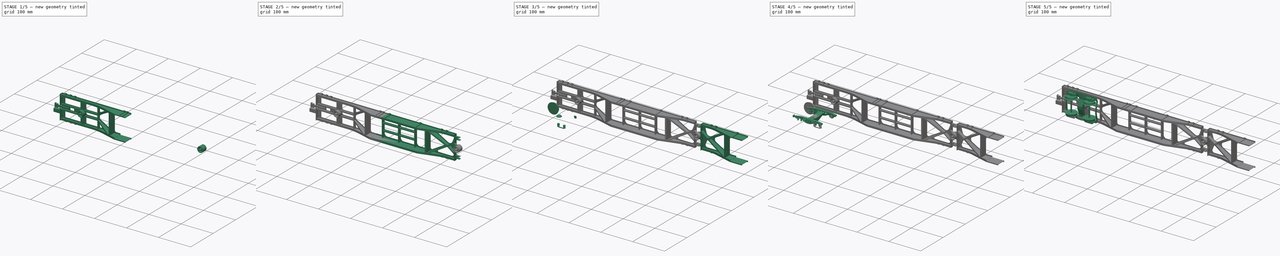
[diagram: build sequence overview — one tinted view per stage of 5, left to right]
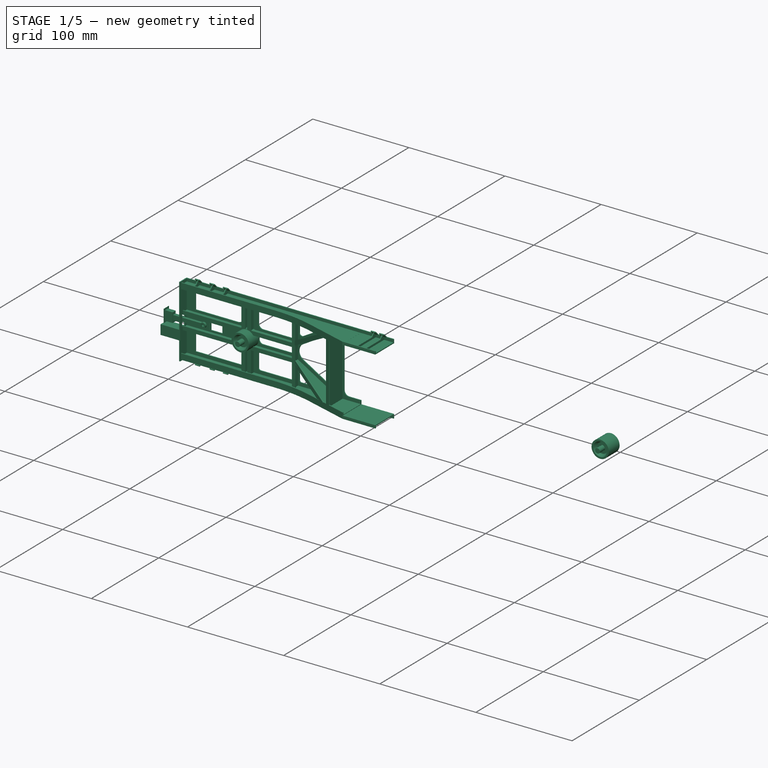
[diagram: stage 1 of 5 — iso view after this stage's code; geometry added in this stage tinted green]
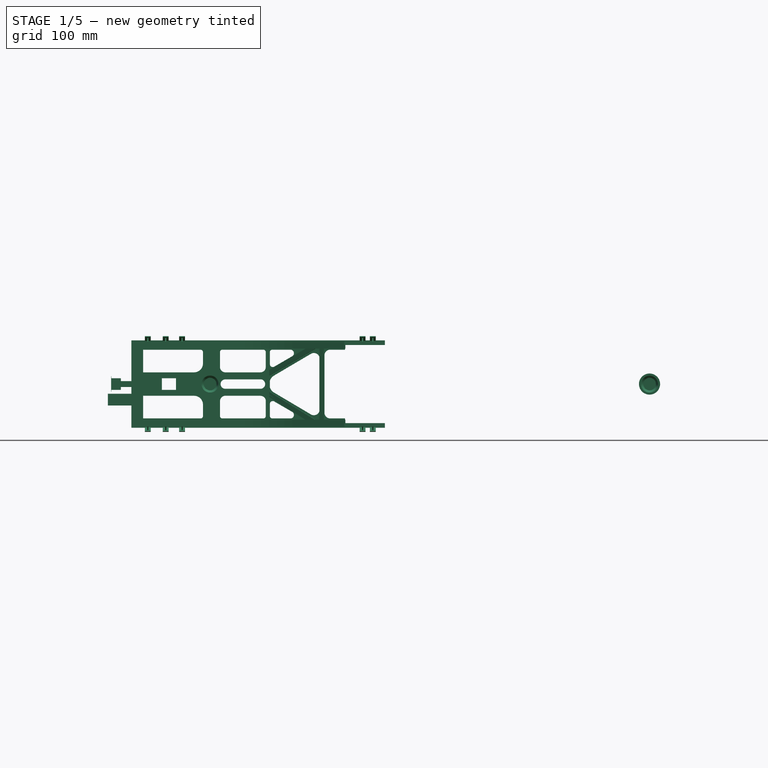
[diagram: stage 1 of 5 — front view after this stage's code; geometry added in this stage tinted green]
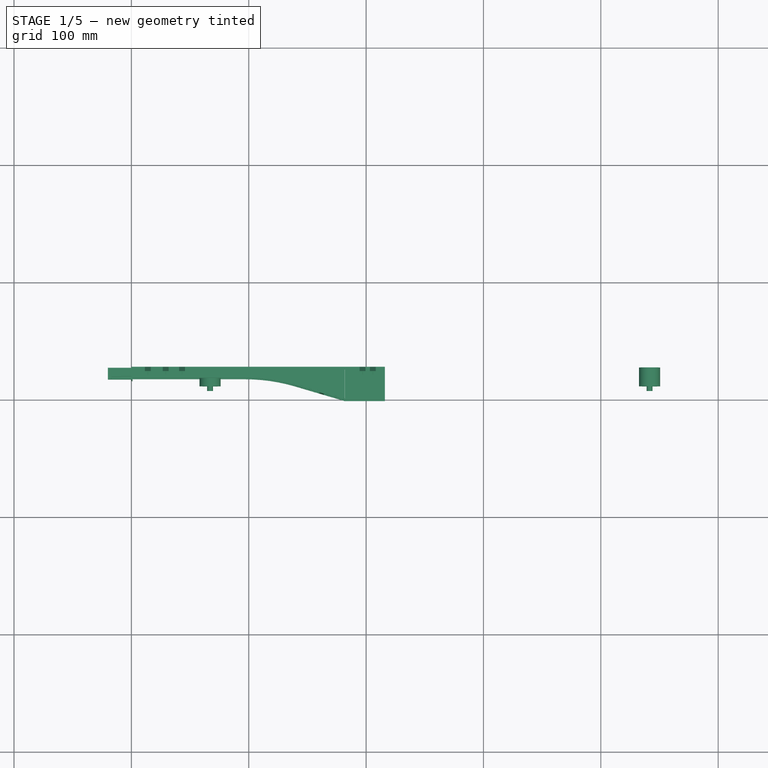
[diagram: stage 1 of 5 — top view after this stage's code; geometry added in this stage tinted green]
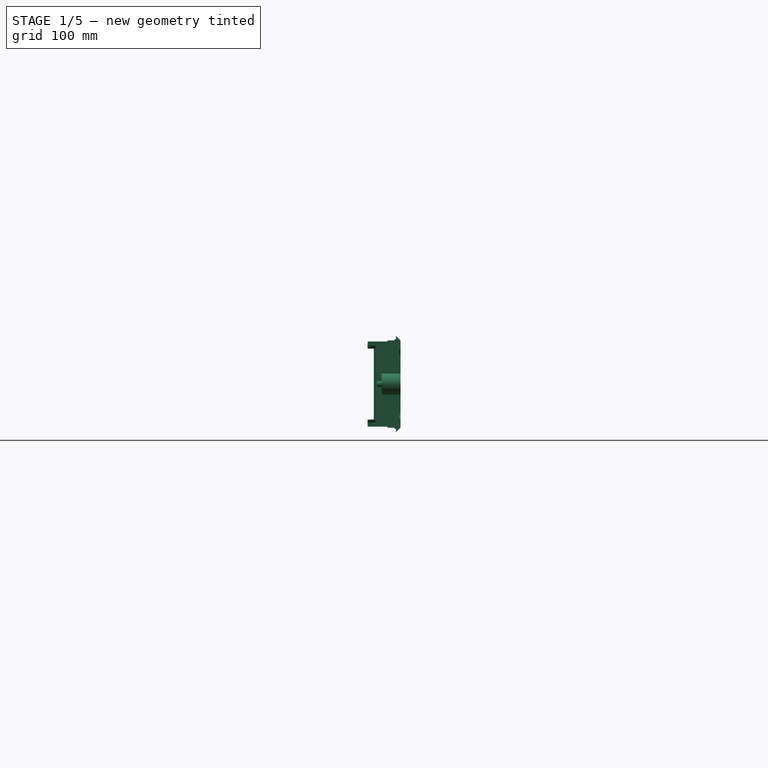
[diagram: stage 1 of 5 — right view after this stage's code; geometry added in this stage tinted green]
FCSTD DOCUMENT  (FreeCAD 0.21R33771 (Git))
Label: CTW-SGGMRS-90-V3
License: All rights reserved
LicenseURL: http://en.wikipedia.org/wiki/All_rights_reserved
objects: Part::Box×183, Part::Extrusion×140, Part::MultiFuse×88, Part::Cylinder×69, Part::Cut×54, Sketcher::SketchObject×49, Part::Fillet×18, Part::Revolution×9, Part::Helix×8, Part::Sweep×8, Spreadsheet::Sheet×1, Part::FeaturePython×1
note: 627 computed .brp shape members not serialized (recipe doc carries the construction recipe); baked Part::Feature solids carry a one-line shape summary decoded from their .brp

FEATURE [Part::Box] Box005  label="Würfel004"
  AttacherType = Attacher::AttachEngine3D
  Height = 4
  Length = 182
  Placement = pos=(0,26,0) rot=(0,0,1;0rad)
  Width = 1
FEATURE [Part::Box] Box026  label="Cube015"
  AttacherType = Attacher::AttachEngine3D
  Height = 74.5
  Length = 1
  Placement = pos=(-1,16,-4) rot=(0,0,1;0rad)
  Width = 11
FEATURE [Part::Box] Box031  label="Cube018"
  AttacherType = Attacher::AttachEngine3D
  Height = 3
  Length = 47.5
  Placement = pos=(136.52,12.3412,0) rot=(0,0,-1;0.286234rad)
  Width = 1
FEATURE [Sketcher::SketchObject] Sketch010
  FullyConstrained = false
  sketch-geometry (6):
    g0: LineSegment StartX=139.042 StartY=12.6947 StartZ=0 EndX=181.945 EndY=0.0687241 EndZ=0
    g1: LineSegment StartX=181.945 StartY=0.0687241 StartZ=0 EndX=181.945 EndY=26.0687 EndZ=0
    g2: LineSegment StartX=-0.0548931 StartY=26.0687 StartZ=0 EndX=-0.0548931 EndY=18.5687 EndZ=0
    g3: LineSegment StartX=-0.0548931 StartY=18.5687 StartZ=0 EndX=95.4451 EndY=18.5687 EndZ=0
    g4: ArcOfCircle CenterX=98.1058 CenterY=-126.407 CenterZ=0 NormalX=0 NormalY=0 NormalZ=1 AngleXU=0 Radius=145 StartAngle=1.28459 EndAngle=1.58915
    g5: LineSegment StartX=181.945 StartY=26.0687 StartZ=0 EndX=-0.0548931 EndY=26.0687 EndZ=0
  constraints (16):
    c: Vertical(g1)
    c: Vertical(g2)
    c: Coincident(g2,g3)
    c: Horizontal(g3)
    c: Coincident(g4,g3)
    c: DistanceY(g2,g2) = 7.5
    c: DistanceX(g2,g1) = 182
    c: DistanceY(g1,g1) = 26
    c: DistanceX(g2,g3) = 95.5
    c: Tangent(g4,g0) = 1.5708
    c: Radius(g4) = 145
    c: Angle(g4) = 0.30456
    c: Coincident(g1,g0)
    c: Coincident(g5,g1)
    c: Coincident(g5,g2)
    c: Horizontal(g5)
FEATURE [Part::Box] Box039  label="Cube023"
  AttacherType = Attacher::AttachEngine3D
  Height = 3
  Length = 97
  Placement = pos=(0,17.6,0) rot=(0,0,1;0rad)
  Width = 1
FEATURE [Part::Box] Box047  label="Cube029"
  AttacherType = Attacher::AttachEngine3D
  Height = 58.5
  Length = 1
  Placement = pos=(0,27,4) rot=(0,0,-1;1.5708rad)
  Width = 10
FEATURE [Spreadsheet::Sheet] Spreadsheet
  cells = A1='Containermaße; B1=32; A2='Höhe; B2=2591; C2(height)==B2 / B1; A3='Länge_20; B3=6058; C3(length20)==B3 / B1; A4='Breite; B4=2438; C4(width)==B4 / B1; A7='Länge_40; B7=12192; C7(length40)==B7 / B1
FEATURE [Sketcher::SketchObject] Sketch011
  FullyConstrained = false
  Placement = pos=(0,27,0) rot=(1,0,0;1.5708rad)
  sketch-geometry (56):
    g0: LineSegment StartX=53.5 StartY=43.25 StartZ=0 EndX=10 EndY=43.25 EndZ=0
    g1: LineSegment StartX=10 StartY=43.25 StartZ=0 EndX=10 EndY=23.25 EndZ=0
    g2: LineSegment StartX=10 StartY=23.25 StartZ=0 EndX=53.5 EndY=23.25 EndZ=0
    g3: LineSegment StartX=38 StartY=38.25 StartZ=0 EndX=26 EndY=38.25 EndZ=0
    g4: LineSegment StartX=26 StartY=38.25 StartZ=0 EndX=26 EndY=28.25 EndZ=0
    g5: LineSegment StartX=26 StartY=28.25 StartZ=0 EndX=38 EndY=28.25 EndZ=0
    g6: LineSegment StartX=38 StartY=28.25 StartZ=0 EndX=38 EndY=38.25 EndZ=0
    g7: LineSegment StartX=110 StartY=43.25 StartZ=0 EndX=80 EndY=43.25 EndZ=0
    g8: LineSegment StartX=80 StartY=37.25 StartZ=0 EndX=110 EndY=37.25 EndZ=0
    g9: ArcOfCircle CenterX=80 CenterY=33.25 CenterZ=0 NormalX=0 NormalY=0 NormalZ=1 AngleXU=0 Radius=4 StartAngle=1.5708 EndAngle=4.71239
    g10: LineSegment StartX=80 StartY=29.25 StartZ=0 EndX=110 EndY=29.25 EndZ=0
    g11: LineSegment StartX=110 StartY=23.25 StartZ=0 EndX=80 EndY=23.25 EndZ=0
    g12: ArcOfCircle CenterX=110 CenterY=33.25 CenterZ=0 NormalX=0 NormalY=0 NormalZ=1 AngleXU=0 Radius=4 StartAngle=4.71239 EndAngle=7.85398
    g13: ArcOfCircle CenterX=53.5 CenterY=50.75 CenterZ=0 NormalX=0 NormalY=0 NormalZ=1 AngleXU=0 Radius=7.5 StartAngle=4.71239 EndAngle=6.28319
    g14: ArcOfCircle CenterX=53.5 CenterY=15.75 CenterZ=0 NormalX=0 NormalY=0 NormalZ=1 AngleXU=0 Radius=7.5 StartAngle=0 EndAngle=1.5708
    g15: ArcOfCircle CenterX=80 CenterY=47.75 CenterZ=0 NormalX=0 NormalY=0 NormalZ=1 AngleXU=0 Radius=4.5 StartAngle=3.14159 EndAngle=4.71239
    g16: ArcOfCircle CenterX=80 CenterY=18.75 CenterZ=0 NormalX=0 NormalY=0 NormalZ=1 AngleXU=0 Radius=4.5 StartAngle=1.5708 EndAngle=3.14159
    g17: ArcOfCircle CenterX=110 CenterY=47.75 CenterZ=0 NormalX=0 NormalY=0 NormalZ=1 AngleXU=0 Radius=4.5 StartAngle=4.71239 EndAngle=6.28319
    g18: ArcOfCircle CenterX=110 CenterY=18.75 CenterZ=0 NormalX=0 NormalY=0 NormalZ=1 AngleXU=0 Radius=4.5 StartAngle=0 EndAngle=1.5708
    g19: ArcOfCircle CenterX=59 CenterY=60.5 CenterZ=0 NormalX=0 NormalY=0 NormalZ=1 AngleXU=0 Radius=2 StartAngle=7.6002e-12 EndAngle=1.5708
    g20: LineSegment StartX=61 StartY=50.75 StartZ=0 EndX=61 EndY=60.5 EndZ=0
    g21: ArcOfCircle CenterX=77.5 CenterY=60.5 CenterZ=0 NormalX=0 NormalY=0 NormalZ=1 AngleXU=0 Radius=2 StartAngle=1.5708 EndAngle=3.14159
    g22: LineSegment StartX=75.5 StartY=47.75 StartZ=0 EndX=75.5 EndY=60.5 EndZ=0
    g23: LineSegment StartX=59 StartY=62.5 StartZ=0 EndX=77.5 EndY=62.5 EndZ=0
    g24: ArcOfCircle CenterX=59 CenterY=6 CenterZ=0 NormalX=0 NormalY=0 NormalZ=1 AngleXU=0 Radius=2 StartAngle=4.71239 EndAngle=6.28319
    g25: LineSegment StartX=61 StartY=15.75 StartZ=0 EndX=61 EndY=6 EndZ=0
    g26: ArcOfCircle CenterX=77.5 CenterY=6 CenterZ=0 NormalX=0 NormalY=0 NormalZ=1 AngleXU=0 Radius=2 StartAngle=3.14159 EndAngle=4.71239
    g27: LineSegment StartX=75.5 StartY=18.75 StartZ=0 EndX=75.5 EndY=6 EndZ=0
    g28: LineSegment StartX=59 StartY=4 StartZ=0 EndX=77.5 EndY=4 EndZ=0
    g29: ArcOfCircle CenterX=112.5 CenterY=60.5 CenterZ=0 NormalX=0 NormalY=0 NormalZ=1 AngleXU=0 Radius=2 StartAngle=3.43405e-08 EndAngle=1.5708
    g30: LineSegment StartX=114.5 StartY=47.75 StartZ=0 EndX=114.5 EndY=60.5 EndZ=0
    g31: ArcOfCircle CenterX=112.5 CenterY=6 CenterZ=0 NormalX=0 NormalY=0 NormalZ=1 AngleXU=0 Radius=2 StartAngle=4.71239 EndAngle=6.28319
    g32: LineSegment StartX=114.5 StartY=18.75 StartZ=0 EndX=114.5 EndY=6 EndZ=0
    g33: LineSegment StartX=121.801 StartY=18.3846 StartZ=0 EndX=137.031 EndY=9.52969 EndZ=0
    g34: ArcOfCircle CenterX=120 CenterY=6 CenterZ=0 NormalX=0 NormalY=0 NormalZ=1 AngleXU=0 Radius=2 StartAngle=3.14159 EndAngle=4.71239
    g35: ArcOfCircle CenterX=120.5 CenterY=16.25 CenterZ=0 NormalX=0 NormalY=0 NormalZ=1 AngleXU=0 Radius=2.5 StartAngle=1.02329 EndAngle=3.14159
    g36: LineSegment StartX=118 StartY=16.25 StartZ=0 EndX=118 EndY=6 EndZ=0
    g37: ArcOfCircle CenterX=126 CenterY=33.25 CenterZ=0 NormalX=0 NormalY=0 NormalZ=1 AngleXU=0 Radius=8.5 StartAngle=2.10821 EndAngle=4.17498
    g38: LineSegment StartX=112.5 StartY=4 StartZ=0 EndX=120 EndY=4 EndZ=0
    g39: ArcOfCircle CenterX=120.5 CenterY=50.25 CenterZ=0 NormalX=0 NormalY=0 NormalZ=1 AngleXU=0 Radius=2.5 StartAngle=3.14159 EndAngle=5.26007
    g40: ArcOfCircle CenterX=120 CenterY=60.5 CenterZ=0 NormalX=0 NormalY=0 NormalZ=1 AngleXU=0 Radius=2 StartAngle=1.5708 EndAngle=3.14159
    g41: LineSegment StartX=118 StartY=50.25 StartZ=0 EndX=118 EndY=60.5 EndZ=0
    g42: LineSegment StartX=112.5 StartY=62.5 StartZ=0 EndX=120 EndY=62.5 EndZ=0
    g43: LineSegment StartX=121.802 StartY=48.1157 StartZ=0 EndX=137.032 EndY=56.9705 EndZ=0
    g44: LineSegment StartX=160.496 StartY=54.5033 StartZ=0 EndX=160.498 EndY=11.8472 EndZ=0
    g45: LineSegment StartX=121.649 StartY=40.5518 StartZ=0 EndX=153.328 EndY=59.2135 EndZ=0
    g46: LineSegment StartX=121.649 StartY=25.9482 StartZ=0 EndX=153.1 EndY=7.32373 EndZ=0
    g47: ArcOfCircle CenterX=169.5 CenterY=8.97801 CenterZ=0 NormalX=0 NormalY=0 NormalZ=1 AngleXU=0 Radius=5 StartAngle=3.14159 EndAngle=4.71239
    g48: LineSegment StartX=164.5 StartY=57.5361 StartZ=0 EndX=164.5 EndY=8.97801 EndZ=0
    g49: LineSegment StartX=135.909 StartY=3.97801 StartZ=0 EndX=169.5 EndY=3.97801 EndZ=0
    g50: ArcOfCircle CenterX=169.5 CenterY=57.5361 CenterZ=0 NormalX=0 NormalY=0 NormalZ=1 AngleXU=0 Radius=5 StartAngle=1.5708 EndAngle=3.14159
    g51: ArcOfCircle CenterX=155.5 CenterY=54.71 CenterZ=0 NormalX=0 NormalY=0 NormalZ=1 AngleXU=0 Radius=5 StartAngle=6.24183 EndAngle=8.30341
    g52: ArcOfCircle CenterX=155.5 CenterY=11.71 CenterZ=0 NormalX=0 NormalY=0 NormalZ=1 AngleXU=0 Radius=5 StartAngle=4.2117 EndAngle=6.31064
    g53: ArcOfCircle CenterX=135.5 CenterY=6.95 CenterZ=0 NormalX=0 NormalY=0 NormalZ=1 AngleXU=0 Radius=3 StartAngle=4.84913 EndAngle=7.31825
    g54: ArcOfCircle CenterX=135.5 CenterY=59.55 CenterZ=0 NormalX=0 NormalY=0 NormalZ=1 AngleXU=0 Radius=3 StartAngle=5.24826 EndAngle=7.75752
    g55: LineSegment StartX=135.789 StartY=62.5361 StartZ=0 EndX=169.5 EndY=62.5361 EndZ=0
  constraints (186):
    c: DistanceY(g1,g0) = 20
    c: DistanceY(g14,g1) = 7.5
    c: Vertical(g14,g13)
    c: Radius(g14) = 7.5
    c: Equal(g14,g13)
    c: Coincident(g0,g1)
    c: Coincident(g1,g2)
    c: DistanceX(g4,g5) = 12
    c: DistanceX(g1,g4) = 16
    c: Coincident(g4,g5)
    c: Vertical(g4)
    c: Vertical(g1)
    c: Horizontal(g2)
    c: Horizontal(g0)
    c: DistanceY(g4,g4) = 10
    c: Coincident(g4,g3)
    c: Horizontal(g5)
    c: Coincident(g5,g6)
    c: DistanceY(g1,g4) = 5
    c: Coincident(g13,g0)
    c: Radius(g24) = 2
    c: Vertical(g24,g19)
    c: Coincident(g6,g3)
    c: Horizontal(g3)
    c: Coincident(g2,g14)
    c: Coincident(g25,g14)
    c: Horizontal(g14,g14)
    c: Vertical(g25)
    c: Coincident(g25,g24)
    c: Coincident(g24,g28)
    c: DistanceX(g1,g14) = 43.5
    c: DistanceX(g-1,g1) = 10
    c: DistanceY(g-1,g1) = 23.25
    c: DistanceY(g24,g14) = 9.75
    c: Vertical(g6)
    c: Vertical(g26,g26)
    c: Coincident(g28,g26)
    c: Coincident(g27,g26)
    c: Horizontal(g26,g26)
    c: Radius(g26) = 2
    c: Horizontal(g28)
    c: Horizontal(g13,g13)
    c: DistanceY(g13,g19) = 9.75
    c: Coincident(g13,g20)
    c: Coincident(g19,g20)
    c: Vertical(g20)
    c: Vertical(g19,g19)
    c: Coincident(g19,g23)
    c: Radius(g16) = 4.5
    c: Equal(g16,g15)
    c: Radius(g9) = 4
    c: Vertical(g9,g15)
    c: Vertical(g15,g16)
    c: DistanceX(g1,g9) = 70
    c: Vertical(g9,g9)
    c: Vertical(g9,g8)
    c: Horizontal(g16,g27)
    c: Vertical(g16,g11)
    c: Coincident(g16,g11)
    c: DistanceY(g1,g9) = 10
    c: Coincident(g9,g10)
    c: Coincident(g9,g8)
    c: Coincident(g12,g10)
    c: Coincident(g12,g8)
    c: DistanceX(g9,g12) = 30
    c: Horizontal(g9,g12)
    c: Vertical(g12,g8)
    c: Vertical(g8,g10)
    c: Equal(g9,g12)
    c: Horizontal(g15,g15)
    c: DistanceY(g14,g16) = 3
    c: Horizontal(g24,g26)
    c: Vertical(g27)
    c: Coincident(g16,g27)
    c: Coincident(g18,g11)
    c: Coincident(g18,g32)
    c: Coincident(g31,g32)
    c: DistanceY(g9,g15) = 14.5
    c: Coincident(g15,g7)
    c: Coincident(g15,g22)
    c: Coincident(g22,g21)
    c: Coincident(g21,g23)
    c: Horizontal(g21,g21)
    c: Vertical(g21,g21)
    c: Horizontal(g23)
    c: Vertical(g26,g21)
    c: Radius(g21) = 2
    c: Horizontal(g16,g18)
    c: Horizontal(g15,g17)
    c: Radius(g18) = 4.5
    c: Vertical(g18,g11)
    c: Horizontal(g18,g18)
    c: Equal(g18,g17)
    c: Coincident(g17,g7)
    c: Coincident(g17,g30)
    c: Vertical(g12,g18)
    c: Vertical(g12,g17)
    c: Coincident(g31,g38)
    c: Coincident(g29,g30)
    c: Coincident(g29,g42)
    c: Coincident(g40,g42)
    c: Coincident(g40,g41)
    c: Vertical(g30)
    c: Coincident(g39,g41)
    c: Vertical(g41)
    c: Horizontal(g42)
    c: Horizontal(g17,g17)
    c: Radius(g29) = 2
    c: Radius(g40) = 2
    c: Radius(g31) = 2
    c: Radius(g34) = 2
    c: Coincident(g34,g36)
    c: Coincident(g34,g38)
    c: Horizontal(g38)
    c: Vertical(g32)
    c: Vertical(g31,g31)
    c: Vertical(g34,g34)
    c: Horizontal(g34,g34)
    c: Horizontal(g31,g31)
    c: DistanceY(g31,g18) = 14.75
    c: Vertical(g31,g29)
    c: Vertical(g34,g40)
    c: Horizontal(g40,g40)
    c: Vertical(g29,g29)
    c: Vertical(g40,g40)
    c: DistanceY(g17,g29) = 12.75
    c: Vertical(g15,g7)
    c: Horizontal(g7)
    c: DistanceX(g29,g40) = 7.5
    c: Vertical(g36)
    c: Coincident(g36,g35)
    c: Radius(g35) = 2.5
    c: Radius(g39) = 2.5
    c: DistanceY(g35,g12) = 17
    c: DistanceX(g18,g35) = 10.5
    c: Coincident(g35,g33)
    c: Coincident(g53,g33)
    c: DistanceY(g12,g39) = 17
    c: DistanceX(g17,g39) = 10.5
    c: Coincident(g39,g43)
    c: Coincident(g54,g43)
    c: Radius(g37) = 8.5
    c: Coincident(g37,g45)
    c: Coincident(g51,g45)
    c: Horizontal(g55)
    c: Coincident(g55,g54)
    c: Radius(g54) = 3
    c: Coincident(g37,g46)
    c: Radius(g53) = 3
    c: Vertical(g53,g54)
    c: DistanceX(g35,g53) = 15
    c: DistanceY(g53,g35) = 9.3
    c: Coincident(g53,g49)
    c: Horizontal(g49)
    c: Angle(g35) = 2.11831
    c: Angle(g53) = 2.46912
    c: DistanceX(g33,g33) = 15.23
    c: Angle(g39) = 2.11848
    c: Angle(g54) = 2.50926
    c: DistanceX(g39,g43) = 15.23
    c: DistanceY(g39,g54) = 9.3
    c: Radius(g50) = 5
    c: Radius(g47) = 5
    c: Coincident(g52,g46)
    c: Coincident(g52,g44)
    c: Coincident(g47,g48)
    c: Horizontal(g47,g47)
    c: Coincident(g47,g49)
    c: Vertical(g47,g47)
    c: Coincident(g51,g44)
    c: Coincident(g50,g48)
    c: Coincident(g55,g50)
    c: Horizontal(g50,g48)
    c: Vertical(g50,g50)
    c: Vertical(g50,g47)
    c: DistanceX(g37,g52) = 29.5
    c: Vertical(g52,g51)
    c: DistanceY(g52,g51) = 43
    c: Horizontal(g12,g37)
    c: DistanceX(g12,g37) = 16
    c: Equal(g51,g52)
    c: Radius(g51) = 5
    c: DistanceY(g52,g37) = 21.54
    c: Angle(g51) = 2.06158
    c: Angle(g52) = 2.09893
    c: DistanceX(g52,g47) = 14
FEATURE [Part::Box] Box072  label="Cube055"
  AttacherType = Attacher::AttachEngine3D
  Height = 1
  Length = 116
  Placement = pos=(0,21,40) rot=(0,0,1;0rad)
  Width = 5.5
FEATURE [Part::Box] Box073  label="Cube056"
  AttacherType = Attacher::AttachEngine3D
  Height = 25
  Length = 1
  Placement = pos=(63.5,21,0) rot=(0,0,1;0rad)
  Width = 5.5
FEATURE [Part::Box] Box074  label="Cube057"
  AttacherType = Attacher::AttachEngine3D
  Height = 25
  Length = 1
  Placement = pos=(69.5,21,0) rot=(0,0,1;0rad)
  Width = 5.5
FEATURE [Part::Box] Box075  label="Cube058"
  AttacherType = Attacher::AttachEngine3D
  Height = 25
  Length = 1
  Placement = pos=(63.5,21,41.5) rot=(0,0,1;0rad)
  Width = 5.5
FEATURE [Part::Box] Box076  label="Cube059"
  AttacherType = Attacher::AttachEngine3D
  Height = 25
  Length = 1
  Placement = pos=(69.5,21,41.5) rot=(0,0,1;0rad)
  Width = 5.5
FEATURE [Part::Box] Box077  label="Cube060"
  AttacherType = Attacher::AttachEngine3D
  Height = 66.5
  Length = 1
  Placement = pos=(115.7,21,0) rot=(0,0,1;0rad)
  Width = 5.5
FEATURE [Part::Box] Box078  label="Cube061"
  AttacherType = Attacher::AttachEngine3D
  Height = 11
  Length = 1
  Placement = pos=(-1,19,27.75) rot=(0,0,1;0rad)
  Width = 4.5
FEATURE [Part::Box] Box079  label="Cube062"
  AttacherType = Attacher::AttachEngine3D
  Height = 1
  Length = 114.5
  Placement = pos=(0,21,24) rot=(1,0,0;1.5708rad)
  Width = 4
FEATURE [Part::Box] Box080  label="Cube063"
  AttacherType = Attacher::AttachEngine3D
  Height = 1
  Length = 114.5
  Placement = pos=(0,21,38.5) rot=(1,0,0;1.5708rad)
  Width = 4
FEATURE [Part::Box] Box081  label="Cube064"
  AttacherType = Attacher::AttachEngine3D
  Height = 66.5
  Length = 1
  Placement = pos=(118,20,0) rot=(0,0,1;1.5708rad)
  Width = 3.5
FEATURE [Part::Box] Box082  label="Cube065"
  AttacherType = Attacher::AttachEngine3D
  Height = 66.5
  Length = 1
  Placement = pos=(72,20,0) rot=(0,0,1;1.5708rad)
  Width = 4
FEATURE [Part::Box] Box083  label="Cube066"
  AttacherType = Attacher::AttachEngine3D
  Height = 66.5
  Length = 1
  Placement = pos=(66,20,0) rot=(0,0,1;1.5708rad)
  Width = 4
FEATURE [Part::Box] Box110  label="Cube089"
  AttacherType = Attacher::AttachEngine3D
  Height = 5
  Length = 5
  Placement = pos=(11.5,26.2,69.9) rot=(1,0,0;0.785398rad)
  Width = 1
FEATURE [Sketcher::SketchObject] Sketch047
  FullyConstrained = false
  sketch-geometry (6):
    g0: LineSegment StartX=377.228 StartY=14.0476 StartZ=0 EndX=328 EndY=0.0333624 EndZ=0
    g1: LineSegment StartX=432 StartY=26.0334 StartZ=0 EndX=432 EndY=18.5334 EndZ=0
    g2: LineSegment StartX=432 StartY=18.5334 StartZ=0 EndX=409.354 EndY=18.5334 EndZ=0
    g3: LineSegment StartX=328 StartY=26.0334 StartZ=0 EndX=432 EndY=26.0334 EndZ=0
    g4: LineSegment StartX=328 StartY=26.0334 StartZ=0 EndX=328 EndY=0.0333624 EndZ=0
    g5: ArcOfCircle CenterX=404.83 CenterY=-66.3461 CenterZ=0 NormalX=0 NormalY=0 NormalZ=1 AngleXU=0 Radius=85 StartAngle=1.51754 EndAngle=1.90152
  constraints (15):
    c: Horizontal(g3)
    c: Coincident(g3,g1)
    c: Vertical(g1)
    c: Coincident(g1,g2)
    c: Horizontal(g2)
    c: Coincident(g4,g3)
    c: Vertical(g4)
    c: DistanceY(g4,g3) = 26
    c: DistanceY(g1,g1) = 7.5
    c: Coincident(g5,g2)
    c: Coincident(g5,g0)
    c: Radius(g5) = 85
    c: Angle(g5) = 0.383972
    c: Coincident(g0,g4)
    c: DistanceX(g3,g1) = 104
FEATURE [Part::Extrusion] Extrude101
  Base = -> Sketch010
  Dir = (0,0,1)
  DirMode = 2
  FaceMakerClass = Part::FaceMakerBullseye
  LengthFwd = 0.5
  LengthRev = 0
  Solid = true
  Symmetric = false
FEATURE [Part::Extrusion] Extrude103
  Base = -> Sketch010
  Dir = (0,0,1)
  DirMode = 2
  FaceMakerClass = Part::FaceMakerBullseye
  LengthFwd = 1
  LengthRev = 0
  Placement = pos=(0,0,-1) rot=(0,0,1;0rad)
  Solid = true
  Symmetric = false
FEATURE [Part::Box] Box130  label="Cube109"
  AttacherType = Attacher::AttachEngine3D
  Height = 1
  Length = 34
  Placement = pos=(182,0,-1) rot=(0,0,1;0rad)
  Width = 26
FEATURE [Part::Cut] Cut  label="Endbohle"
  Base = -> Box026
  Placement = pos=(1,0,0) rot=(0,0,1;0rad)
  Tool = -> Box078
FEATURE [Sketcher::SketchObject] Sketch
  FullyConstrained = false
  sketch-geometry (4):
    g0: ArcOfCircle CenterX=96.9944 CenterY=-132.484 CenterZ=0 NormalX=0 NormalY=0 NormalZ=1 AngleXU=0 Radius=151.2 StartAngle=1.30027 EndAngle=1.5708
    g1: ArcOfCircle CenterX=96.9944 CenterY=-132.484 CenterZ=0 NormalX=0 NormalY=0 NormalZ=1 AngleXU=0 Radius=150.1 StartAngle=1.30027 EndAngle=1.5708
    g2: LineSegment StartX=137.107 StartY=12.1565 StartZ=0 EndX=137.401 EndY=13.2164 EndZ=0
    g3: LineSegment StartX=96.9944 StartY=18.7155 StartZ=0 EndX=96.9944 EndY=17.6155 EndZ=0
  constraints (11):
    c: Radius(g0) = 151.2
    c: Angle(g0) = 0.270526
    c: Radius(g1) = 150.1
    c: Angle(g1) = 0.270526
    c: Vertical(g0,g0)
    c: Coincident(g2,g1)
    c: Coincident(g2,g0)
    c: Coincident(g3,g0)
    c: Coincident(g3,g1)
    c: Vertical(g3)
    c: Coincident(g1,g0)
FEATURE [Part::Extrusion] Extrude
  Base = -> Sketch
  Dir = (0,0,1)
  DirMode = 2
  FaceMakerClass = Part::FaceMakerBullseye
  LengthFwd = 3
  LengthRev = 0
  Solid = true
  Symmetric = false
FEATURE [Part::Extrusion] Extrude105
  Base = -> Sketch
  Dir = (0,0,1)
  DirMode = 2
  FaceMakerClass = Part::FaceMakerBullseye
  LengthFwd = 3
  LengthRev = 0
  Placement = pos=(0,0,-3) rot=(0,0,1;0rad)
  Solid = true
  Symmetric = false
FEATURE [Part::Box] Box132  label="Cube111"
  AttacherType = Attacher::AttachEngine3D
  Height = 3
  Length = 46.5
  Placement = pos=(137,12.2,-3) rot=(0,0,-1;0.286234rad)
  Width = 1
FEATURE [Part::Box] Box133  label="Cube112"
  AttacherType = Attacher::AttachEngine3D
  Height = 3
  Length = 97
  Placement = pos=(0,17.6,-3) rot=(0,0,1;0rad)
  Width = 1
FEATURE [Part::Box] Box134  label="Cube113"
  AttacherType = Attacher::AttachEngine3D
  Height = 3
  Length = 97
  Placement = pos=(0,17.6,63.5) rot=(0,0,1;0rad)
  Width = 1
FEATURE [Part::Extrusion] Extrude106
  Base = -> Sketch
  Dir = (0,0,1)
  DirMode = 2
  FaceMakerClass = Part::FaceMakerBullseye
  LengthFwd = 3
  LengthRev = 0
  Placement = pos=(0,0,63.5) rot=(0,0,1;0rad)
  Solid = true
  Symmetric = false
FEATURE [Part::Extrusion] Extrude107
  Base = -> Sketch
  Dir = (0,0,1)
  DirMode = 2
  FaceMakerClass = Part::FaceMakerBullseye
  LengthFwd = 3
  LengthRev = 0
  Placement = pos=(0,0,66.5) rot=(0,0,1;0rad)
  Solid = true
  Symmetric = false
FEATURE [Part::Box] Box135  label="Cube114"
  AttacherType = Attacher::AttachEngine3D
  Height = 3
  Length = 97
  Placement = pos=(0,17.6,66.5) rot=(0,0,1;0rad)
  Width = 1
FEATURE [Part::Box] Box136  label="Cube115"
  AttacherType = Attacher::AttachEngine3D
  Height = 3
  Length = 47.5
  Placement = pos=(136.52,12.3412,63.5) rot=(0,0,-1;0.286234rad)
  Width = 1
FEATURE [Part::Box] Box137  label="Cube116"
  AttacherType = Attacher::AttachEngine3D
  Height = 3
  Length = 46.5
  Placement = pos=(137,12.2,66.5) rot=(0,0,-1;0.286234rad)
  Width = 1
FEATURE [Part::Extrusion] Extrude108
  Base = -> Sketch010
  Dir = (0,0,1)
  DirMode = 2
  FaceMakerClass = Part::FaceMakerBullseye
  LengthFwd = 0.5
  LengthRev = 0
  Placement = pos=(0,0,66) rot=(0,0,1;0rad)
  Solid = true
  Symmetric = false
FEATURE [Part::Extrusion] Extrude109
  Base = -> Sketch010
  Dir = (0,0,1)
  DirMode = 2
  FaceMakerClass = Part::FaceMakerBullseye
  LengthFwd = 1
  LengthRev = 0
  Placement = pos=(0,0,60.5) rot=(0,0,1;0rad)
  Solid = true
  Symmetric = false
FEATURE [Part::Box] Box138  label="Würfel019"
  AttacherType = Attacher::AttachEngine3D
  Height = 4
  Length = 182
  Placement = pos=(0,26,62.5) rot=(0,0,1;0rad)
  Width = 1
FEATURE [Part::Box] Box139  label="Würfel020"
  AttacherType = Attacher::AttachEngine3D
  Height = 4
  Length = 216
  Placement = pos=(0,26,66.5) rot=(0,0,1;0rad)
  Width = 1
FEATURE [Part::Box] Box140  label="Cube117"
  AttacherType = Attacher::AttachEngine3D
  Height = 1
  Length = 34
  Placement = pos=(182,0,60.5) rot=(0,0,1;0rad)
  Width = 26
FEATURE [Part::MultiFuse] Fusion103
  Placement = pos=(0,0,6) rot=(0,0,1;0rad)
  Shapes = -> [Extrude109,Box140]
FEATURE [Part::Extrusion] Extrude110
  Base = -> Sketch011
  Dir = (0,-1,2e-16)
  DirMode = 2
  FaceMakerClass = Part::FaceMakerBullseye
  LengthFwd = 1
  LengthRev = 0
  Solid = true
  Symmetric = false
FEATURE [Part::Extrusion] Extrude111
  Base = -> Sketch042
  Dir = (0,0,1)
  DirMode = 2
  FaceMakerClass = Part::FaceMakerBullseye
  LengthFwd = 1
  LengthRev = 0
  Placement = pos=(18.5,12,82) rot=(0,1,0;0.532325rad)
  Solid = true
  Symmetric = false
FEATURE [Part::Extrusion] Extrude113
  Base = -> Sketch043
  Dir = (0,-1,2e-16)
  DirMode = 2
  FaceMakerClass = Part::FaceMakerBullseye
  LengthFwd = 1
  LengthRev = 0
  Placement = pos=(3.4,61.5,2.5) rot=(0,0,-1;0.340339rad)
  Solid = true
  Symmetric = false
FEATURE [Part::Extrusion] Extrude114
  Base = -> Sketch042
  Dir = (0,0,1)
  DirMode = 2
  FaceMakerClass = Part::FaceMakerBullseye
  LengthFwd = 1
  LengthRev = 0
  Placement = pos=(19,12,-15) rot=(0,-1,0;0.523599rad)
  Solid = true
  Symmetric = false
FEATURE [Sketcher::SketchObject] Sketch048
  FullyConstrained = false
  Placement = pos=(0,0,0) rot=(1,0,0;1.5708rad)
  sketch-geometry (4):
    g0: LineSegment StartX=117.994 StartY=45.1021 StartZ=0 EndX=117.994 EndY=40.3734 EndZ=0
    g1: LineSegment StartX=117.994 StartY=40.3734 StartZ=0 EndX=162.045 EndY=65.9988 EndZ=0
    g2: LineSegment StartX=162.045 StartY=65.9988 StartZ=0 EndX=153.722 EndY=65.9988 EndZ=0
    g3: LineSegment StartX=153.722 StartY=65.9988 StartZ=0 EndX=117.994 EndY=45.1021 EndZ=0
  constraints (6):
    c: Vertical(g0)
    c: Coincident(g0,g1)
    c: Coincident(g1,g2)
    c: Coincident(g2,g3)
    c: Coincident(g0,g3)
    c: Horizontal(g2)
FEATURE [Part::Extrusion] Extrude115
  Base = -> Sketch048
  Dir = (0,-1,2e-16)
  DirMode = 2
  FaceMakerClass = Part::FaceMakerBullseye
  LengthFwd = 1
  LengthRev = 0
  Placement = pos=(2.9,61.52,1.5) rot=(0.011173,0.070546,-0.997446;0.340339rad)
  Solid = true
  Symmetric = false
FEATURE [Part::MultiFuse] Fusion123
  Shapes = -> [Fusion103]
FEATURE [Part::Box] Box144  label="Cube121"
  AttacherType = Attacher::AttachEngine3D
  Height = 3
  Length = 34.5
  Placement = pos=(181.5,-1,66.5) rot=(0,0,1;0rad)
  Width = 1
FEATURE [Part::Box] Box145  label="Cube122"
  AttacherType = Attacher::AttachEngine3D
  Height = 3
  Length = 34.5
  Placement = pos=(181.5,-1,-3) rot=(0,0,1;0rad)
  Width = 1
FEATURE [Part::Box] Box146  label="Würfel021"
  AttacherType = Attacher::AttachEngine3D
  Height = 4
  Length = 216
  Placement = pos=(0,26,-4) rot=(0,0,1;0rad)
  Width = 1
FEATURE [Part::MultiFuse] Fusion127
  Shapes = -> [Box132,Box145,Extrude105,Box133]
FEATURE [Part::MultiFuse] Fusion102  label="Seite v r"
  Shapes = -> [Box130,Extrude103,Fusion127,Box146]
FEATURE [Sketcher::SketchObject] Sketch052
  FullyConstrained = false
  Placement = pos=(0,0,0) rot=(1,0,0;1.5708rad)
  sketch-geometry (4):
    g0: LineSegment StartX=357.768 StartY=65.0836 StartZ=0 EndX=350.015 EndY=65.0836 EndZ=0
    g1: LineSegment StartX=350.015 StartY=65.0836 StartZ=0 EndX=408.676 EndY=30.9183 EndZ=0
    g2: LineSegment StartX=408.676 StartY=30.9183 StartZ=0 EndX=410.793 EndY=35.1816 EndZ=0
    g3: LineSegment StartX=410.793 StartY=35.1816 StartZ=0 EndX=357.768 EndY=65.0836 EndZ=0
  constraints (5):
    c: Coincident(g0,g1)
    c: Coincident(g1,g2)
    c: Coincident(g2,g3)
    c: Coincident(g0,g3)
    c: Horizontal(g0)
FEATURE [Part::Box] Box157  label="Cube130"
  AttacherType = Attacher::AttachEngine3D
  Height = 66.5
  Length = 1
  Placement = pos=(162,5.5,0) rot=(0,0,1;0rad)
  Width = 20.5
FEATURE [Part::Box] Box158  label="Cube131"
  AttacherType = Attacher::AttachEngine3D
  Height = 60.5
  Length = 1
  Placement = pos=(164,4.2,3) rot=(0,0,1;1.27409rad)
  Width = 4
FEATURE [Part::Box] Box050  label="Cube030"
  AttacherType = Attacher::AttachEngine3D
  Height = 1
  Length = 116
  Placement = pos=(0,21,25.5) rot=(0,0,1;0rad)
  Width = 5.5
FEATURE [Part::MultiFuse] Fusion141
  Shapes = -> [Box157,Box158,Extrude111,Extrude113,Extrude114,Extrude115]
FEATURE [Part::MultiFuse] Fusion165
  Shapes = -> [Box138,Extrude108,Box136,Extrude106,Box134]
FEATURE [Part::MultiFuse] Fusion166
  Shapes = -> [Box005,Extrude101,Box031,Extrude,Box039]
FEATURE [Part::MultiFuse] Fusion168
  Shapes = -> [Box079,Box080,Box082,Box083,Box081,Box077,Box074,Box050,Box072,Box076,Box075,Box073]
FEATURE [Part::MultiFuse] Fusion169
  Shapes = -> [Fusion141]
FEATURE [Sketcher::SketchObject] Sketch059
  FullyConstrained = false
  Placement = pos=(0,0,0) rot=(0.57735,0.57735,0.57735;2.0944rad)
  sketch-geometry (6):
    g0: LineSegment StartX=26 StartY=70.4703 StartZ=0 EndX=23.741 EndY=72.7293 EndZ=0
    g1: LineSegment StartX=23.741 StartY=72.7293 StartZ=0 EndX=20.5282 EndY=69.5165 EndZ=0
    g2: LineSegment StartX=20.5282 StartY=69.5165 StartZ=0 EndX=0 EndY=69.5165 EndZ=0
    g3: LineSegment StartX=0 StartY=69.5165 StartZ=0 EndX=0 EndY=67.0165 EndZ=0
    g4: LineSegment StartX=0 StartY=67.0165 StartZ=0 EndX=26 EndY=67.0165 EndZ=0
    g5: LineSegment StartX=26 StartY=70.4703 StartZ=0 EndX=26 EndY=67.0165 EndZ=0
  constraints (15):
    c: Coincident(g0,g1)
    c: Coincident(g1,g2)
    c: PointOnObject(g2,g-2)
    c: Horizontal(g2)
    c: Coincident(g2,g3)
    c: Coincident(g3,g4)
    c: Horizontal(g4)
    c: Angle(g0) = 2.35619
    c: Angle(g1) = -2.35619
    c: Vertical(g3)
    c: DistanceX(g3,g4) = 26
    c: DistanceY(g3,g2) = 2.5
    c: Coincident(g5,g0)
    c: Coincident(g5,g4)
    c: Vertical(g5)
FEATURE [Part::Extrusion] Extrude151
  Base = -> Sketch059
  Dir = (1,0,0)
  DirMode = 2
  FaceMakerClass = Part::FaceMakerBullseye
  LengthFwd = 1
  LengthRev = 0
  Placement = pos=(13.5,0,0) rot=(0,0,1;0rad)
  Solid = true
  Symmetric = false
FEATURE [Part::Extrusion] Extrude152
  Base = -> Sketch059
  Dir = (1,0,0)
  DirMode = 2
  FaceMakerClass = Part::FaceMakerBullseye
  LengthFwd = 1
  LengthRev = 0
  Placement = pos=(28.7,0,0) rot=(0,0,1;0rad)
  Solid = true
  Symmetric = false
FEATURE [Part::Extrusion] Extrude153
  Base = -> Sketch059
  Dir = (1,0,0)
  DirMode = 2
  FaceMakerClass = Part::FaceMakerBullseye
  LengthFwd = 1
  LengthRev = 0
  Placement = pos=(42.7,0,0) rot=(0,0,1;0rad)
  Solid = true
  Symmetric = false
FEATURE [Part::Extrusion] Extrude154
  Base = -> Sketch059
  Dir = (1,0,0)
  DirMode = 2
  FaceMakerClass = Part::FaceMakerBullseye
  LengthFwd = 1
  LengthRev = 0
  Placement = pos=(196.5,0,0) rot=(0,0,1;0rad)
  Solid = true
  Symmetric = false
FEATURE [Part::Extrusion] Extrude155
  Base = -> Sketch059
  Dir = (1,0,0)
  DirMode = 2
  FaceMakerClass = Part::FaceMakerBullseye
  LengthFwd = 1
  LengthRev = 0
  Placement = pos=(205.25,0,0) rot=(0,0,1;0rad)
  Solid = true
  Symmetric = false
FEATURE [Part::Box] Box174  label="Cube145"
  AttacherType = Attacher::AttachEngine3D
  Height = 3
  Length = 1
  Placement = pos=(13.5,-0.5,67) rot=(0,0,1;0rad)
  Width = 19
FEATURE [Part::Box] Box175  label="Cube146"
  AttacherType = Attacher::AttachEngine3D
  Height = 3
  Length = 1
  Placement = pos=(28.7,-0.5,67) rot=(0,0,1;0rad)
  Width = 19
FEATURE [Part::Box] Box176  label="Cube147"
  AttacherType = Attacher::AttachEngine3D
  Height = 3
  Length = 1
  Placement = pos=(42.7,-0.5,67) rot=(0,0,1;0rad)
  Width = 19
FEATURE [Part::Cut] Cut008
  Base = -> Extrude151
  Tool = -> Box174
FEATURE [Part::Cut] Cut009
  Base = -> Extrude152
  Tool = -> Box175
FEATURE [Part::Cut] Cut010
  Base = -> Extrude153
  Tool = -> Box176
FEATURE [Part::Box] Box179  label="Cube150"
  AttacherType = Attacher::AttachEngine3D
  Height = 3
  Length = 1
  Placement = pos=(13.5,-0.5,67) rot=(0,0,1;0rad)
  Width = 19
FEATURE [Part::Extrusion] Extrude160
  Base = -> Sketch059
  Dir = (1,0,0)
  DirMode = 2
  FaceMakerClass = Part::FaceMakerBullseye
  LengthFwd = 1
  LengthRev = 0
  Placement = pos=(13.5,0,0) rot=(0,0,1;0rad)
  Solid = true
  Symmetric = false
FEATURE [Part::Cut] Cut013
  Base = -> Extrude160
  Placement = pos=(28,0,66.5) rot=(0,1,0;3.14159rad)
  Tool = -> Box179
FEATURE [Part::Box] Box180  label="Cube151"
  AttacherType = Attacher::AttachEngine3D
  Height = 3
  Length = 1
  Placement = pos=(42.7,-0.5,67) rot=(0,0,1;0rad)
  Width = 19
FEATURE [Part::Extrusion] Extrude161
  Base = -> Sketch059
  Dir = (1,0,0)
  DirMode = 2
  FaceMakerClass = Part::FaceMakerBullseye
  LengthFwd = 1
  LengthRev = 0
  Placement = pos=(42.7,0,0) rot=(0,0,1;0rad)
  Solid = true
  Symmetric = false
FEATURE [Part::Cut] Cut014
  Base = -> Extrude161
  Placement = pos=(86.5,0,66.5) rot=(0,1,0;3.14159rad)
  Tool = -> Box180
FEATURE [Part::Box] Box181  label="Cube152"
  AttacherType = Attacher::AttachEngine3D
  Height = 3
  Length = 1
  Placement = pos=(28.7,-0.5,67) rot=(0,0,1;0rad)
  Width = 19
FEATURE [Part::Extrusion] Extrude162
  Base = -> Sketch059
  Dir = (1,0,0)
  DirMode = 2
  FaceMakerClass = Part::FaceMakerBullseye
  LengthFwd = 1
  LengthRev = 0
  Placement = pos=(28.7,0,0) rot=(0,0,1;0rad)
  Solid = true
  Symmetric = false
FEATURE [Part::Cut] Cut015
  Base = -> Extrude162
  Placement = pos=(58.5,0,66.5) rot=(0,1,0;3.14159rad)
  Tool = -> Box181
FEATURE [Part::Extrusion] Extrude163
  Base = -> Sketch059
  Dir = (1,0,0)
  DirMode = 2
  FaceMakerClass = Part::FaceMakerBullseye
  LengthFwd = 1
  LengthRev = 0
  Placement = pos=(197.5,0,66.5) rot=(0,1,0;3.14159rad)
  Solid = true
  Symmetric = false
FEATURE [Part::Extrusion] Extrude164
  Base = -> Sketch059
  Dir = (1,0,0)
  DirMode = 2
  FaceMakerClass = Part::FaceMakerBullseye
  LengthFwd = 1
  LengthRev = 0
  Placement = pos=(206.25,0,66.5) rot=(0,1,0;3.14159rad)
  Solid = true
  Symmetric = false
FEATURE [Part::Box] Box184  label="Cube155"
  AttacherType = Attacher::AttachEngine3D
  Height = 5
  Length = 5
  Placement = pos=(26.7,26.2,69.9) rot=(1,0,0;0.785398rad)
  Width = 1
FEATURE [Part::Box] Box185  label="Cube156"
  AttacherType = Attacher::AttachEngine3D
  Height = 5
  Length = 5
  Placement = pos=(40.7,26.2,69.9) rot=(1,0,0;0.785398rad)
  Width = 1
FEATURE [Part::Box] Box186  label="Cube157"
  AttacherType = Attacher::AttachEngine3D
  Height = 5
  Length = 5
  Placement = pos=(194.5,26.2,69.9) rot=(1,0,0;0.785398rad)
  Width = 1
FEATURE [Part::Box] Box187  label="Cube158"
  AttacherType = Attacher::AttachEngine3D
  Height = 5
  Length = 5
  Placement = pos=(203.2,26.2,69.9) rot=(1,0,0;0.785398rad)
  Width = 1
FEATURE [Part::Box] Box195  label="Cube166"
  AttacherType = Attacher::AttachEngine3D
  Height = 5
  Length = 5
  Placement = pos=(203.2,27,-4) rot=(1,0,0;2.35619rad)
  Width = 1
FEATURE [Part::Box] Box196  label="Cube167"
  AttacherType = Attacher::AttachEngine3D
  Height = 5
  Length = 5
  Placement = pos=(194.5,27,-4) rot=(1,0,0;2.35619rad)
  Width = 1
FEATURE [Part::Box] Box197  label="Cube168"
  AttacherType = Attacher::AttachEngine3D
  Height = 5
  Length = 5
  Placement = pos=(40.7,27,-4) rot=(1,0,0;2.35619rad)
  Width = 1
FEATURE [Part::Box] Box198  label="Cube169"
  AttacherType = Attacher::AttachEngine3D
  Height = 5
  Length = 5
  Placement = pos=(26.7,27,-4) rot=(1,0,0;2.35619rad)
  Width = 1
FEATURE [Part::Box] Box199  label="Cube170"
  AttacherType = Attacher::AttachEngine3D
  Height = 5
  Length = 5
  Placement = pos=(11.5,27,-4) rot=(1,0,0;2.35619rad)
  Width = 1
FEATURE [Part::MultiFuse] Fusion171  label="VR"
  Shapes = -> [Fusion102,Extrude164,Box195,Extrude163,Box196,Cut014,Box197,Cut015,Box198,Cut013,Box199]
FEATURE [Part::MultiFuse] Fusion174  label="VL"
  Shapes = -> [Box139,Fusion123,Box144,Extrude107,Box135,Cut008,Box110,Cut009,Box184,Cut010,Box185,Extrude154,Box186,Extrude155,Box187,Box137]
FEATURE [Part::Cylinder] Cylinder117
  Angle = 360
  AttacherType = Attacher::AttachEngine3D
  FirstAngle = 0
  Height = 15
  Placement = pos=(67,11,33.25) rot=(-1,0,0;1.5708rad)
  Radius = 9
  SecondAngle = 0
FEATURE [Part::Cylinder] Cylinder118
  Angle = 360
  AttacherType = Attacher::AttachEngine3D
  FirstAngle = 0
  Height = 10
  Placement = pos=(67,7,33.25) rot=(-1,0,0;1.5708rad)
  Radius = 2.5
  SecondAngle = 0
FEATURE [Part::Cylinder] Cylinder119
  Angle = 360
  AttacherType = Attacher::AttachEngine3D
  FirstAngle = 0
  Height = 10
  Placement = pos=(441.5,11,33.25) rot=(-1,0,0;1.5708rad)
  Radius = 9
  SecondAngle = 0
FEATURE [Sketcher::SketchObject] Sketch071
  FullyConstrained = false
  sketch-geometry (4):
    g0: LineSegment StartX=67.0458 StartY=11.2868 StartZ=0 EndX=74.2958 EndY=11.2868 EndZ=0
    g1: LineSegment StartX=74.2958 StartY=11.2868 StartZ=0 EndX=72.4194 EndY=14.5368 EndZ=0
    g2: LineSegment StartX=72.4194 StartY=14.5368 StartZ=0 EndX=67.0458 EndY=14.5368 EndZ=0
    g3: LineSegment StartX=67.0458 StartY=14.5368 StartZ=0 EndX=67.0458 EndY=11.2868 EndZ=0
  constraints (10):
    c: Horizontal(g0)
    c: Coincident(g0,g1)
    c: Coincident(g1,g2)
    c: Horizontal(g2)
    c: Coincident(g2,g3)
    c: Coincident(g3,g0)
    c: Vertical(g3)
    c: DistanceX(g0,g0) = 7.25
    c: DistanceY(g0,g2) = 3.25
    c: Angle(g1,g0) = 1.0472
FEATURE [Part::Revolution] Revolve
  Angle = 360
  Axis = (0,-1,0)
  AxisLink = -> Sketch071 [Edge4]
  Base = (67.0458,11.2868,0)
  FaceMakerClass = Part::FaceMakerBullseye
  Placement = pos=(374.5,9.6,33.25) rot=(0,0,1;0rad)
  Solid = true
  Source = -> Sketch071
  Symmetric = false
FEATURE [Part::Revolution] Revolve009
  Angle = 360
  Axis = (0,-1,0)
  AxisLink = -> Sketch071 [Edge4]
  Base = (67.0458,11.2868,0)
  FaceMakerClass = Part::FaceMakerBullseye
  Placement = pos=(0,-0.3,33.25) rot=(0,0,1;0rad)
  Solid = true
  Source = -> Sketch071
  Symmetric = false
FEATURE [Part::Cut] Cut079
  Base = -> Cylinder117
  Tool = -> Revolve009
FEATURE [Part::Cylinder] Cylinder120
  Angle = 360
  AttacherType = Attacher::AttachEngine3D
  FirstAngle = 0
  Height = 18
  Placement = pos=(441.5,7,33.25) rot=(-1,0,0;1.5708rad)
  Radius = 2.5
  SecondAngle = 0
FEATURE [Part::MultiFuse] Fusion204
  Shapes = -> [Cut079,Cylinder118]
FEATURE [Part::Cylinder] Cylinder121
  Angle = 360
  AttacherType = Attacher::AttachEngine3D
  FirstAngle = 0
  Height = 6
  Placement = pos=(441.5,21,33.25) rot=(-1,0,0;1.5708rad)
  Radius = 9
  SecondAngle = 0
FEATURE [Part::Revolution] Revolve010
  Angle = 360
  Axis = (0,-1,0)
  AxisLink = -> Sketch071 [Edge4]
  Base = (67.0458,11.2868,0)
  FaceMakerClass = Part::FaceMakerBullseye
  Placement = pos=(374.5,9.4,33.25) rot=(0,0,1;0rad)
  Solid = true
  Source = -> Sketch071
  Symmetric = false
FEATURE [Part::Revolution] Revolve011
  Angle = 360
  Axis = (0,-1,0)
  AxisLink = -> Sketch071 [Edge4]
  Base = (67.0458,11.2868,0)
  FaceMakerClass = Part::FaceMakerBullseye
  Placement = pos=(374.5,-0.4,33.25) rot=(0,0,1;0rad)
  Solid = true
  Source = -> Sketch071
  Symmetric = false
FEATURE [Part::Cut] Cut080
  Base = -> Cylinder121
  Tool = -> Revolve
FEATURE [Part::Cut] Cut081
  Base = -> Cylinder119
  Tool = -> Revolve011
FEATURE [Part::MultiFuse] Fusion206
  Shapes = -> [Cut081,Revolve010]
FEATURE [Part::Cylinder] Cylinder122
  Angle = 360
  AttacherType = Attacher::AttachEngine3D
  FirstAngle = 0
  Height = 18
  Placement = pos=(441.5,7,33.25) rot=(-1,0,0;1.5708rad)
  Radius = 2.75
  SecondAngle = 0
FEATURE [Part::Cut] Cut082
  Base = -> Fusion206
  Tool = -> Cylinder122
FEATURE [Part::MultiFuse] Fusion207  label="long-end"
  Shapes = -> [Cut,Extrude110,Fusion165,Fusion166,Fusion168,Fusion169,Fusion171,Fusion174,Fusion204,Box047]
FEATURE [Part::FeaturePython] Tube  # WARN: FeaturePython — macro-defined, semantics opaque (R4)
  AttacherType = Attacher::AttachEngine3D
  Height = 2
  InnerRadius = 1.2
  OuterRadius = 2.6
  Placement = pos=(21,1.7,2) rot=(1,0,0;1.5708rad)
FEATURE [Part::Box] Box  label="Cube"
  AttacherType = Attacher::AttachEngine3D
  Height = 4
  Length = 19.5
  Placement = pos=(0,-1,0) rot=(0,0,1;0rad)
  Width = 2.7
FEATURE [Part::Box] Box237  label="Cube206"
  AttacherType = Attacher::AttachEngine3D
  Height = 5
  Length = 9
  Placement = pos=(-9,-1.8,-0.5) rot=(0,0,1;0rad)
  Width = 3.5
FEATURE [Part::Box] Box238  label="Cube207"
  AttacherType = Attacher::AttachEngine3D
  Height = 10
  Length = 8
  Placement = pos=(-17,-2.3,-3) rot=(0,0,1;0rad)
  Width = 4.5
FEATURE [Part::Box] Box239  label="Cube208"
  AttacherType = Attacher::AttachEngine3D
  Height = 13.25
  Length = 0.25
  Placement = pos=(-17.25,-3.8,-4.5) rot=(0,0,1;0rad)
  Width = 7.5
FEATURE [Part::MultiFuse] Fusion208  label="stylized-coupling"
  Placement = pos=(0,21.5,31.25) rot=(0,0,1;0rad)
  Shapes = -> [Tube,Box,Box237,Box238,Box239]
FEATURE [Part::Box] Box240  label="Cube209"
  AttacherType = Attacher::AttachEngine3D
  Height = 10
  Length = 20
  Placement = pos=(-20,17,15) rot=(0,0,1;0rad)
  Width = 10
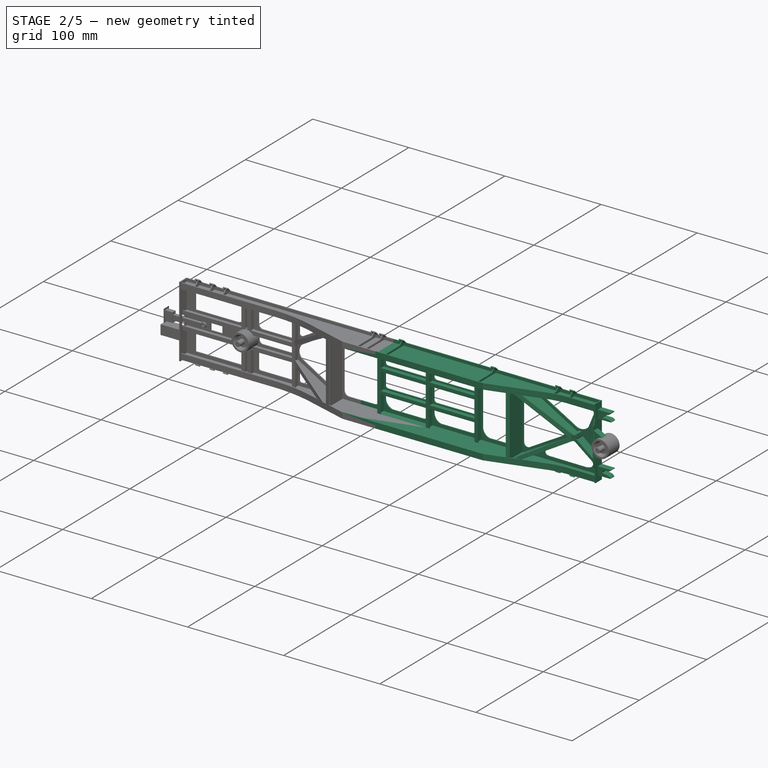
[diagram: stage 2 of 5 — iso view after this stage's code; geometry added in this stage tinted green]
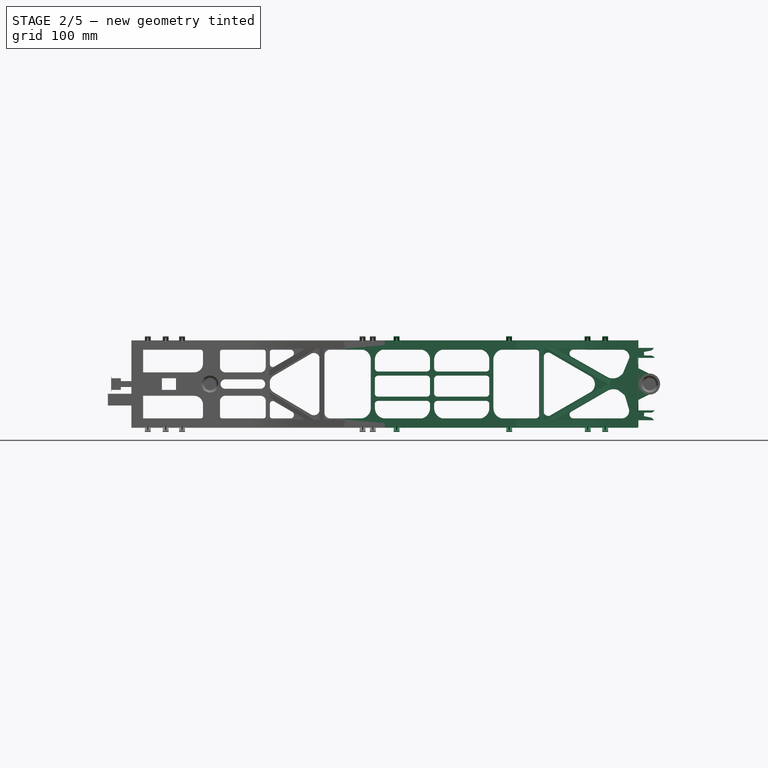
[diagram: stage 2 of 5 — front view after this stage's code; geometry added in this stage tinted green]
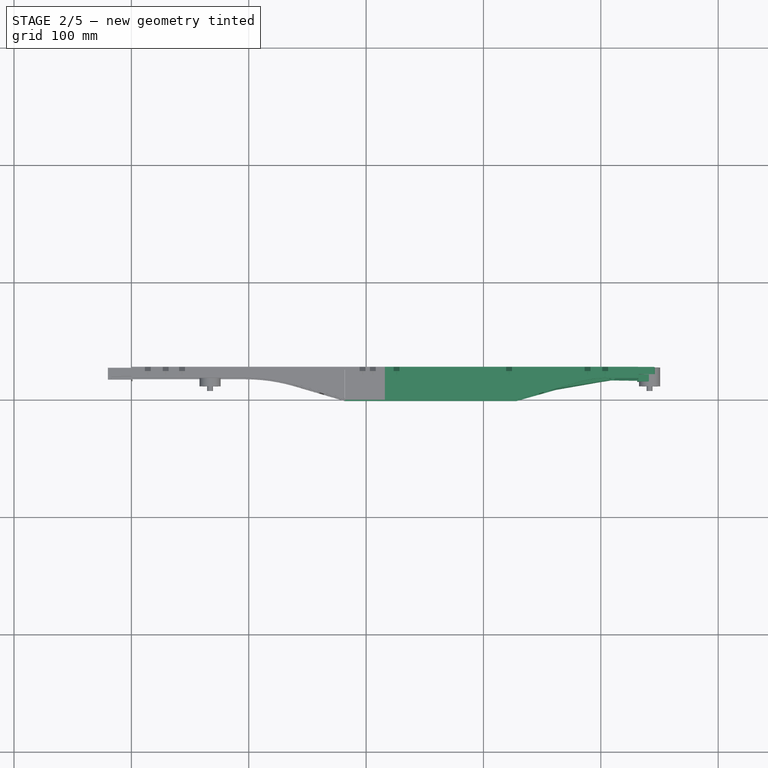
[diagram: stage 2 of 5 — top view after this stage's code; geometry added in this stage tinted green]
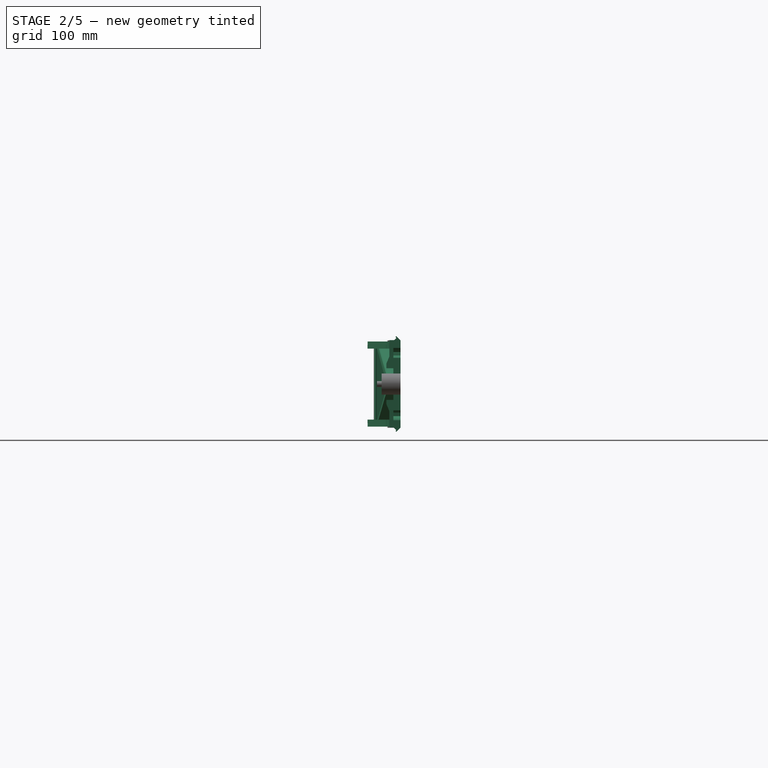
[diagram: stage 2 of 5 — right view after this stage's code; geometry added in this stage tinted green]
FEATURE [Part::Box] Box010  label="Würfel009"
  AttacherType = Attacher::AttachEngine3D
  Height = 3
  Length = 75
  Placement = pos=(216,-1,66.5) rot=(0,0,1;0rad)
  Width = 1
FEATURE [Part::Box] Box011  label="Würfel010"
  AttacherType = Attacher::AttachEngine3D
  Height = 4
  Length = 140
  Placement = pos=(431,26,2.6e-14) rot=(0,1,0;3.14159rad)
  Width = 1
FEATURE [Part::Box] Box022  label="Cube011"
  AttacherType = Attacher::AttachEngine3D
  Height = 3
  Length = 57.5
  Placement = pos=(328,-1,0) rot=(0,0,1;0.275762rad)
  Width = 1
FEATURE [Part::Box] Box025  label="Cube014"
  AttacherType = Attacher::AttachEngine3D
  Height = 3
  Length = 27
  Placement = pos=(405,17.5,0) rot=(0,0,1;0rad)
  Width = 1
FEATURE [Sketcher::SketchObject] Sketch042
  FullyConstrained = false
  sketch-geometry (4):
    g0: LineSegment StartX=112.417 StartY=8.65364 StartZ=0 EndX=112.417 EndY=13.6536 EndZ=0
    g1: LineSegment StartX=112.417 StartY=13.6536 StartZ=0 EndX=160.917 EndY=13.6536 EndZ=0
    g2: LineSegment StartX=160.917 StartY=13.6536 StartZ=0 EndX=160.917 EndY=-5.34636 EndZ=0
    g3: LineSegment StartX=160.917 StartY=-5.34636 StartZ=0 EndX=112.417 EndY=8.65364 EndZ=0
  constraints (10):
    c: Vertical(g0)
    c: Coincident(g0,g1)
    c: Coincident(g1,g2)
    c: Vertical(g2)
    c: Coincident(g2,g3)
    c: Coincident(g3,g0)
    c: DistanceY(g0,g0) = 5
    c: DistanceX(g0,g2) = 48.5
    c: DistanceY(g2,g1) = 19
    c: Horizontal(g1)
FEATURE [Sketcher::SketchObject] Sketch043
  FullyConstrained = false
  Placement = pos=(0,0,0) rot=(1,0,0;1.5708rad)
  sketch-geometry (4):
    g0: LineSegment StartX=118.058 StartY=26.2435 StartZ=0 EndX=118.058 EndY=21.6278 EndZ=0
    g1: LineSegment StartX=118.058 StartY=21.6278 StartZ=0 EndX=154.181 EndY=0.306549 EndZ=0
    g2: LineSegment StartX=154.181 StartY=0.306549 StartZ=0 EndX=162.853 EndY=0.306549 EndZ=0
    g3: LineSegment StartX=162.853 StartY=0.306549 StartZ=0 EndX=118.058 EndY=26.2435 EndZ=0
  constraints (6):
    c: Vertical(g0)
    c: Coincident(g0,g1)
    c: Coincident(g1,g2)
    c: Horizontal(g2)
    c: Coincident(g2,g3)
    c: Coincident(g0,g3)
FEATURE [Part::Box] Box091  label="Cube072"
  AttacherType = Attacher::AttachEngine3D
  Height = 3
  Length = 146.5
  Placement = pos=(181.5,-1,0) rot=(0,0,1;0rad)
  Width = 1
FEATURE [Part::Box] Box092  label="Cube073"
  AttacherType = Attacher::AttachEngine3D
  Height = 4
  Length = 146
  Placement = pos=(182,26,0) rot=(0,0,1;0rad)
  Width = 1
FEATURE [Part::Box] Box093  label="Würfel018"
  AttacherType = Attacher::AttachEngine3D
  Height = 4
  Length = 104
  Placement = pos=(328,26,0) rot=(0,0,1;0rad)
  Width = 1
FEATURE [Part::Box] Box109  label="Cube088"
  AttacherType = Attacher::AttachEngine3D
  Height = 5
  Length = 5
  Placement = pos=(319.4,27,-4) rot=(1,0,0;2.35619rad)
  Width = 1
FEATURE [Sketcher::SketchObject] Sketch045
  FullyConstrained = false
  Placement = pos=(0,-1,0) rot=(1,0,0;1.5708rad)
  sketch-geometry (8):
    g0: ArcOfCircle CenterX=216.444 CenterY=53.9052 CenterZ=0 NormalX=0 NormalY=0 NormalZ=1 AngleXU=0 Radius=9 StartAngle=1.5708 EndAngle=3.04648
    g1: ArcOfCircle CenterX=195.029 CenterY=53.9055 CenterZ=0 NormalX=0 NormalY=0 NormalZ=1 AngleXU=0 Radius=9 StartAngle=0.0984816 EndAngle=1.57847
    g2: ArcOfCircle CenterX=194.985 CenterY=12.9052 CenterZ=0 NormalX=0 NormalY=0 NormalZ=1 AngleXU=0 Radius=9 StartAngle=4.71239 EndAngle=6.28319
    g3: ArcOfCircle CenterX=216.485 CenterY=12.9049 CenterZ=0 NormalX=0 NormalY=0 NormalZ=1 AngleXU=0 Radius=9 StartAngle=3.14159 EndAngle=4.70434
    g4: LineSegment StartX=194.985 StartY=3.90523 StartZ=0 EndX=216.412 EndY=3.90523 EndZ=0
    g5: LineSegment StartX=203.985 StartY=12.9052 StartZ=0 EndX=203.985 EndY=54.7904 EndZ=0
    g6: LineSegment StartX=207.485 StartY=12.9049 StartZ=0 EndX=207.485 EndY=54.76 EndZ=0
    g7: LineSegment StartX=194.959 StartY=62.9052 StartZ=0 EndX=216.444 EndY=62.9052 EndZ=0
  constraints (22):
    c: Radius(g0) = 9
    c: Radius(g1) = 9
    c: Horizontal(g3,g3)
    c: Horizontal(g2,g2)
    c: Coincident(g4,g2)
    c: Coincident(g4,g3)
    c: Horizontal(g4)
    c: Tangent(g4,g2)
    c: Coincident(g5,g2)
    c: Coincident(g5,g1)
    c: Vertical(g5)
    c: Coincident(g6,g3)
    c: Coincident(g6,g0)
    c: Vertical(g6)
    c: DistanceY(g3,g0) = 59
    c: DistanceX(g1,g0) = 3.5
    c: Radius(g2) = 9
    c: Radius(g3) = 9
    c: Coincident(g7,g1)
    c: Coincident(g7,g0)
    c: Horizontal(g7)
    c: Tangent(g7,g0)
FEATURE [Part::Extrusion] Extrude094
  Base = -> Sketch045
  Dir = (0,-1,2e-16)
  DirMode = 2
  FaceMakerClass = Part::FaceMakerBullseye
  LengthFwd = 1
  LengthRev = 0
  Placement = pos=(0,28,0) rot=(0,0,1;0rad)
  Solid = true
  Symmetric = false
FEATURE [Part::Extrusion] Extrude095
  Base = -> Sketch045
  Dir = (0,-1,2e-16)
  DirMode = 2
  FaceMakerClass = Part::FaceMakerBullseye
  LengthFwd = 1
  LengthRev = 0
  Placement = pos=(50.5,28,-0.1) rot=(0,0,1;0rad)
  Solid = true
  Symmetric = false
FEATURE [Part::Extrusion] Extrude096
  Base = -> Sketch045
  Dir = (0,-1,2e-16)
  DirMode = 2
  FaceMakerClass = Part::FaceMakerBullseye
  LengthFwd = 1
  LengthRev = 0
  Placement = pos=(101,28,-0.1) rot=(0,0,1;0rad)
  Solid = true
  Symmetric = false
FEATURE [Sketcher::SketchObject] Sketch046
  FullyConstrained = false
  Placement = pos=(0,0,0) rot=(1,0,0;1.5708rad)
  sketch-geometry (8):
    g0: ArcOfCircle CenterX=211.465 CenterY=60.8681 CenterZ=0 NormalX=0 NormalY=0 NormalZ=1 AngleXU=0 Radius=3 StartAngle=1.5708 EndAngle=3.14159
    g1: ArcOfCircle CenterX=201.965 CenterY=60.8681 CenterZ=0 NormalX=0 NormalY=0 NormalZ=1 AngleXU=0 Radius=3 StartAngle=-9e-16 EndAngle=1.5708
    g2: ArcOfCircle CenterX=201.965 CenterY=19.6681 CenterZ=0 NormalX=0 NormalY=0 NormalZ=1 AngleXU=0 Radius=3 StartAngle=4.71239 EndAngle=6.28319
    g3: ArcOfCircle CenterX=211.465 CenterY=19.6681 CenterZ=0 NormalX=0 NormalY=0 NormalZ=1 AngleXU=0 Radius=3 StartAngle=3.14159 EndAngle=4.71239
    g4: LineSegment StartX=201.965 StartY=16.6681 StartZ=0 EndX=211.465 EndY=16.6681 EndZ=0
    g5: LineSegment StartX=204.965 StartY=19.6681 StartZ=0 EndX=204.965 EndY=60.8681 EndZ=0
    g6: LineSegment StartX=208.465 StartY=19.6681 StartZ=0 EndX=208.465 EndY=60.8681 EndZ=0
    g7: LineSegment StartX=201.965 StartY=63.8681 StartZ=0 EndX=211.465 EndY=63.8681 EndZ=0
  constraints (26):
    c: Radius(g0) = 3
    c: Radius(g1) = 3
    c: Horizontal(g3,g3)
    c: Horizontal(g2,g2)
    c: Coincident(g4,g2)
    c: Coincident(g4,g3)
    c: Horizontal(g4)
    c: Tangent(g4,g2)
    c: Coincident(g5,g2)
    c: Coincident(g5,g1)
    c: Vertical(g5)
    c: Coincident(g6,g3)
    c: Coincident(g6,g0)
    c: Vertical(g6)
    c: DistanceY(g3,g0) = 47.2
    c: DistanceX(g1,g0) = 3.5
    c: Radius(g2) = 3
    c: Radius(g3) = 3
    c: Coincident(g7,g1)
    c: Coincident(g7,g0)
    c: Horizontal(g7)
    c: Tangent(g7,g0)
    c: Horizontal(g0,g0)
    c: Horizontal(g0,g1)
    c: Horizontal(g1,g1)
    c: Vertical(g3,g3)
FEATURE [Part::Extrusion] Extrude097
  Base = -> Sketch046
  Dir = (0,-1,2e-16)
  DirMode = 2
  FaceMakerClass = Part::FaceMakerBullseye
  LengthFwd = 1
  LengthRev = 0
  Placement = pos=(271.2,27,-164.5) rot=(0,-1,0;1.5708rad)
  Solid = true
  Symmetric = false
FEATURE [Part::Extrusion] Extrude098
  Base = -> Sketch046
  Dir = (0,-1,2e-16)
  DirMode = 2
  FaceMakerClass = Part::FaceMakerBullseye
  LengthFwd = 1
  LengthRev = 0
  Placement = pos=(321.8,27,-164.5) rot=(0,-1,0;1.5708rad)
  Solid = true
  Symmetric = false
FEATURE [Part::Extrusion] Extrude099
  Base = -> Sketch046
  Dir = (0,-1,2e-16)
  DirMode = 2
  FaceMakerClass = Part::FaceMakerBullseye
  LengthFwd = 1
  LengthRev = 0
  Placement = pos=(321.8,27,-186) rot=(0,-1,0;1.5708rad)
  Solid = true
  Symmetric = false
FEATURE [Part::Extrusion] Extrude100
  Base = -> Sketch046
  Dir = (0,-1,2e-16)
  DirMode = 2
  FaceMakerClass = Part::FaceMakerBullseye
  LengthFwd = 1
  LengthRev = 0
  Placement = pos=(271.2,27,-186) rot=(0,-1,0;1.5708rad)
  Solid = true
  Symmetric = false
FEATURE [Part::Box] Box116  label="Cube095"
  AttacherType = Attacher::AttachEngine3D
  Height = 66
  Length = 1
  Placement = pos=(205,20,0) rot=(0,0,1;0rad)
  Width = 6
FEATURE [Part::Box] Box117  label="Cube096"
  AttacherType = Attacher::AttachEngine3D
  Height = 66
  Length = 1
  Placement = pos=(255.5,20,0) rot=(0,0,1;0rad)
  Width = 6
FEATURE [Part::Box] Box118  label="Cube097"
  AttacherType = Attacher::AttachEngine3D
  Height = 66
  Length = 1
  Placement = pos=(306,20,0) rot=(0,0,1;0rad)
  Width = 6
FEATURE [Part::Box] Box119  label="Cube098"
  AttacherType = Attacher::AttachEngine3D
  Height = 100
  Length = 1
  Placement = pos=(206,20,21) rot=(0,1,0;1.5708rad)
  Width = 6
FEATURE [Part::Box] Box120  label="Cube099"
  AttacherType = Attacher::AttachEngine3D
  Height = 100
  Length = 1
  Placement = pos=(206,20,42.5) rot=(0,1,0;1.5708rad)
  Width = 6
FEATURE [Part::Box] Box122  label="Cube101"
  AttacherType = Attacher::AttachEngine3D
  Height = 97.5
  Length = 1
  Placement = pos=(207.5,19,19) rot=(0.57735,0.57735,0.57735;2.0944rad)
  Width = 3.5
FEATURE [Part::Box] Box123  label="Cube102"
  AttacherType = Attacher::AttachEngine3D
  Height = 97.5
  Length = 1
  Placement = pos=(207.5,19,40.5) rot=(0.57735,0.57735,0.57735;2.0944rad)
  Width = 3.5
FEATURE [Part::Box] Box124  label="Cube103"
  AttacherType = Attacher::AttachEngine3D
  Height = 66
  Length = 1
  Placement = pos=(204,20,0) rot=(0,0,-1;1.5708rad)
  Width = 3.5
FEATURE [Part::Box] Box125  label="Cube104"
  AttacherType = Attacher::AttachEngine3D
  Height = 66
  Length = 1
  Placement = pos=(254.5,20,0) rot=(0,0,-1;1.5708rad)
  Width = 3.5
FEATURE [Part::Box] Box126  label="Cube105"
  AttacherType = Attacher::AttachEngine3D
  Height = 66
  Length = 1
  Placement = pos=(305,20,0) rot=(0,0,-1;1.5708rad)
  Width = 3.5
FEATURE [Part::Extrusion] Extrude102
  Base = -> Sketch047
  Dir = (0,0,1)
  DirMode = 2
  FaceMakerClass = Part::FaceMakerBullseye
  LengthFwd = 0.5
  LengthRev = 0
  Solid = true
  Symmetric = false
FEATURE [Part::Box] Box129  label="Cube108"
  AttacherType = Attacher::AttachEngine3D
  Height = 0.5
  Length = 146
  Placement = pos=(182,0,0) rot=(0,0,1;0rad)
  Width = 26
FEATURE [Part::Extrusion] Extrude104
  Base = -> Sketch047
  Dir = (0,0,1)
  DirMode = 2
  FaceMakerClass = Part::FaceMakerBullseye
  LengthFwd = 1
  LengthRev = 0
  Placement = pos=(0,0,-1) rot=(0,0,1;0rad)
  Solid = true
  Symmetric = false
FEATURE [Part::Box] Box131  label="Cube110"
  AttacherType = Attacher::AttachEngine3D
  Height = 1
  Length = 75
  Placement = pos=(216,0,-1) rot=(0,0,1;0rad)
  Width = 26
FEATURE [Part::Box] Box141  label="Cube118"
  AttacherType = Attacher::AttachEngine3D
  Height = 0.5
  Length = 146
  Placement = pos=(182,0,66) rot=(0,0,1;0rad)
  Width = 26
FEATURE [Part::Box] Box142  label="Cube119"
  AttacherType = Attacher::AttachEngine3D
  Height = 4
  Length = 146
  Placement = pos=(182,26,62.5) rot=(0,0,1;0rad)
  Width = 1
FEATURE [Part::Box] Box143  label="Cube120"
  AttacherType = Attacher::AttachEngine3D
  Height = 3
  Length = 146.5
  Placement = pos=(181.5,-1,63.5) rot=(0,0,1;0rad)
  Width = 1
FEATURE [Part::MultiFuse] Fusion124
  Shapes = -> [Box129,Box092,Box091]
FEATURE [Part::MultiFuse] Fusion125
  Shapes = -> [Box141,Box142,Box143]
FEATURE [Part::Extrusion] Extrude116
  Base = -> Sketch047
  Dir = (0,0,1)
  DirMode = 2
  FaceMakerClass = Part::FaceMakerBullseye
  LengthFwd = 0.5
  LengthRev = 0
  Placement = pos=(0,0,66) rot=(0,0,1;0rad)
  Solid = true
  Symmetric = false
FEATURE [Part::Box] Box147  label="Würfel022"
  AttacherType = Attacher::AttachEngine3D
  Height = 3
  Length = 75
  Placement = pos=(216,-1,-3) rot=(0,0,1;0rad)
  Width = 1
FEATURE [Part::Box] Box148  label="Cube123"
  AttacherType = Attacher::AttachEngine3D
  Height = 3
  Length = 27
  Placement = pos=(405,17.5,66.5) rot=(0,0,1;0rad)
  Width = 1
FEATURE [Part::Box] Box149  label="Cube124"
  AttacherType = Attacher::AttachEngine3D
  Height = 3
  Length = 57.7
  Placement = pos=(327.7,-1,66.5) rot=(0,0,1;0.275762rad)
  Width = 1
FEATURE [Part::Box] Box151  label="Cube126"
  AttacherType = Attacher::AttachEngine3D
  Height = 3
  Length = 27
  Placement = pos=(405,17.5,-3) rot=(0,0,1;0rad)
  Width = 1
FEATURE [Part::Box] Box152  label="Cube127"
  AttacherType = Attacher::AttachEngine3D
  Height = 3
  Length = 27
  Placement = pos=(405,17.5,63.5) rot=(0,0,1;0rad)
  Width = 1
FEATURE [Part::Box] Box153  label="Cube128"
  AttacherType = Attacher::AttachEngine3D
  Height = 3
  Length = 57.5
  Placement = pos=(328,-1,-3) rot=(0,0,1;0.275762rad)
  Width = 1
FEATURE [Part::Box] Box154  label="Cube129"
  AttacherType = Attacher::AttachEngine3D
  Height = 3
  Length = 57.5
  Placement = pos=(328,-1,63.5) rot=(0,0,1;0.275762rad)
  Width = 1
FEATURE [Part::Box] Box155  label="Würfel023"
  AttacherType = Attacher::AttachEngine3D
  Height = 4
  Length = 140
  Placement = pos=(291,26,66.5) rot=(0,0,1;0rad)
  Width = 1
FEATURE [Sketcher::SketchObject] Sketch049
  FullyConstrained = false
  sketch-geometry (4):
    g0: ArcOfCircle CenterX=404.803 CenterY=-62.2359 CenterZ=0 NormalX=0 NormalY=0 NormalZ=1 AngleXU=0 Radius=80.9 StartAngle=1.5599 EndAngle=1.83916
    g1: ArcOfCircle CenterX=404.803 CenterY=-62.2359 CenterZ=0 NormalX=0 NormalY=0 NormalZ=1 AngleXU=0 Radius=79.8 StartAngle=1.55975 EndAngle=1.83901
    g2: LineSegment StartX=405.685 StartY=18.6593 StartZ=0 EndX=405.685 EndY=17.5592 EndZ=0
    g3: LineSegment StartX=383.353 StartY=15.7684 StartZ=0 EndX=383.656 EndY=14.711 EndZ=0
  constraints (10):
    c: Radius(g0) = 80.9
    c: Angle(g0) = 0.279253
    c: Radius(g1) = 79.8
    c: Coincident(g0,g1)
    c: Angle(g1) = 0.279253
    c: Coincident(g2,g0)
    c: Coincident(g2,g1)
    c: Vertical(g2)
    c: Coincident(g3,g0)
    c: Coincident(g1,g3)
FEATURE [Part::Extrusion] Extrude121
  Base = -> Sketch049
  Dir = (0,0,1)
  DirMode = 2
  FaceMakerClass = Part::FaceMakerBullseye
  LengthFwd = 3
  LengthRev = 0
  Placement = pos=(-0.5,0,-3) rot=(0,0,1;0rad)
  Solid = true
  Symmetric = false
FEATURE [Part::Box] Box156  label="Würfel024"
  AttacherType = Attacher::AttachEngine3D
  Height = 4
  Length = 104
  Placement = pos=(328,26,62.5) rot=(0,0,1;0rad)
  Width = 1
FEATURE [Part::Extrusion] Extrude122
  Base = -> Sketch049
  Dir = (0,0,1)
  DirMode = 2
  FaceMakerClass = Part::FaceMakerBullseye
  LengthFwd = 3
  LengthRev = 0
  Placement = pos=(-0.5,0,63.5) rot=(0,0,1;0rad)
  Solid = true
  Symmetric = false
FEATURE [Part::Extrusion] Extrude123
  Base = -> Sketch049
  Dir = (0,0,1)
  DirMode = 2
  FaceMakerClass = Part::FaceMakerBullseye
  LengthFwd = 3
  LengthRev = 0
  Placement = pos=(-0.5,0,0) rot=(0,0,1;0rad)
  Solid = true
  Symmetric = false
FEATURE [Part::Extrusion] Extrude124
  Base = -> Sketch049
  Dir = (0,0,1)
  DirMode = 2
  FaceMakerClass = Part::FaceMakerBullseye
  LengthFwd = 3
  LengthRev = 0
  Placement = pos=(-0.5,0,66.5) rot=(0,0,1;0rad)
  Solid = true
  Symmetric = false
FEATURE [Sketcher::SketchObject] Sketch050
  FullyConstrained = false
  Placement = pos=(0,0,0) rot=(1,0,0;1.5708rad)
  sketch-geometry (24):
    g0: LineSegment StartX=348.196 StartY=58.8446 StartZ=0 EndX=348.196 EndY=7.33405 EndZ=0
    g1: LineSegment StartX=351.446 StartY=56.0445 StartZ=0 EndX=351.446 EndY=10.1244 EndZ=0
    g2: LineSegment StartX=358.018 StartY=7.06019 StartZ=0 EndX=391.637 EndY=26.4703 EndZ=0
    g3: LineSegment StartX=391.637 StartY=39.6985 StartZ=0 EndX=358.018 EndY=59.1086 EndZ=0
    g4: LineSegment StartX=406.43 StartY=38.8762 StartZ=0 EndX=375.587 EndY=56.4333 EndZ=0
    g5: LineSegment StartX=375.6 StartY=10.0397 StartZ=0 EndX=406.345 EndY=27.7973 EndZ=0
    g6: ArcOfCircle CenterX=344.62 CenterY=58.9778 CenterZ=0 NormalX=0 NormalY=0 NormalZ=1 AngleXU=0 Radius=3.57824 StartAngle=6.24595 EndAngle=7.86325
    g7: ArcOfCircle CenterX=344.431 CenterY=7.82089 CenterZ=0 NormalX=0 NormalY=0 NormalZ=1 AngleXU=0 Radius=3.79612 StartAngle=4.73324 EndAngle=6.15458
    g8: ArcOfCircle CenterX=355.446 CenterY=56.0445 CenterZ=0 NormalX=0 NormalY=0 NormalZ=1 AngleXU=0 Radius=4 StartAngle=0.872665 EndAngle=3.14159
    g9: ArcOfCircle CenterX=355.446 CenterY=10.1244 CenterZ=0 NormalX=0 NormalY=0 NormalZ=1 AngleXU=0 Radius=4 StartAngle=3.14159 EndAngle=5.41052
    g10: ArcOfCircle CenterX=387.136 CenterY=33.0844 CenterZ=0 NormalX=0 NormalY=0 NormalZ=1 AngleXU=0 Radius=8 StartAngle=5.30986 EndAngle=7.25651
    g11: ArcOfCircle CenterX=376.689 CenterY=59.3955 CenterZ=0 NormalX=0 NormalY=0 NormalZ=1 AngleXU=0 Radius=3.16041 StartAngle=1.57179 EndAngle=4.35635
    g12: ArcOfCircle CenterX=376.677 CenterY=7.12917 CenterZ=0 NormalX=0 NormalY=0 NormalZ=1 AngleXU=0 Radius=3.10359 StartAngle=1.92534 EndAngle=4.71495
    g13: LineSegment StartX=344.51 StartY=4.0256 StartZ=0 EndX=376.685 EndY=4.0256 EndZ=0
    g14: ArcOfCircle CenterX=418.117 CenterY=56.0817 CenterZ=0 NormalX=0 NormalY=0 NormalZ=1 AngleXU=0 Radius=6.47433 StartAngle=6.26882 EndAngle=7.84792
    g15: ArcOfCircle CenterX=410.438 CenterY=48.6911 CenterZ=0 NormalX=0 NormalY=0 NormalZ=1 AngleXU=0 Radius=10.6018 StartAngle=4.32465 EndAngle=5.69013
    g16: LineSegment StartX=419.23 StartY=42.7657 StartZ=0 EndX=424.59 EndY=55.9887 EndZ=0
    g17: ArcOfCircle CenterX=417.956 CenterY=10.3971 CenterZ=0 NormalX=0 NormalY=0 NormalZ=1 AngleXU=0 Radius=6.37185 StartAngle=4.70255 EndAngle=6.45903
    g18: ArcOfCircle CenterX=411.068 CenterY=17.863 CenterZ=0 NormalX=0 NormalY=0 NormalZ=1 AngleXU=0 Radius=11 StartAngle=0.443819 EndAngle=2.01462
    g19: LineSegment StartX=421.003 StartY=22.5863 StartZ=0 EndX=424.229 EndY=11.5118 EndZ=0
    g20: LineSegment StartX=418.156 StartY=62.5559 StartZ=0 EndX=432.004 EndY=62.5559 EndZ=0
    g21: LineSegment StartX=432.004 StartY=62.5559 StartZ=0 EndX=432.004 EndY=4.0256 EndZ=0
    g22: LineSegment StartX=432.004 StartY=4.0256 StartZ=0 EndX=417.893 EndY=4.0256 EndZ=0
    g23: LineSegment StartX=344.587 StartY=62.5559 StartZ=0 EndX=376.686 EndY=62.5559 EndZ=0
  constraints (32):
    c: Horizontal(g23)
    c: Coincident(g23,g11)
    c: Coincident(g4,g11)
    c: Coincident(g6,g23)
    c: Coincident(g1,g8)
    c: Coincident(g6,g0)
    c: Coincident(g7,g0)
    c: Coincident(g1,g9)
    c: Coincident(g7,g13)
    c: Coincident(g12,g13)
    c: Horizontal(g13)
    c: Horizontal(g17,g12)
    c: Vertical(g0)
    c: Coincident(g17,g22)
    c: Horizontal(g22)
    c: Coincident(g9,g2)
    c: Coincident(g10,g2)
    c: Coincident(g8,g3)
    c: Coincident(g10,g3)
    c: Coincident(g4,g15)
    c: Coincident(g5,g18)
    c: Coincident(g15,g16)
    c: Coincident(g14,g20)
    c: Horizontal(g11,g14)
    c: Horizontal(g20)
    c: Coincident(g14,g16)
    c: Vertical(g21)
    c: Coincident(g18,g19)
    c: Coincident(g17,g19)
    c: Coincident(g22,g21)
    c: Coincident(g5,g12)
    c: Coincident(g20,g21)
FEATURE [Part::Extrusion] Extrude125
  Base = -> Sketch050
  Dir = (0,-1,2e-16)
  DirMode = 2
  FaceMakerClass = Part::FaceMakerBullseye
  LengthFwd = 1
  LengthRev = 0
  Placement = pos=(-0.2,27,0) rot=(0,0,1;0rad)
  Solid = true
  Symmetric = false
FEATURE [Part::Box] Box159  label="Cube132"
  AttacherType = Attacher::AttachEngine3D
  Height = 66.5
  Length = 1
  Placement = pos=(349,6,0) rot=(0,0,1;0rad)
  Width = 20
FEATURE [Part::Box] Box160  label="Cube133"
  AttacherType = Attacher::AttachEngine3D
  Height = 60.5
  Length = 1
  Placement = pos=(351.5,5.8,3) rot=(0,0,1;1.8675rad)
  Width = 4
FEATURE [Part::Extrusion] Extrude130
  Base = -> Sketch052
  Dir = (0,-1,2e-16)
  DirMode = 2
  FaceMakerClass = Part::FaceMakerBullseye
  LengthFwd = 1
  LengthRev = 0
  Placement = pos=(6.79421,-66,1.5) rot=(-0.31561,-0.024839,0.948564;0.20944rad)
  Solid = true
  Symmetric = false
FEATURE [Sketcher::SketchObject] Sketch053
  FullyConstrained = false
  sketch-geometry (4):
    g0: LineSegment StartX=338.257 StartY=-23.1729 StartZ=0 EndX=338.257 EndY=-4.17288 EndZ=0
    g1: LineSegment StartX=338.257 StartY=-4.17288 StartZ=0 EndX=405.257 EndY=-4.17288 EndZ=0
    g2: LineSegment StartX=405.257 StartY=-4.17288 StartZ=0 EndX=405.257 EndY=-13.6729 EndZ=0
    g3: LineSegment StartX=405.257 StartY=-13.6729 StartZ=0 EndX=338.257 EndY=-23.1729 EndZ=0
  constraints (10):
    c: Vertical(g0)
    c: Coincident(g0,g1)
    c: Coincident(g1,g2)
    c: Vertical(g2)
    c: Coincident(g2,g3)
    c: Coincident(g3,g0)
    c: DistanceY(g0,g0) = 19
    c: DistanceX(g0,g2) = 67
    c: DistanceY(g2,g1) = 9.5
    c: Horizontal(g1)
FEATURE [Part::Extrusion] Extrude131
  Base = -> Sketch053
  Dir = (0,0,1)
  DirMode = 2
  FaceMakerClass = Part::FaceMakerBullseye
  LengthFwd = 1
  LengthRev = 0
  Placement = pos=(57.7407,31,-166.515) rot=(0,-1,0;0.514872rad)
  Solid = true
  Symmetric = false
FEATURE [Part::Extrusion] Extrude132
  Base = -> Sketch053
  Dir = (0,0,1)
  DirMode = 2
  FaceMakerClass = Part::FaceMakerBullseye
  LengthFwd = 1
  LengthRev = 0
  Placement = pos=(56.8055,31,232.261) rot=(0,1,0;0.514872rad)
  Solid = true
  Symmetric = false
FEATURE [Sketcher::SketchObject] Sketch054
  FullyConstrained = false
  MapMode = 45
  Placement = pos=(442,24,33.25) rot=(0,0.707107,0.707107;3.14159rad)
  sketch-geometry (4):
    g0: ArcOfCircle CenterX=-0.017059 CenterY=-0.018143 CenterZ=0 NormalX=0 NormalY=0 NormalZ=1 AngleXU=0 Radius=8.5 StartAngle=4.71038 EndAngle=7.85197
    g1: LineSegment StartX=-0.034118 StartY=-8.51813 StartZ=0 EndX=10.0728 EndY=-13.5181 EndZ=0
    g2: LineSegment StartX=10.0728 StartY=-13.5181 StartZ=0 EndX=10.0728 EndY=13.4818 EndZ=0
    g3: LineSegment StartX=10.0728 StartY=13.4818 StartZ=0 EndX=3.6e-15 EndY=8.48184 EndZ=0
  constraints (10):
    c: PointOnObject(g0,g-2)
    c: Coincident(g0,g1)
    c: Coincident(g1,g2)
    c: Vertical(g2)
    c: Coincident(g2,g3)
    c: Coincident(g3,g0)
    c: DistanceY(g1,g0) = 5
    c: DistanceY(g0,g2) = 5
    c: Angle(g0) = 3.14159
    c: Radius(g0) = 8.5
FEATURE [Part::Extrusion] Extrude133
  Base = -> Sketch054
  Dir = (0,1,-2e-16)
  DirMode = 2
  FaceMakerClass = Part::FaceMakerBullseye
  LengthFwd = 6
  LengthRev = 0
  Placement = pos=(0,-9,0) rot=(0,0,1;0rad)
  Solid = true
  Symmetric = false
FEATURE [Part::Cylinder] Cylinder091
  Angle = 360
  AttacherType = Attacher::AttachEngine3D
  FirstAngle = 0
  Height = 10
  Placement = pos=(410,16,33.5) rot=(-1,0,0;1.5708rad)
  Radius = 3
  SecondAngle = 0
FEATURE [Sketcher::SketchObject] Sketch055
  FullyConstrained = false
  Placement = pos=(0,0,0) rot=(1,0,0;1.5708rad)
  sketch-geometry (4):
    g0: LineSegment StartX=349.433 StartY=0.938234 StartZ=0 EndX=356.294 EndY=0.938234 EndZ=0
    g1: LineSegment StartX=356.294 StartY=0.938234 StartZ=0 EndX=409.431 EndY=30.7117 EndZ=0
    g2: LineSegment StartX=409.431 StartY=30.7117 StartZ=0 EndX=407.367 EndY=34.5048 EndZ=0
    g3: LineSegment StartX=407.367 StartY=34.5048 StartZ=0 EndX=349.433 EndY=0.938234 EndZ=0
  constraints (5):
    c: Coincident(g0,g1)
    c: Coincident(g1,g2)
    c: Coincident(g2,g3)
    c: Coincident(g0,g3)
    c: Horizontal(g0)
FEATURE [Part::Extrusion] Extrude134
  Base = -> Sketch055
  Dir = (0,-1,2e-16)
  DirMode = 2
  FaceMakerClass = Part::FaceMakerBullseye
  LengthFwd = 1
  LengthRev = 0
  Placement = pos=(4.01384,-37.72,-1) rot=(-0.410037,-0.04312,0.911049;0.143117rad)
  Solid = true
  Symmetric = false
FEATURE [Part::Box] Box161  label="Cube134"
  AttacherType = Attacher::AttachEngine3D
  Height = 1
  Length = 27
  Placement = pos=(409.5,16,33.5) rot=(0,1,0;0.663225rad)
  Width = 10
FEATURE [Part::Box] Box162  label="Cube135"
  AttacherType = Attacher::AttachEngine3D
  Height = 1
  Length = 27
  Placement = pos=(410,16,33) rot=(0,-1,0;0.645772rad)
  Width = 10
FEATURE [Sketcher::SketchObject] Sketch056
  FullyConstrained = false
  Placement = pos=(0,0,0) rot=(1,0,0;1.5708rad)
  sketch-geometry (4):
    g0: LineSegment StartX=410.572 StartY=32.4173 StartZ=0 EndX=408.8 EndY=34.3888 EndZ=0
    g1: LineSegment StartX=408.8 StartY=34.3888 StartZ=0 EndX=431.289 EndY=51.5834 EndZ=0
    g2: LineSegment StartX=431.289 StartY=51.5834 StartZ=0 EndX=431.289 EndY=47.1725 EndZ=0
    g3: LineSegment StartX=431.289 StartY=47.1725 StartZ=0 EndX=410.572 EndY=32.4173 EndZ=0
  constraints (5):
    c: Coincident(g0,g1)
    c: Coincident(g1,g2)
    c: Vertical(g2)
    c: Coincident(g2,g3)
    c: Coincident(g3,g0)
FEATURE [Part::Extrusion] Extrude135
  Base = -> Sketch056
  Dir = (0,-1,-4e-16)
  DirMode = 2
  FaceMakerClass = Part::FaceMakerBullseye
  LengthFwd = 1
  LengthRev = 0
  Placement = pos=(0,17,0) rot=(0,0,1;0rad)
  Solid = true
  Symmetric = false
FEATURE [Sketcher::SketchObject] Sketch057
  FullyConstrained = false
  Placement = pos=(0,0,0) rot=(1,0,0;1.5708rad)
  sketch-geometry (4):
    g0: LineSegment StartX=410.581 StartY=35.0679 StartZ=0 EndX=431.544 EndY=18.7658 EndZ=0
    g1: LineSegment StartX=431.544 StartY=18.7658 StartZ=0 EndX=431.544 EndY=15.1734 EndZ=0
    g2: LineSegment StartX=431.544 StartY=15.1734 StartZ=0 EndX=408.53 EndY=32.8964 EndZ=0
    g3: LineSegment StartX=408.53 StartY=32.8964 StartZ=0 EndX=410.581 EndY=35.0679 EndZ=0
  constraints (5):
    c: Coincident(g0,g1)
    c: Vertical(g1)
    c: Coincident(g1,g2)
    c: Coincident(g2,g3)
    c: Coincident(g3,g0)
FEATURE [Part::Extrusion] Extrude136
  Base = -> Sketch057
  Dir = (0,-1,-3e-16)
  DirMode = 2
  FaceMakerClass = Part::FaceMakerBullseye
  LengthFwd = 1
  LengthRev = 0
  Placement = pos=(0,17,0) rot=(0,0,1;0rad)
  Solid = true
  Symmetric = false
FEATURE [Part::MultiFuse] Fusion138
  Shapes = -> [Box120,Box119,Box118,Box117,Box116,Box126,Box123,Box122,Box125,Box124]
FEATURE [Part::MultiFuse] Fusion143
  Shapes = -> [Extrude131,Extrude134,Extrude132,Extrude130,Box159,Box160]
FEATURE [Part::MultiFuse] Fusion144
  Shapes = -> [Cylinder091,Box162,Box161,Extrude136,Extrude135]
FEATURE [Sketcher::SketchObject] Sketch058
  FullyConstrained = false
  Placement = pos=(0,0,0) rot=(1,0,0;1.5708rad)
  sketch-geometry (8):
    g0: LineSegment StartX=432.014 StartY=64.0806 StartZ=0 EndX=445.191 EndY=64.0806 EndZ=0
    g1: LineSegment StartX=445.191 StartY=64.0806 StartZ=0 EndX=444.349 EndY=62.0806 EndZ=0
    g2: LineSegment StartX=444.349 StartY=62.0806 StartZ=0 EndX=436.663 EndY=60.5761 EndZ=0
    g3: LineSegment StartX=436.663 StartY=60.5761 StartZ=0 EndX=437.014 EndY=57.5761 EndZ=0
    g4: LineSegment StartX=437.014 StartY=57.5761 StartZ=0 EndX=444.274 EndY=57.5761 EndZ=0
    g5: LineSegment StartX=444.274 StartY=57.5761 StartZ=0 EndX=446.014 EndY=55.6176 EndZ=0
    g6: LineSegment StartX=446.014 StartY=55.6176 StartZ=0 EndX=432.014 EndY=55.6176 EndZ=0
    g7: LineSegment StartX=432.014 StartY=55.6176 StartZ=0 EndX=432.014 EndY=64.0806 EndZ=0
  constraints (15):
    c: Coincident(g0,g1)
    c: Coincident(g1,g2)
    c: Coincident(g2,g3)
    c: Coincident(g3,g4)
    c: Coincident(g4,g5)
    c: Coincident(g5,g6)
    c: Coincident(g6,g7)
    c: Coincident(g7,g0)
    c: Vertical(g7)
    c: DistanceY(g3,g2) = 3
    c: DistanceX(g6,g3) = 5
    c: DistanceX(g6,g5) = 14
    c: Horizontal(g0)
    c: Horizontal(g6)
    c: Horizontal(g4)
FEATURE [Part::Extrusion] Extrude137
  Base = -> Sketch058
  Dir = (0,-1,2e-16)
  DirMode = 2
  FaceMakerClass = Part::FaceMakerBullseye
  LengthFwd = 6
  LengthRev = 0
  Placement = pos=(0,27,0) rot=(0,0,1;0rad)
  Solid = true
  Symmetric = false
FEATURE [Part::Extrusion] Extrude138
  Base = -> Sketch058
  Dir = (0,-1,2e-16)
  DirMode = 2
  FaceMakerClass = Part::FaceMakerBullseye
  LengthFwd = 6
  LengthRev = 0
  Placement = pos=(0,27,-51.5) rot=(0,0,1;0rad)
  Solid = true
  Symmetric = false
FEATURE [Part::MultiFuse] Fusion158
  Shapes = -> [Box156,Extrude116,Extrude122,Box152,Box154]
FEATURE [Part::MultiFuse] Fusion159
  Shapes = -> [Box093,Extrude102,Box025,Extrude123,Box022]
FEATURE [Part::MultiFuse] Fusion161
  Shapes = -> [Fusion143,Fusion144]
FEATURE [Part::Fillet] Fillet
  Base = -> Extrude138
  Edges = 2 edges r=4: [Edge5,Edge14]
  Placement = pos=(0,48,15) rot=(1,0,0;3.14159rad)
FEATURE [Part::Fillet] Fillet001
  Base = -> Extrude137
  Edges = 2 edges r=4: [Edge5,Edge14]
FEATURE [Part::MultiFuse] Fusion
  Shapes = -> [Extrude094,Extrude095,Extrude096,Extrude099,Extrude098,Extrude097,Extrude100]
FEATURE [Part::MultiFuse] Fusion163
  Shapes = -> [Fusion124,Fusion125,Fusion]
FEATURE [Part::Extrusion] Extrude156
  Base = -> Sketch059
  Dir = (1,0,0)
  DirMode = 2
  FaceMakerClass = Part::FaceMakerBullseye
  LengthFwd = 1
  LengthRev = 0
  Placement = pos=(225.5,0,0) rot=(0,0,1;0rad)
  Solid = true
  Symmetric = false
FEATURE [Part::Extrusion] Extrude157
  Base = -> Sketch059
  Dir = (1,0,0)
  DirMode = 2
  FaceMakerClass = Part::FaceMakerBullseye
  LengthFwd = 1
  LengthRev = 0
  Placement = pos=(321.35,0,0) rot=(0,0,1;0rad)
  Solid = true
  Symmetric = false
FEATURE [Part::Extrusion] Extrude158
  Base = -> Sketch059
  Dir = (1,0,0)
  DirMode = 2
  FaceMakerClass = Part::FaceMakerBullseye
  LengthFwd = 1
  LengthRev = 0
  Placement = pos=(388.2,0,0) rot=(0,0,1;0rad)
  Solid = true
  Symmetric = false
FEATURE [Part::Extrusion] Extrude159
  Base = -> Sketch059
  Dir = (1,0,0)
  DirMode = 2
  FaceMakerClass = Part::FaceMakerBullseye
  LengthFwd = 1
  LengthRev = 0
  Placement = pos=(403.2,0,0) rot=(0,0,1;0rad)
  Solid = true
  Symmetric = false
FEATURE [Part::Box] Box177  label="Cube148"
  AttacherType = Attacher::AttachEngine3D
  Height = 3
  Length = 1
  Placement = pos=(403.2,0,67) rot=(0,0,1;0rad)
  Width = 18.7
FEATURE [Part::Box] Box178  label="Cube149"
  AttacherType = Attacher::AttachEngine3D
  Height = 3
  Length = 1
  Placement = pos=(388.2,0,67) rot=(0,0,1;0rad)
  Width = 17
FEATURE [Part::Cut] Cut011
  Base = -> Extrude159
  Tool = -> Box177
FEATURE [Part::Cut] Cut012
  Base = -> Extrude158
  Tool = -> Box178
FEATURE [Part::Extrusion] Extrude165
  Base = -> Sketch059
  Dir = (1,0,0)
  DirMode = 2
  FaceMakerClass = Part::FaceMakerBullseye
  LengthFwd = 1
  LengthRev = 0
  Placement = pos=(226.5,0,66.5) rot=(0,1,0;3.14159rad)
  Solid = true
  Symmetric = false
FEATURE [Part::Extrusion] Extrude166
  Base = -> Sketch059
  Dir = (1,0,0)
  DirMode = 2
  FaceMakerClass = Part::FaceMakerBullseye
  LengthFwd = 1
  LengthRev = 0
  Placement = pos=(322.35,0,66.5) rot=(0,1,0;3.14159rad)
  Solid = true
  Symmetric = false
FEATURE [Part::Box] Box182  label="Cube153"
  AttacherType = Attacher::AttachEngine3D
  Height = 3
  Length = 1
  Placement = pos=(388.2,0,67) rot=(0,0,1;0rad)
  Width = 17
FEATURE [Part::Extrusion] Extrude167
  Base = -> Sketch059
  Dir = (1,0,0)
  DirMode = 2
  FaceMakerClass = Part::FaceMakerBullseye
  LengthFwd = 1
  LengthRev = 0
  Placement = pos=(388.2,0,0) rot=(0,0,1;0rad)
  Solid = true
  Symmetric = false
FEATURE [Part::Cut] Cut016
  Base = -> Extrude167
  Placement = pos=(777.5,0,66.5) rot=(0,1,0;3.14159rad)
  Tool = -> Box182
FEATURE [Part::Box] Box183  label="Cube154"
  AttacherType = Attacher::AttachEngine3D
  Height = 3
  Length = 1
  Placement = pos=(403.2,0,67) rot=(0,0,1;0rad)
  Width = 18.7
FEATURE [Part::Extrusion] Extrude168
  Base = -> Sketch059
  Dir = (1,0,0)
  DirMode = 2
  FaceMakerClass = Part::FaceMakerBullseye
  LengthFwd = 1
  LengthRev = 0
  Placement = pos=(403.2,0,0) rot=(0,0,1;0rad)
  Solid = true
  Symmetric = false
FEATURE [Part::Cut] Cut017
  Base = -> Extrude168
  Placement = pos=(807.4,0,66.5) rot=(0,1,0;3.14159rad)
  Tool = -> Box183
FEATURE [Part::Box] Box188  label="Cube159"
  AttacherType = Attacher::AttachEngine3D
  Height = 5
  Length = 5
  Placement = pos=(223.5,26.2,69.9) rot=(1,0,0;0.785398rad)
  Width = 1
FEATURE [Part::Box] Box189  label="Cube160"
  AttacherType = Attacher::AttachEngine3D
  Height = 5
  Length = 5
  Placement = pos=(319.3,26.2,69.9) rot=(1,0,0;0.785398rad)
  Width = 1
FEATURE [Part::Box] Box190  label="Cube161"
  AttacherType = Attacher::AttachEngine3D
  Height = 5
  Length = 5
  Placement = pos=(386.2,26.2,69.9) rot=(1,0,0;0.785398rad)
  Width = 1
FEATURE [Part::Box] Box191  label="Cube162"
  AttacherType = Attacher::AttachEngine3D
  Height = 5
  Length = 5
  Placement = pos=(401.2,26.2,69.9) rot=(1,0,0;0.785398rad)
  Width = 1
FEATURE [Part::Box] Box192  label="Cube163"
  AttacherType = Attacher::AttachEngine3D
  Height = 5
  Length = 5
  Placement = pos=(386.4,27,-4) rot=(1,0,0;2.35619rad)
  Width = 1
FEATURE [Part::Box] Box193  label="Cube164"
  AttacherType = Attacher::AttachEngine3D
  Height = 5
  Length = 5
  Placement = pos=(401.2,27,-4) rot=(1,0,0;2.35619rad)
  Width = 1
FEATURE [Part::Box] Box194  label="Cube165"
  AttacherType = Attacher::AttachEngine3D
  Height = 5
  Length = 5
  Placement = pos=(223.5,27,-4) rot=(1,0,0;2.35619rad)
  Width = 1
FEATURE [Part::Box] Box200  label="Würfel027"
  AttacherType = Attacher::AttachEngine3D
  Height = 4
  Length = 75
  Placement = pos=(291,26,2.6e-14) rot=(0,1,0;3.14159rad)
  Width = 1
FEATURE [Part::Box] Box201  label="Würfel028"
  AttacherType = Attacher::AttachEngine3D
  Height = 3
  Length = 37
  Placement = pos=(291,-1,-3) rot=(0,0,1;0rad)
  Width = 1
FEATURE [Part::Box] Box202  label="Cube171"
  AttacherType = Attacher::AttachEngine3D
  Height = 1
  Length = 37
  Placement = pos=(291,0,-1) rot=(0,0,1;0rad)
  Width = 26
FEATURE [Part::MultiFuse] Fusion176
  Shapes = -> [Box147,Box131,Box200,Extrude165,Box194]
FEATURE [Part::MultiFuse] Fusion177
  Shapes = -> [Box151,Extrude121,Box153,Box011,Box201,Box202,Extrude104,Box193,Box192,Box109,Extrude166,Cut016,Cut017]
FEATURE [Part::Box] Box203  label="Würfel029"
  AttacherType = Attacher::AttachEngine3D
  Height = 4
  Length = 75
  Placement = pos=(216,26,66.5) rot=(0,0,1;0rad)
  Width = 1
FEATURE [Part::Box] Box204  label="Würfel030"
  AttacherType = Attacher::AttachEngine3D
  Height = 3
  Length = 37
  Placement = pos=(291,-1,66.5) rot=(0,0,1;0rad)
  Width = 1
FEATURE [Part::Box] Box205  label="Cube172"
  AttacherType = Attacher::AttachEngine3D
  Height = 1
  Length = 75
  Placement = pos=(216,0,66.5) rot=(0,0,1;0rad)
  Width = 26
FEATURE [Part::MultiFuse] Fusion178
  Shapes = -> [Box010,Box205,Box203,Extrude156,Box188]
FEATURE [Part::Box] Box206  label="Cube173"
  AttacherType = Attacher::AttachEngine3D
  Height = 1
  Length = 37
  Placement = pos=(291,0,66.5) rot=(0,0,1;0rad)
  Width = 26
FEATURE [Part::Extrusion] Extrude169
  Base = -> Sketch047
  Dir = (0,0,1)
  DirMode = 2
  FaceMakerClass = Part::FaceMakerBullseye
  LengthFwd = 1
  LengthRev = 0
  Placement = pos=(0,0,66.5) rot=(0,0,1;0rad)
  Solid = true
  Symmetric = false
FEATURE [Part::MultiFuse] Fusion179
  Shapes = -> [Box204,Box206,Box155,Extrude169,Box149,Extrude124,Box148,Extrude157,Box189,Cut012,Box190,Cut011,Box191]
FEATURE [Part::Extrusion] Extrude179
  Base = -> Sketch047
  Dir = (0,0,1)
  DirMode = 2
  FaceMakerClass = Part::FaceMakerBullseye
  LengthFwd = 1
  LengthRev = 0
  Placement = pos=(0,0,66.5) rot=(0,0,1;0rad)
  Solid = true
  Symmetric = false
FEATURE [Sketcher::SketchObject] Sketch068
  FullyConstrained = false
  Placement = pos=(0,0,0) rot=(0.57735,0.57735,0.57735;2.0944rad)
  sketch-geometry (8):
    g0: LineSegment StartX=27.0096 StartY=70.7025 StartZ=0 EndX=27.0096 EndY=-3.79747 EndZ=0
    g1: LineSegment StartX=27.0096 StartY=-3.79747 StartZ=0 EndX=17.5096 EndY=-3.79747 EndZ=0
    g2: LineSegment StartX=17.5096 StartY=-3.79747 StartZ=0 EndX=17.5096 EndY=10.2025 EndZ=0
    g3: LineSegment StartX=17.5096 StartY=10.2025 StartZ=0 EndX=15.0096 EndY=16.2025 EndZ=0
    g4: LineSegment StartX=15.0096 StartY=16.2025 StartZ=0 EndX=15.0096 EndY=50.7025 EndZ=0
    g5: LineSegment StartX=15.0096 StartY=50.7025 StartZ=0 EndX=17.5096 EndY=56.7025 EndZ=0
    g6: LineSegment StartX=17.5096 StartY=56.7025 StartZ=0 EndX=17.5096 EndY=70.7025 EndZ=0
    g7: LineSegment StartX=17.5096 StartY=70.7025 StartZ=0 EndX=27.0096 EndY=70.7025 EndZ=0
  constraints (22):
    c: Vertical(g0)
    c: Coincident(g0,g1)
    c: Horizontal(g1)
    c: Coincident(g1,g2)
    c: Vertical(g2)
    c: Coincident(g2,g3)
    c: Coincident(g3,g4)
    c: Vertical(g4)
    c: Coincident(g4,g5)
    c: Coincident(g5,g6)
    c: Vertical(g6)
    c: Coincident(g6,g7)
    c: Coincident(g7,g0)
    c: Horizontal(g7)
    c: DistanceY(g0,g0) = 74.5
    c: DistanceX(g1,g0) = 9.5
    c: Equal(g1,g7)
    c: DistanceY(g1,g2) = 14
    c: DistanceY(g5,g6) = 14
    c: DistanceY(g2,g3) = 6
    c: DistanceY(g4,g5) = 6
    c: DistanceX(g3,g0) = 12
FEATURE [Part::Extrusion] Extrude183
  Base = -> Sketch068
  Dir = (1,0,0)
  DirMode = 2
  FaceMakerClass = Part::FaceMakerBullseye
  LengthFwd = 1
  LengthRev = 0
  Placement = pos=(431,0,0) rot=(0,0,1;0rad)
  Solid = true
  Symmetric = false
FEATURE [Part::MultiFuse] Fusion191
  Shapes = -> [Extrude125,Fusion161,Extrude183]
FEATURE [Part::MultiFuse] Fusion203  label="mid-part"
  Shapes = -> [Fusion163,Fusion138,Fusion176,Fusion178]
FEATURE [Part::MultiFuse] Fusion205
  Shapes = -> [Cut080,Cylinder120]
FEATURE [Part::MultiFuse] Fusion202  label="short-end"
  Shapes = -> [Fusion191,Fusion179,Fusion177,Fillet001,Fillet,Fusion159,Fusion158,Extrude133,Cut082]
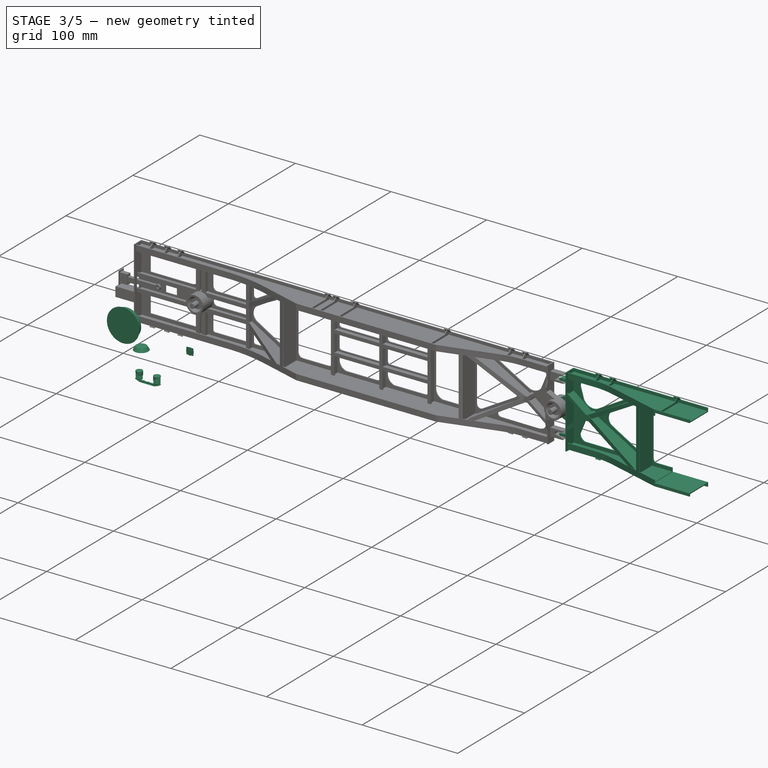
[diagram: stage 3 of 5 — iso view after this stage's code; geometry added in this stage tinted green]
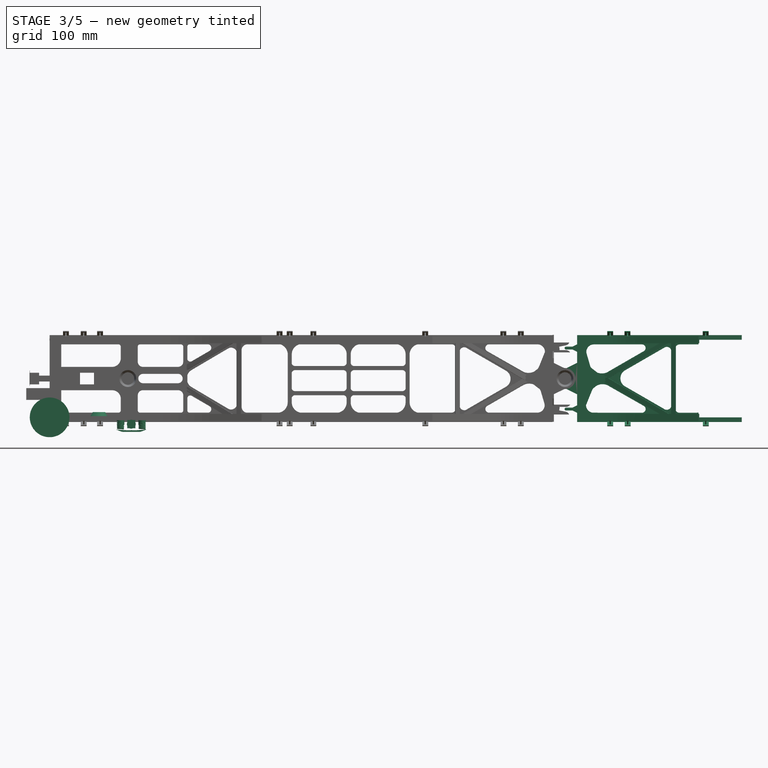
[diagram: stage 3 of 5 — front view after this stage's code; geometry added in this stage tinted green]
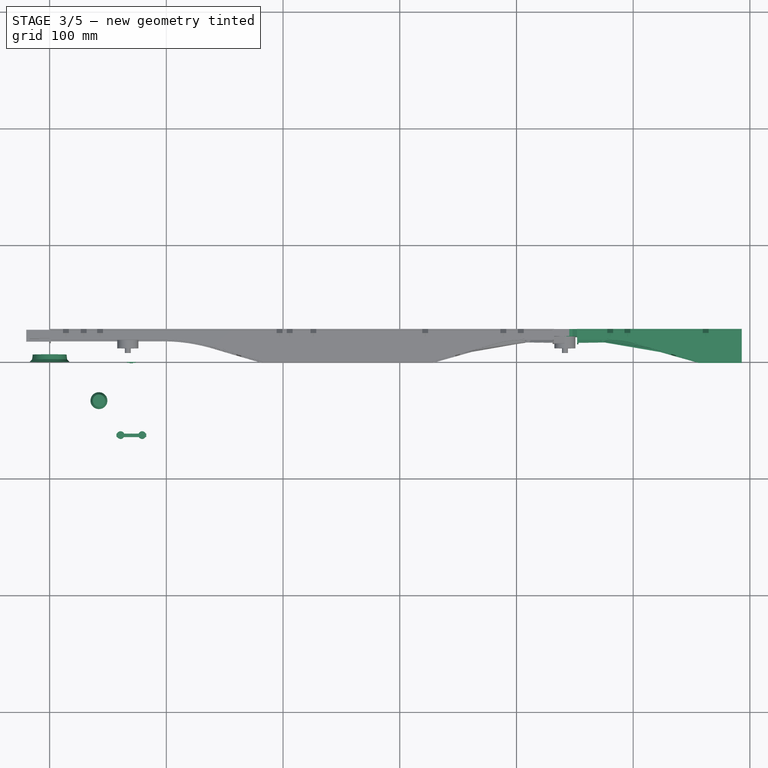
[diagram: stage 3 of 5 — top view after this stage's code; geometry added in this stage tinted green]
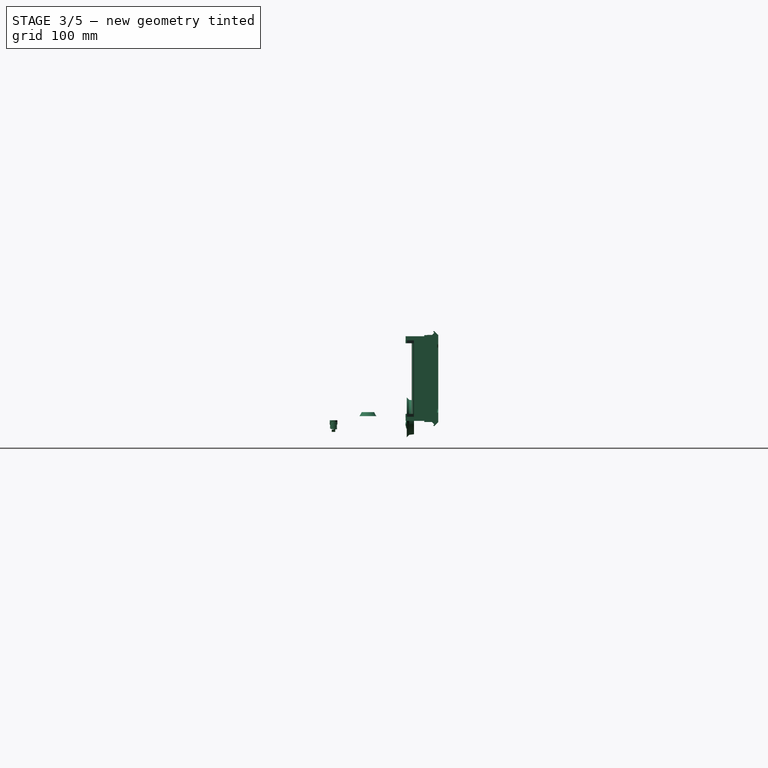
[diagram: stage 3 of 5 — right view after this stage's code; geometry added in this stage tinted green]
FEATURE [Part::Box] Box163  label="Cube136"
  AttacherType = Attacher::AttachEngine3D
  Height = 74.5
  Length = 1
  Placement = pos=(431,15,-4) rot=(0,0,1;0rad)
  Width = 12
FEATURE [Part::Box] Box164  label="Cube137"
  AttacherType = Attacher::AttachEngine3D
  Height = 3
  Length = 57.5
  Placement = pos=(327.7,-1,0) rot=(0,0,1;0.275762rad)
  Width = 1
FEATURE [Part::Box] Box165  label="Cube138"
  AttacherType = Attacher::AttachEngine3D
  Height = 3
  Length = 27
  Placement = pos=(405,17.5,0) rot=(0,0,1;0rad)
  Width = 1
FEATURE [Part::Box] Box166  label="Würfel025"
  AttacherType = Attacher::AttachEngine3D
  Height = 4
  Length = 104
  Placement = pos=(328,26,0) rot=(0,0,1;0rad)
  Width = 1
FEATURE [Part::Box] Box167  label="Cube139"
  AttacherType = Attacher::AttachEngine3D
  Height = 3
  Length = 27
  Placement = pos=(405,17.5,63.5) rot=(0,0,1;0rad)
  Width = 1
FEATURE [Part::Box] Box168  label="Cube140"
  AttacherType = Attacher::AttachEngine3D
  Height = 3
  Length = 57.5
  Placement = pos=(327.7,-1,63.5) rot=(0,0,1;0.275762rad)
  Width = 1
FEATURE [Part::Box] Box169  label="Würfel026"
  AttacherType = Attacher::AttachEngine3D
  Height = 4
  Length = 104
  Placement = pos=(328,26,62.5) rot=(0,0,1;0rad)
  Width = 1
FEATURE [Part::Box] Box170  label="Cube141"
  AttacherType = Attacher::AttachEngine3D
  Height = 66.5
  Length = 1
  Placement = pos=(349,6,0) rot=(0,0,1;0rad)
  Width = 20
FEATURE [Part::Box] Box171  label="Cube142"
  AttacherType = Attacher::AttachEngine3D
  Height = 60.5
  Length = 1
  Placement = pos=(351.5,5.8,3) rot=(0,0,1;1.8675rad)
  Width = 4
FEATURE [Part::Box] Box172  label="Cube143"
  AttacherType = Attacher::AttachEngine3D
  Height = 1
  Length = 27
  Placement = pos=(409.5,16,33.5) rot=(0,1,0;0.663225rad)
  Width = 10
FEATURE [Part::Box] Box173  label="Cube144"
  AttacherType = Attacher::AttachEngine3D
  Height = 1
  Length = 27
  Placement = pos=(410,16,33) rot=(0,-1,0;0.645772rad)
  Width = 10
FEATURE [Part::Cylinder] Cylinder092
  Angle = 360
  AttacherType = Attacher::AttachEngine3D
  FirstAngle = 0
  Height = 10
  Placement = pos=(410,16,33.5) rot=(-1,0,0;1.5708rad)
  Radius = 3
  SecondAngle = 0
FEATURE [Part::Extrusion] Extrude139
  Base = -> Sketch047
  Dir = (0,0,1)
  DirMode = 2
  FaceMakerClass = Part::FaceMakerBullseye
  LengthFwd = 0.5
  LengthRev = 0
  Solid = true
  Symmetric = false
FEATURE [Part::Extrusion] Extrude140
  Base = -> Sketch047
  Dir = (0,0,1)
  DirMode = 2
  FaceMakerClass = Part::FaceMakerBullseye
  LengthFwd = 0.5
  LengthRev = 0
  Placement = pos=(0,0,66) rot=(0,0,1;0rad)
  Solid = true
  Symmetric = false
FEATURE [Part::Extrusion] Extrude141
  Base = -> Sketch049
  Dir = (0,0,1)
  DirMode = 2
  FaceMakerClass = Part::FaceMakerBullseye
  LengthFwd = 3
  LengthRev = 0
  Placement = pos=(-0.5,0,63.5) rot=(0,0,1;0rad)
  Solid = true
  Symmetric = false
FEATURE [Part::Extrusion] Extrude142
  Base = -> Sketch049
  Dir = (0,0,1)
  DirMode = 2
  FaceMakerClass = Part::FaceMakerBullseye
  LengthFwd = 3
  LengthRev = 0
  Placement = pos=(-0.5,0,0) rot=(0,0,1;0rad)
  Solid = true
  Symmetric = false
FEATURE [Part::Extrusion] Extrude143
  Base = -> Sketch050
  Dir = (0,-1,2e-16)
  DirMode = 2
  FaceMakerClass = Part::FaceMakerBullseye
  LengthFwd = 1
  LengthRev = 0
  Placement = pos=(-0.2,27,0) rot=(0,0,1;0rad)
  Solid = true
  Symmetric = false
FEATURE [Part::Extrusion] Extrude144
  Base = -> Sketch052
  Dir = (0,-1,2e-16)
  DirMode = 2
  FaceMakerClass = Part::FaceMakerBullseye
  LengthFwd = 1
  LengthRev = 0
  Placement = pos=(6.79421,-66,1.5) rot=(-0.31561,-0.024839,0.948564;0.20944rad)
  Solid = true
  Symmetric = false
FEATURE [Part::Extrusion] Extrude145
  Base = -> Sketch053
  Dir = (0,0,1)
  DirMode = 2
  FaceMakerClass = Part::FaceMakerBullseye
  LengthFwd = 1
  LengthRev = 0
  Placement = pos=(57.7407,31,-166.515) rot=(0,-1,0;0.514872rad)
  Solid = true
  Symmetric = false
FEATURE [Part::Extrusion] Extrude146
  Base = -> Sketch053
  Dir = (0,0,1)
  DirMode = 2
  FaceMakerClass = Part::FaceMakerBullseye
  LengthFwd = 1
  LengthRev = 0
  Placement = pos=(56.8055,31,232.261) rot=(0,1,0;0.514872rad)
  Solid = true
  Symmetric = false
FEATURE [Part::Extrusion] Extrude147
  Base = -> Sketch055
  Dir = (0,-1,2e-16)
  DirMode = 2
  FaceMakerClass = Part::FaceMakerBullseye
  LengthFwd = 1
  LengthRev = 0
  Placement = pos=(4.01384,-37.72,-1) rot=(-0.410037,-0.04312,0.911049;0.143117rad)
  Solid = true
  Symmetric = false
FEATURE [Part::Extrusion] Extrude148
  Base = -> Sketch056
  Dir = (0,-1,-4e-16)
  DirMode = 2
  FaceMakerClass = Part::FaceMakerBullseye
  LengthFwd = 1
  LengthRev = 0
  Placement = pos=(0,17,0) rot=(0,0,1;0rad)
  Solid = true
  Symmetric = false
FEATURE [Part::Extrusion] Extrude149
  Base = -> Sketch057
  Dir = (0,-1,-3e-16)
  DirMode = 2
  FaceMakerClass = Part::FaceMakerBullseye
  LengthFwd = 1
  LengthRev = 0
  Placement = pos=(0,17,0) rot=(0,0,1;0rad)
  Solid = true
  Symmetric = false
FEATURE [Part::MultiFuse] Fusion150
  Shapes = -> [Box165,Extrude142,Box164]
FEATURE [Part::MultiFuse] Fusion151
  Shapes = -> [Box166,Extrude139,Fusion150]
FEATURE [Part::MultiFuse] Fusion152
  Shapes = -> [Box168,Extrude141,Box167]
FEATURE [Part::MultiFuse] Fusion153
  Shapes = -> [Extrude140,Box169,Fusion152]
FEATURE [Part::MultiFuse] Fusion154
  Shapes = -> [Extrude145,Extrude147,Extrude146,Extrude144,Box170,Box171]
FEATURE [Part::MultiFuse] Fusion155
  Shapes = -> [Cylinder092,Box173,Box172,Extrude149,Extrude148]
FEATURE [Part::MultiFuse] Fusion156
  Shapes = -> [Extrude143,Fusion151,Fusion153,Box163]
FEATURE [Part::MultiFuse] Fusion157
  Placement = pos=(884,0,66.5) rot=(0,1,0;3.14159rad)
  Shapes = -> [Fusion156,Fusion154,Fusion155]
FEATURE [Part::Extrusion] Extrude150
  Base = -> Sketch054
  Dir = (0,1,-2e-16)
  DirMode = 2
  FaceMakerClass = Part::FaceMakerBullseye
  LengthFwd = 6
  LengthRev = 0
  Placement = pos=(884,-3,66.5) rot=(0,1,0;3.14159rad)
  Solid = true
  Symmetric = false
FEATURE [Part::Box] Box207  label="Würfel031"
  AttacherType = Attacher::AttachEngine3D
  Height = 4
  Length = 140
  Placement = pos=(431,26,2.6e-14) rot=(0,1,0;3.14159rad)
  Width = 1
FEATURE [Part::Box] Box208  label="Cube174"
  AttacherType = Attacher::AttachEngine3D
  Height = 5
  Length = 5
  Placement = pos=(319.4,27,-4) rot=(1,0,0;2.35619rad)
  Width = 1
FEATURE [Part::Box] Box209  label="Cube175"
  AttacherType = Attacher::AttachEngine3D
  Height = 3
  Length = 27
  Placement = pos=(405,17.5,-3) rot=(0,0,1;0rad)
  Width = 1
FEATURE [Part::Box] Box210  label="Cube176"
  AttacherType = Attacher::AttachEngine3D
  Height = 3
  Length = 57.5
  Placement = pos=(328,-1,-3) rot=(0,0,1;0.275762rad)
  Width = 1
FEATURE [Part::Box] Box211  label="Cube177"
  AttacherType = Attacher::AttachEngine3D
  Height = 3
  Length = 1
  Placement = pos=(388.2,0,67) rot=(0,0,1;0rad)
  Width = 17
FEATURE [Part::Box] Box212  label="Cube178"
  AttacherType = Attacher::AttachEngine3D
  Height = 3
  Length = 1
  Placement = pos=(403.2,0,67) rot=(0,0,1;0rad)
  Width = 18.7
FEATURE [Part::Box] Box213  label="Cube179"
  AttacherType = Attacher::AttachEngine3D
  Height = 5
  Length = 5
  Placement = pos=(386.4,27,-4) rot=(1,0,0;2.35619rad)
  Width = 1
FEATURE [Part::Box] Box214  label="Cube180"
  AttacherType = Attacher::AttachEngine3D
  Height = 5
  Length = 5
  Placement = pos=(401.2,27,-4) rot=(1,0,0;2.35619rad)
  Width = 1
FEATURE [Part::Box] Box215  label="Würfel032"
  AttacherType = Attacher::AttachEngine3D
  Height = 3
  Length = 37
  Placement = pos=(291,-1,-3) rot=(0,0,1;0rad)
  Width = 1
FEATURE [Part::Box] Box216  label="Cube181"
  AttacherType = Attacher::AttachEngine3D
  Height = 1
  Length = 37
  Placement = pos=(291,0,-1) rot=(0,0,1;0rad)
  Width = 26
FEATURE [Part::Extrusion] Extrude170
  Base = -> Sketch047
  Dir = (0,0,1)
  DirMode = 2
  FaceMakerClass = Part::FaceMakerBullseye
  LengthFwd = 1
  LengthRev = 0
  Placement = pos=(0,0,-1) rot=(0,0,1;0rad)
  Solid = true
  Symmetric = false
FEATURE [Part::Extrusion] Extrude171
  Base = -> Sketch049
  Dir = (0,0,1)
  DirMode = 2
  FaceMakerClass = Part::FaceMakerBullseye
  LengthFwd = 3
  LengthRev = 0
  Placement = pos=(-0.5,0,-3) rot=(0,0,1;0rad)
  Solid = true
  Symmetric = false
FEATURE [Part::Extrusion] Extrude172
  Base = -> Sketch059
  Dir = (1,0,0)
  DirMode = 2
  FaceMakerClass = Part::FaceMakerBullseye
  LengthFwd = 1
  LengthRev = 0
  Placement = pos=(322.35,0,66.5) rot=(0,1,0;3.14159rad)
  Solid = true
  Symmetric = false
FEATURE [Part::Extrusion] Extrude173
  Base = -> Sketch059
  Dir = (1,0,0)
  DirMode = 2
  FaceMakerClass = Part::FaceMakerBullseye
  LengthFwd = 1
  LengthRev = 0
  Placement = pos=(388.2,0,0) rot=(0,0,1;0rad)
  Solid = true
  Symmetric = false
FEATURE [Part::Cut] Cut022
  Base = -> Extrude173
  Placement = pos=(777.5,0,66.5) rot=(0,1,0;3.14159rad)
  Tool = -> Box211
FEATURE [Part::Extrusion] Extrude174
  Base = -> Sketch059
  Dir = (1,0,0)
  DirMode = 2
  FaceMakerClass = Part::FaceMakerBullseye
  LengthFwd = 1
  LengthRev = 0
  Placement = pos=(403.2,0,0) rot=(0,0,1;0rad)
  Solid = true
  Symmetric = false
FEATURE [Part::Cut] Cut023
  Base = -> Extrude174
  Placement = pos=(807.4,0,66.5) rot=(0,1,0;3.14159rad)
  Tool = -> Box212
FEATURE [Part::MultiFuse] Fusion184
  Placement = pos=(884,0,66.5) rot=(0,1,0;3.14159rad)
  Shapes = -> [Box209,Extrude171,Box210,Box207,Box215,Box216,Extrude170,Box214,Box213,Box208,Extrude172,Cut022,Cut023]
FEATURE [Part::Box] Box217  label="Cube182"
  AttacherType = Attacher::AttachEngine3D
  Height = 3
  Length = 27
  Placement = pos=(405,17.5,66.5) rot=(0,0,1;0rad)
  Width = 1
FEATURE [Part::Box] Box218  label="Cube183"
  AttacherType = Attacher::AttachEngine3D
  Height = 3
  Length = 57.7
  Placement = pos=(327.7,-1,66.5) rot=(0,0,1;0.275762rad)
  Width = 1
FEATURE [Part::Box] Box219  label="Würfel033"
  AttacherType = Attacher::AttachEngine3D
  Height = 4
  Length = 140
  Placement = pos=(291,26,66.5) rot=(0,0,1;0rad)
  Width = 1
FEATURE [Part::Box] Box220  label="Cube184"
  AttacherType = Attacher::AttachEngine3D
  Height = 3
  Length = 1
  Placement = pos=(403.2,0,67) rot=(0,0,1;0rad)
  Width = 18.7
FEATURE [Part::Box] Box221  label="Cube185"
  AttacherType = Attacher::AttachEngine3D
  Height = 3
  Length = 1
  Placement = pos=(388.2,0,67) rot=(0,0,1;0rad)
  Width = 17
FEATURE [Part::Box] Box222  label="Cube186"
  AttacherType = Attacher::AttachEngine3D
  Height = 5
  Length = 5
  Placement = pos=(319.3,26.2,69.9) rot=(1,0,0;0.785398rad)
  Width = 1
FEATURE [Part::Box] Box223  label="Cube187"
  AttacherType = Attacher::AttachEngine3D
  Height = 5
  Length = 5
  Placement = pos=(386.2,26.2,69.9) rot=(1,0,0;0.785398rad)
  Width = 1
FEATURE [Part::Box] Box224  label="Cube188"
  AttacherType = Attacher::AttachEngine3D
  Height = 5
  Length = 5
  Placement = pos=(401.2,26.2,69.9) rot=(1,0,0;0.785398rad)
  Width = 1
FEATURE [Part::Box] Box225  label="Würfel034"
  AttacherType = Attacher::AttachEngine3D
  Height = 3
  Length = 37
  Placement = pos=(291,-1,66.5) rot=(0,0,1;0rad)
  Width = 1
FEATURE [Part::Box] Box226  label="Cube189"
  AttacherType = Attacher::AttachEngine3D
  Height = 1
  Length = 37
  Placement = pos=(291,0,66.5) rot=(0,0,1;0rad)
  Width = 26
FEATURE [Part::Extrusion] Extrude175
  Base = -> Sketch049
  Dir = (0,0,1)
  DirMode = 2
  FaceMakerClass = Part::FaceMakerBullseye
  LengthFwd = 3
  LengthRev = 0
  Placement = pos=(-0.5,0,66.5) rot=(0,0,1;0rad)
  Solid = true
  Symmetric = false
FEATURE [Part::Extrusion] Extrude176
  Base = -> Sketch059
  Dir = (1,0,0)
  DirMode = 2
  FaceMakerClass = Part::FaceMakerBullseye
  LengthFwd = 1
  LengthRev = 0
  Placement = pos=(321.35,0,0) rot=(0,0,1;0rad)
  Solid = true
  Symmetric = false
FEATURE [Part::Extrusion] Extrude177
  Base = -> Sketch059
  Dir = (1,0,0)
  DirMode = 2
  FaceMakerClass = Part::FaceMakerBullseye
  LengthFwd = 1
  LengthRev = 0
  Placement = pos=(388.2,0,0) rot=(0,0,1;0rad)
  Solid = true
  Symmetric = false
FEATURE [Part::Cut] Cut025
  Base = -> Extrude177
  Tool = -> Box221
FEATURE [Part::Extrusion] Extrude178
  Base = -> Sketch059
  Dir = (1,0,0)
  DirMode = 2
  FaceMakerClass = Part::FaceMakerBullseye
  LengthFwd = 1
  LengthRev = 0
  Placement = pos=(403.2,0,0) rot=(0,0,1;0rad)
  Solid = true
  Symmetric = false
FEATURE [Part::Cut] Cut024
  Base = -> Extrude178
  Tool = -> Box220
FEATURE [Part::MultiFuse] Fusion185
  Placement = pos=(884,0,66.5) rot=(0,1,0;3.14159rad)
  Shapes = -> [Box225,Box226,Box219,Extrude179,Box218,Extrude175,Box217,Extrude176,Box222,Cut025,Box223,Cut024,Box224]
FEATURE [Part::Box] Box066  label="Cube203"
  AttacherType = Attacher::AttachEngine3D
  Height = 7
  Length = 7
  Placement = pos=(66.5,-0.5,-9.3) rot=(0,0,1;0rad)
  Width = 0.5
FEATURE [Part::Box] Box067  label="Cube067"
  AttacherType = Attacher::AttachEngine3D
  Height = 1.3
  Length = 0.5
  Placement = pos=(69.75,-64.3,-12.25) rot=(0,0,1;0rad)
  Width = 1
FEATURE [Part::Box] Box068  label="Cube068"
  AttacherType = Attacher::AttachEngine3D
  Height = 1.3
  Length = 0.5
  Placement = pos=(64.75,-64.3,-12.25) rot=(0,0,1;0rad)
  Width = 1
FEATURE [Part::Box] Box069  label="Cube069"
  AttacherType = Attacher::AttachEngine3D
  Height = 1.3
  Length = 0.5
  Placement = pos=(74.75,-64.3,-12.25) rot=(0,0,1;0rad)
  Width = 1
FEATURE [Part::Box] Box070  label="Cube070"
  AttacherType = Attacher::AttachEngine3D
  Height = 1.4
  Length = 0.5
  Placement = pos=(61.75,-64.3,-12.15) rot=(0,0,1;0rad)
  Width = 1
FEATURE [Part::Box] Box071  label="Cube071"
  AttacherType = Attacher::AttachEngine3D
  Height = 1.4
  Length = 0.5
  Placement = pos=(77.65,-64.3,-12.15) rot=(0,0,1;0rad)
  Width = 1
FEATURE [Part::Box] Box232  label="Cube204"
  AttacherType = Attacher::AttachEngine3D
  Height = 1.3
  Length = 0.5
  Placement = pos=(69.75,-64.4,-12.25) rot=(0,0,1;0rad)
  Width = 1
FEATURE [Part::Box] Box233  label="Cube205"
  AttacherType = Attacher::AttachEngine3D
  Height = 1.3
  Length = 0.5
  Placement = pos=(64.75,-64.4,-12.25) rot=(0,0,1;0rad)
  Width = 1
FEATURE [Part::Box] Box234  label="Cube074"
  AttacherType = Attacher::AttachEngine3D
  Height = 1.3
  Length = 0.5
  Placement = pos=(74.75,-64.4,-12.25) rot=(0,0,1;0rad)
  Width = 1
FEATURE [Part::Box] Box235  label="Cube075"
  AttacherType = Attacher::AttachEngine3D
  Height = 1.4
  Length = 0.5
  Placement = pos=(61.75,-64.4,-12.15) rot=(0,0,1;0rad)
  Width = 1
FEATURE [Part::Box] Box236  label="Cube076"
  AttacherType = Attacher::AttachEngine3D
  Height = 1.4
  Length = 0.5
  Placement = pos=(77.65,-64.4,-12.15) rot=(0,0,1;0rad)
  Width = 1
FEATURE [Part::Cylinder] Cylinder107
  Angle = 360
  AttacherType = Attacher::AttachEngine3D
  FirstAngle = 0
  Height = 0.3
  Placement = pos=(70,-0.8,-5.7) rot=(1,0,0;1.5708rad)
  Radius = 1.4
  SecondAngle = 0
FEATURE [Part::Cylinder] Cylinder108
  Angle = 360
  AttacherType = Attacher::AttachEngine3D
  FirstAngle = 0
  Height = 0.3
  Placement = pos=(70,-0.5,-5.7) rot=(1,0,0;1.5708rad)
  Radius = 3
  SecondAngle = 0
FEATURE [Part::Cylinder] Cylinder109
  Angle = 360
  AttacherType = Attacher::AttachEngine3D
  FirstAngle = 0
  Height = 0.5
  Placement = pos=(70,0,-5.85) rot=(1,0,0;1.5708rad)
  Radius = 3.8
  SecondAngle = 0
FEATURE [Part::Cylinder] Cylinder110
  Angle = 360
  AttacherType = Attacher::AttachEngine3D
  FirstAngle = 0
  Height = 4
  Placement = pos=(79.3,-62.75,-2.5) rot=(0,1,0;3.14159rad)
  Radius = 3.3
  SecondAngle = 0
FEATURE [Part::Cylinder] Cylinder111
  Angle = 360
  AttacherType = Attacher::AttachEngine3D
  FirstAngle = 0
  Height = 3
  Placement = pos=(79.6864,-62.75,-5.0153) rot=(0,-1,0;3.76991rad)
  Radius = 4.3
  SecondAngle = 0
FEATURE [Part::Cut] Cut075
  Base = -> Cylinder110
  Tool = -> Cylinder111
FEATURE [Part::Cylinder] Cylinder112
  Angle = 360
  AttacherType = Attacher::AttachEngine3D
  FirstAngle = 0
  Height = 4
  Placement = pos=(79.3,-62.75,-2.5) rot=(0,1,0;3.14159rad)
  Radius = 3.3
  SecondAngle = 0
FEATURE [Part::Cylinder] Cylinder113
  Angle = 360
  AttacherType = Attacher::AttachEngine3D
  FirstAngle = 0
  Height = 3
  Placement = pos=(79.6864,-62.75,-5.0153) rot=(0,-1,0;3.76991rad)
  Radius = 4.3
  SecondAngle = 0
FEATURE [Part::Cut] Cut076
  Base = -> Cylinder112
  Placement = pos=(140.1,-125.5,0) rot=(0,0,1;3.14159rad)
  Tool = -> Cylinder113
FEATURE [Part::Cylinder] Cylinder114
  Angle = 360
  AttacherType = Attacher::AttachEngine3D
  FirstAngle = 0
  Height = 7
  Placement = pos=(60.7,-62.75,-10) rot=(0,0,1;0rad)
  Radius = 2.3
  SecondAngle = 0
FEATURE [Part::Cylinder] Cylinder115
  Angle = 360
  AttacherType = Attacher::AttachEngine3D
  FirstAngle = 0
  Height = 7
  Placement = pos=(79.3,-62.75,-10) rot=(0,0,1;0rad)
  Radius = 2.3
  SecondAngle = 0
FEATURE [Part::MultiFuse] Fusion070
  Shapes = -> [Cylinder109,Box066,Cylinder108,Cylinder107]
FEATURE [Part::MultiFuse] Fusion071
  Shapes = -> [Box067,Box068,Box069,Box070,Box071]
FEATURE [Part::MultiFuse] Fusion072
  Placement = pos=(0,2.1,0) rot=(0,0,1;0rad)
  Shapes = -> [Box232,Box233,Box234,Box235,Box236]
FEATURE [Sketcher::SketchObject] Sketch003
  FullyConstrained = false
  Placement = pos=(0,0,0) rot=(1,0,0;1.5708rad)
  sketch-geometry (4):
    g0: LineSegment StartX=1.91987 StartY=-28.0904 StartZ=0 EndX=1.91987 EndY=-35.3404 EndZ=0
    g1: LineSegment StartX=5.41987 StartY=-35.3404 StartZ=0 EndX=5.41987 EndY=-30.0904 EndZ=0
    g2: LineSegment StartX=5.41987 StartY=-30.0904 StartZ=0 EndX=1.91987 EndY=-28.0904 EndZ=0
    g3: LineSegment StartX=1.91987 StartY=-35.3404 StartZ=0 EndX=5.41987 EndY=-35.3404 EndZ=0
  constraints (10):
    c: Vertical(g0)
    c: Vertical(g1)
    c: Coincident(g1,g2)
    c: Coincident(g2,g0)
    c: DistanceX(g0,g1) = 3.5
    c: DistanceY(g0,g0) = 7.25
    c: DistanceY(g1,g1) = 5.25
    c: Coincident(g3,g0)
    c: Coincident(g3,g1)
    c: Horizontal(g3)
FEATURE [Part::Revolution] Revolve004
  Angle = 360
  Axis = (1,0,0)
  AxisLink = -> Sketch003 [Edge2]
  Base = (5.41987,-7.8e-15,-35.3404)
  FaceMakerClass = Part::FaceMakerBullseye
  Placement = pos=(6.9,-33.3,-0.9) rot=(0,-1,0;1.5708rad)
  Solid = true
  Source = -> Sketch003
  Symmetric = false
FEATURE [Sketcher::SketchObject] Sketch005
  FullyConstrained = true
  sketch-geometry (9):
    g0: LineSegment StartX=0 StartY=0 StartZ=0 EndX=17 EndY=0 EndZ=0
    g1: LineSegment StartX=17 StartY=0 StartZ=0 EndX=15 EndY=2 EndZ=0
    g2: LineSegment StartX=15 StartY=2 StartZ=0 EndX=14.5 EndY=6.2 EndZ=0
    g3: LineSegment StartX=14.5 StartY=6.2 StartZ=0 EndX=12.8 EndY=6.2 EndZ=0
    g4: LineSegment StartX=12.8 StartY=6.2 StartZ=0 EndX=12.5 EndY=5.25 EndZ=0
    g5: LineSegment StartX=12.5 StartY=5.25 StartZ=0 EndX=6.5 EndY=5.25 EndZ=0
    g6: LineSegment StartX=6.5 StartY=5.25 StartZ=0 EndX=4.5 EndY=5.5 EndZ=0
    g7: LineSegment StartX=4.5 StartY=5.5 StartZ=0 EndX=0 EndY=5.5 EndZ=0
    g8: LineSegment StartX=0 StartY=5.5 StartZ=0 EndX=0 EndY=0 EndZ=0
  constraints (26):
    c: Coincident(g-1,g0)
    c: PointOnObject(g0,g-1)
    c: Coincident(g0,g1)
    c: Coincident(g1,g2)
    c: Coincident(g2,g3)
    c: Horizontal(g3)
    c: Coincident(g3,g4)
    c: Coincident(g4,g5)
    c: Horizontal(g5)
    c: Coincident(g5,g6)
    c: Coincident(g6,g7)
    c: PointOnObject(g7,g-2)
    c: Horizontal(g7)
    c: Coincident(g7,g8)
    c: Coincident(g8,g0)
    c: DistanceX(g0,g0) = 17
    c: DistanceX(g0,g1) = 15
    c: DistanceY(g0,g1) = 2
    c: DistanceY(g0,g2) = 6.2
    c: DistanceX(g3,g2) = 1.7
    c: DistanceX(g0,g2) = 14.5
    c: DistanceY(g0,g7) = 5.5
    c: DistanceY(g0,g5) = 5.25
    c: DistanceX(g0,g4) = 12.5
    c: DistanceX(g7,g6) = 4.5
    c: DistanceX(g6,g5) = 2
FEATURE [Part::Revolution] Revolve005
  Angle = 360
  Axis = (0,-1,0)
  AxisLink = -> Sketch005 [Edge9]
  Base = (0,0,0)
  FaceMakerClass = Part::FaceMakerBullseye
  Solid = true
  Source = -> Sketch005
  Symmetric = false
FEATURE [Part::Revolution] Revolve006
  Angle = 360
  Axis = (0,-1,0)
  AxisLink = -> Sketch005 [Edge9]
  Base = (0,0,0)
  FaceMakerClass = Part::FaceMakerBullseye
  Solid = true
  Source = -> Sketch005
  Symmetric = false
FEATURE [Part::Revolution] Revolve007
  Angle = 360
  Axis = (0,-1,0)
  AxisLink = -> Sketch005 [Edge9]
  Base = (0,0,0)
  FaceMakerClass = Part::FaceMakerBullseye
  Solid = true
  Source = -> Sketch005
  Symmetric = false
FEATURE [Part::Revolution] Revolve008
  Angle = 360
  Axis = (0,-1,0)
  AxisLink = -> Sketch005 [Edge9]
  Base = (0,0,0)
  FaceMakerClass = Part::FaceMakerBullseye
  Solid = true
  Source = -> Sketch005
  Symmetric = false
FEATURE [Part::Extrusion] Extrude091
  Base = -> Sketch021
  Dir = (0,-1,-3e-16)
  DirMode = 2
  FaceMakerClass = Part::FaceMakerBullseye
  LengthFwd = 3
  LengthRev = 0
  Placement = pos=(0,-61.3,0.05) rot=(0,0,1;0rad)
  Solid = true
  Symmetric = false
FEATURE [Sketcher::SketchObject] Sketch064
  FullyConstrained = true
  Placement = pos=(0,0,0) rot=(1,0,0;1.5708rad)
  sketch-geometry (1):
    g0: Circle CenterX=2.6 CenterY=0 CenterZ=0 NormalX=0 NormalY=0 NormalZ=1 AngleXU=0 Radius=0.5
  constraints (3):
    c: PointOnObject(g0,g-1)
    c: DistanceX(g-1,g0) = 2.6
    c: Radius(g0) = 0.5
FEATURE [Sketcher::SketchObject] Sketch044
  FullyConstrained = true
  Placement = pos=(0,0,0) rot=(1,0,0;1.5708rad)
  sketch-geometry (1):
    g0: Circle CenterX=2.6 CenterY=0 CenterZ=0 NormalX=0 NormalY=0 NormalZ=1 AngleXU=0 Radius=0.5
  constraints (3):
    c: PointOnObject(g0,g-1)
    c: DistanceX(g-1,g0) = 2.6
    c: Radius(g0) = 0.5
FEATURE [Sketcher::SketchObject] Sketch065
  FullyConstrained = false
  Placement = pos=(0,0,0) rot=(1,0,0;1.5708rad)
  sketch-geometry (8):
    g0: LineSegment StartX=57.2515 StartY=-10.4088 StartZ=0 EndX=64.9577 EndY=-11.0088 EndZ=0
    g1: LineSegment StartX=64.9577 StartY=-11.0088 StartZ=0 EndX=74.9577 EndY=-11.0088 EndZ=0
    g2: LineSegment StartX=74.9577 StartY=-11.0088 StartZ=0 EndX=82.7636 EndY=-10.4005 EndZ=0
    g3: LineSegment StartX=82.7636 StartY=-10.4005 StartZ=0 EndX=78.2616 EndY=-12.0375 EndZ=0
    g4: LineSegment StartX=78.2616 StartY=-12.0375 StartZ=0 EndX=77.0136 EndY=-12.2588 EndZ=0
    g5: LineSegment StartX=77.0136 StartY=-12.2588 StartZ=0 EndX=63.0015 EndY=-12.2588 EndZ=0
    g6: LineSegment StartX=63.0015 StartY=-12.2588 StartZ=0 EndX=61.6444 EndY=-12.0271 EndZ=0
    g7: LineSegment StartX=61.6444 StartY=-12.0271 StartZ=0 EndX=57.2515 EndY=-10.4088 EndZ=0
  constraints (15):
    c: Coincident(g0,g1)
    c: Horizontal(g1)
    c: Coincident(g1,g2)
    c: Coincident(g2,g3)
    c: Coincident(g3,g4)
    c: Coincident(g4,g5)
    c: Horizontal(g5)
    c: Coincident(g5,g6)
    c: Coincident(g6,g7)
    c: Coincident(g7,g0)
    c: DistanceY(g5,g0) = 1.85
    c: DistanceX(g0,g5) = 5.75
    c: DistanceX(g4,g2) = 5.75
    c: DistanceX(g0,g1) = 10
    c: DistanceY(g0,g0) = 0.6
FEATURE [Part::Extrusion] Extrude090
  Base = -> Sketch065
  Dir = (0,-1,-6e-16)
  DirMode = 2
  FaceMakerClass = Part::FaceMakerBullseye
  LengthFwd = 1
  LengthRev = 0
  Placement = pos=(0,-62.3,0) rot=(0,0,1;0rad)
  Solid = true
  Symmetric = false
FEATURE [Part::MultiFuse] Fusion075  label="Kufe003"
  Shapes = -> [Extrude091,Fusion071,Extrude090,Fusion072]
FEATURE [Sketcher::SketchObject] Sketch066
  FullyConstrained = true
  Placement = pos=(0,0,0) rot=(1,0,0;1.5708rad)
  sketch-geometry (1):
    g0: Circle CenterX=2.6 CenterY=0 CenterZ=0 NormalX=0 NormalY=0 NormalZ=1 AngleXU=0 Radius=0.5
  constraints (3):
    c: PointOnObject(g0,g-1)
    c: DistanceX(g-1,g0) = 2.6
    c: Radius(g0) = 0.5
FEATURE [Sketcher::SketchObject] Sketch067
  FullyConstrained = true
  Placement = pos=(0,0,0) rot=(1,0,0;1.5708rad)
  sketch-geometry (1):
    g0: Circle CenterX=2.6 CenterY=0 CenterZ=0 NormalX=0 NormalY=0 NormalZ=1 AngleXU=0 Radius=0.5
  constraints (3):
    c: PointOnObject(g0,g-1)
    c: DistanceX(g-1,g0) = 2.6
    c: Radius(g0) = 0.5
FEATURE [Part::Sweep] Sweep
  Frenet = true
  Placement = pos=(60.7,-62.75,-9.9) rot=(0,0,1;0rad)
  Sections = -> [Sketch013]
  Solid = true
  Spine = -> Helix [Edge1]
  Transition = 1
FEATURE [Part::Sweep] Sweep001
  Frenet = true
  Placement = pos=(79.3,-62.75,-9.9) rot=(0,0,1;0rad)
  Sections = -> [Sketch014]
  Solid = true
  Spine = -> Helix001 [Edge1]
  Transition = 1
FEATURE [Part::Sweep] Sweep004
  Frenet = true
  Placement = pos=(60.7,-62.75,-9.9) rot=(0,0,1;0rad)
  Sections = -> [Sketch030]
  Solid = true
  Spine = -> Helix004 [Edge1]
  Transition = 1
FEATURE [Part::Sweep] Sweep005
  Frenet = true
  Placement = pos=(79.3,-62.75,-9.9) rot=(0,0,1;0rad)
  Sections = -> [Sketch014]
  Solid = true
  Spine = -> Helix005 [Edge1]
  Transition = 1
FEATURE [Part::Sweep] Sweep006
  Frenet = true
  Placement = pos=(60.7,-62.75,-9.9) rot=(0,0,1;0rad)
  Sections = -> [Sketch044]
  Solid = true
  Spine = -> Helix006 [Edge1]
  Transition = 1
FEATURE [Part::Sweep] Sweep007
  Frenet = true
  Placement = pos=(79.3,-62.75,-9.9) rot=(0,0,1;0rad)
  Sections = -> [Sketch064]
  Solid = true
  Spine = -> Helix007 [Edge1]
  Transition = 1
FEATURE [Part::Sweep] Sweep008
  Frenet = true
  Placement = pos=(60.7,-62.75,-9.9) rot=(0,0,1;0rad)
  Sections = -> [Sketch067]
  Solid = true
  Spine = -> Helix008 [Edge1]
  Transition = 1
FEATURE [Part::MultiFuse] Fusion073
  Shapes = -> [Cut076,Sweep008,Cylinder114]
FEATURE [Part::Sweep] Sweep009
  Frenet = true
  Placement = pos=(79.3,-62.75,-9.9) rot=(0,0,1;0rad)
  Sections = -> [Sketch066]
  Solid = true
  Spine = -> Helix009 [Edge1]
  Transition = 1
FEATURE [Part::MultiFuse] Fusion074
  Shapes = -> [Sweep009,Cylinder115,Cut075]
FEATURE [Sketcher::SketchObject] Sketch070
  FullyConstrained = false
  Placement = pos=(0,0,0) rot=(1,0,0;1.5708rad)
  sketch-geometry (6):
    g0: LineSegment StartX=442.483 StartY=58.0929 StartZ=0 EndX=447.983 EndY=58.0929 EndZ=0
    g1: LineSegment StartX=447.983 StartY=58.0929 StartZ=0 EndX=451.983 EndY=56.0929 EndZ=0
    g2: LineSegment StartX=451.983 StartY=56.0929 StartZ=0 EndX=451.983 EndY=62.5929 EndZ=0
    g3: LineSegment StartX=451.983 StartY=62.5929 StartZ=0 EndX=447.983 EndY=60.5929 EndZ=0
    g4: LineSegment StartX=447.983 StartY=60.5929 StartZ=0 EndX=442.483 EndY=60.5929 EndZ=0
    g5: ArcOfCircle CenterX=442.483 CenterY=59.3429 CenterZ=0 NormalX=0 NormalY=0 NormalZ=1 AngleXU=0 Radius=1.25 StartAngle=1.5708 EndAngle=4.71239
  constraints (17):
    c: Horizontal(g0)
    c: Coincident(g0,g1)
    c: Coincident(g1,g2)
    c: Vertical(g2)
    c: Coincident(g2,g3)
    c: Coincident(g3,g4)
    c: Horizontal(g4)
    c: Coincident(g5,g4)
    c: Coincident(g5,g0)
    c: Vertical(g5,g0)
    c: Vertical(g0,g4)
    c: Radius(g5) = 1.25
    c: DistanceX(g0,g0) = 5.5
    c: Vertical(g0,g3)
    c: DistanceX(g0,g1) = 4
    c: DistanceY(g1,g0) = 2
    c: DistanceY(g3,g2) = 2
FEATURE [Part::Extrusion] Extrude184
  Base = -> Sketch070
  Dir = (0,-1,-3e-16)
  DirMode = 2
  FaceMakerClass = Part::FaceMakerBullseye
  LengthFwd = 6
  LengthRev = 0
  Placement = pos=(0,27,0) rot=(0,0,1;0rad)
  Solid = true
  Symmetric = false
FEATURE [Part::Extrusion] Extrude185
  Base = -> Sketch070
  Dir = (0,-1,-3e-16)
  DirMode = 2
  FaceMakerClass = Part::FaceMakerBullseye
  LengthFwd = 6
  LengthRev = 0
  Placement = pos=(0,27,-52.25) rot=(0,0,1;0rad)
  Solid = true
  Symmetric = false
FEATURE [Part::MultiFuse] Fusion199
  Shapes = -> [Fusion157,Fusion184,Fusion185]
FEATURE [Part::MultiFuse] Fusion200  label="short-end-car2"
  Shapes = -> [Fusion199,Extrude185,Extrude184,Extrude150,Fusion205]
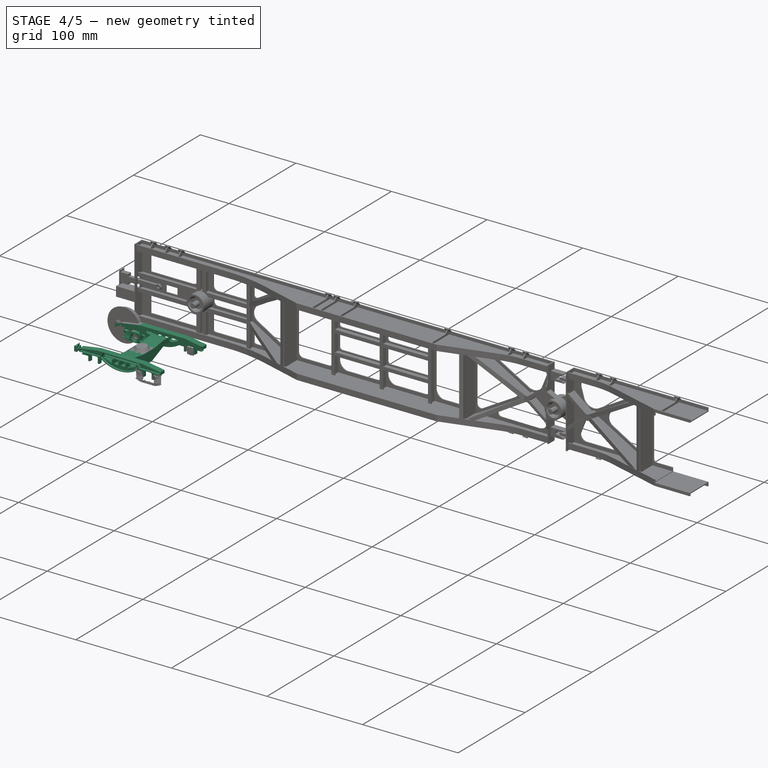
[diagram: stage 4 of 5 — iso view after this stage's code; geometry added in this stage tinted green]
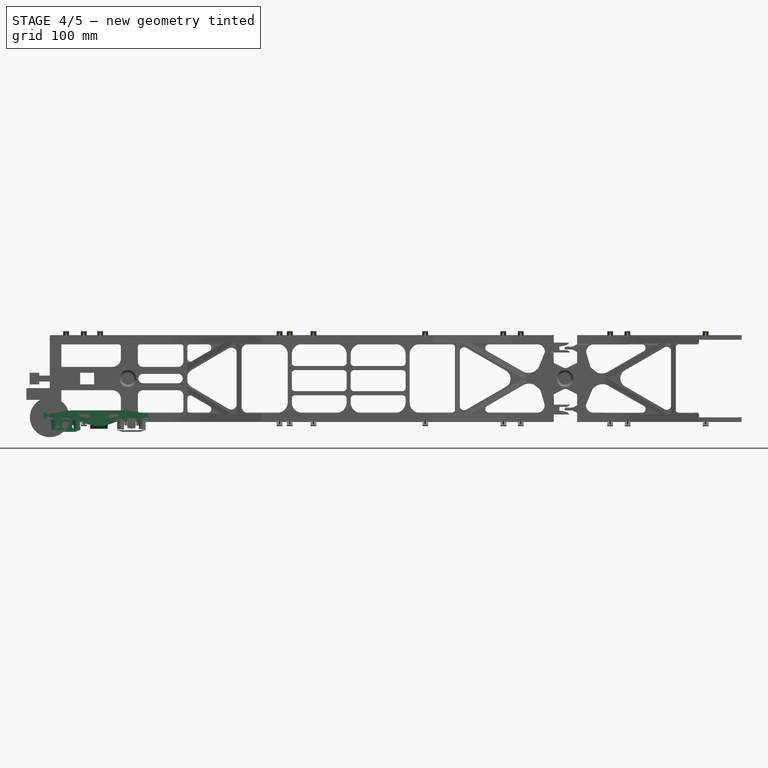
[diagram: stage 4 of 5 — front view after this stage's code; geometry added in this stage tinted green]
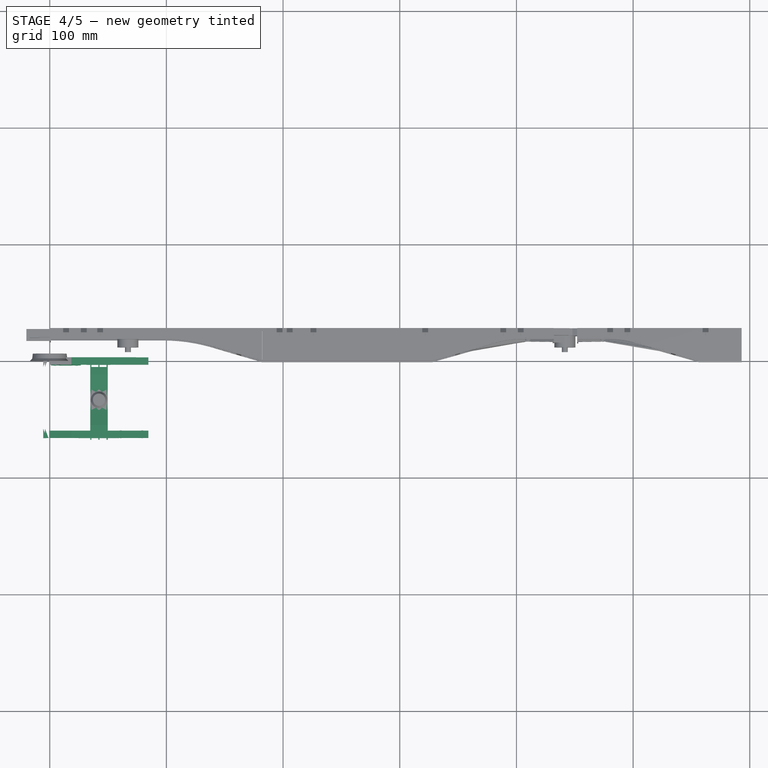
[diagram: stage 4 of 5 — top view after this stage's code; geometry added in this stage tinted green]
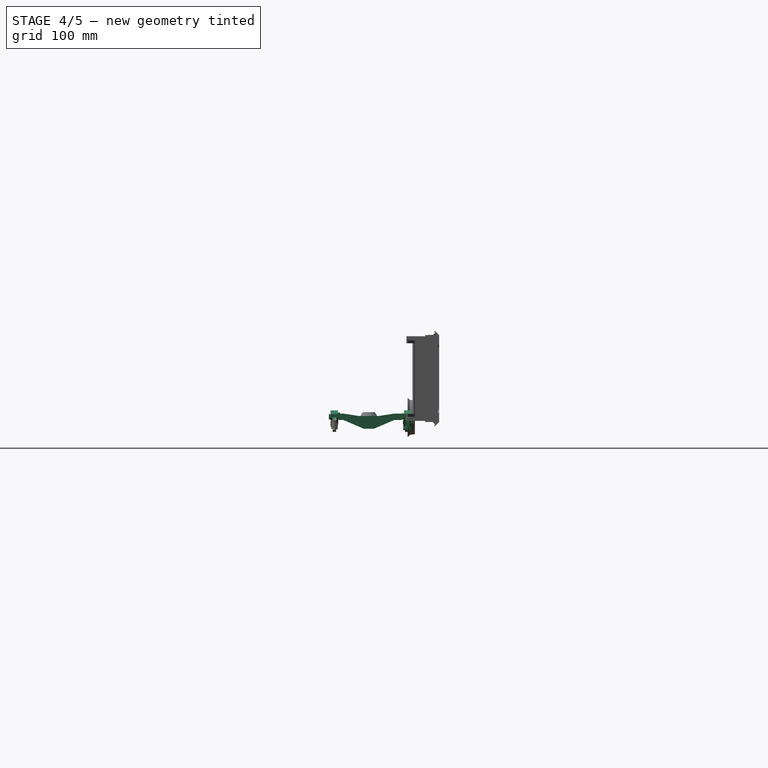
[diagram: stage 4 of 5 — right view after this stage's code; geometry added in this stage tinted green]
FEATURE [Part::Box] Box044  label="Cube044"
  AttacherType = Attacher::AttachEngine3D
  Height = 7
  Length = 7
  Placement = pos=(66.5,-0.5,-9.3) rot=(0,0,1;0rad)
  Width = 0.5
FEATURE [Part::Box] Box045  label="Cube045"
  AttacherType = Attacher::AttachEngine3D
  Height = 1.3
  Length = 0.5
  Placement = pos=(69.75,-64.3,-12.25) rot=(0,0,1;0rad)
  Width = 1
FEATURE [Part::Box] Box046  label="Cube046"
  AttacherType = Attacher::AttachEngine3D
  Height = 1.3
  Length = 0.5
  Placement = pos=(64.75,-64.3,-12.25) rot=(0,0,1;0rad)
  Width = 1
FEATURE [Part::Box] Box230  label="Cube047"
  AttacherType = Attacher::AttachEngine3D
  Height = 1.3
  Length = 0.5
  Placement = pos=(74.75,-64.3,-12.25) rot=(0,0,1;0rad)
  Width = 1
FEATURE [Part::Box] Box048  label="Cube048"
  AttacherType = Attacher::AttachEngine3D
  Height = 1.4
  Length = 0.5
  Placement = pos=(61.75,-64.3,-12.15) rot=(0,0,1;0rad)
  Width = 1
FEATURE [Part::Box] Box049  label="Cube049"
  AttacherType = Attacher::AttachEngine3D
  Height = 1.4
  Length = 0.5
  Placement = pos=(77.65,-64.3,-12.15) rot=(0,0,1;0rad)
  Width = 1
FEATURE [Part::Box] Box231  label="Cube050"
  AttacherType = Attacher::AttachEngine3D
  Height = 1.3
  Length = 0.5
  Placement = pos=(69.75,-64.4,-12.25) rot=(0,0,1;0rad)
  Width = 1
FEATURE [Part::Box] Box051  label="Cube051"
  AttacherType = Attacher::AttachEngine3D
  Height = 1.3
  Length = 0.5
  Placement = pos=(64.75,-64.4,-12.25) rot=(0,0,1;0rad)
  Width = 1
FEATURE [Part::Box] Box052  label="Cube052"
  AttacherType = Attacher::AttachEngine3D
  Height = 1.3
  Length = 0.5
  Placement = pos=(74.75,-64.4,-12.25) rot=(0,0,1;0rad)
  Width = 1
FEATURE [Part::Box] Box053  label="Cube053"
  AttacherType = Attacher::AttachEngine3D
  Height = 1.4
  Length = 0.5
  Placement = pos=(61.75,-64.4,-12.15) rot=(0,0,1;0rad)
  Width = 1
FEATURE [Part::Box] Box054  label="Cube054"
  AttacherType = Attacher::AttachEngine3D
  Height = 1.4
  Length = 0.5
  Placement = pos=(77.65,-64.4,-12.15) rot=(0,0,1;0rad)
  Width = 1
FEATURE [Part::Box] Box055  label="Cube192"
  AttacherType = Attacher::AttachEngine3D
  Height = 7
  Length = 7
  Placement = pos=(66.5,-0.5,-9.3) rot=(0,0,1;0rad)
  Width = 0.5
FEATURE [Part::Box] Box056  label="Cube193"
  AttacherType = Attacher::AttachEngine3D
  Height = 1.3
  Length = 0.5
  Placement = pos=(69.75,-64.3,-12.25) rot=(0,0,1;0rad)
  Width = 1
FEATURE [Part::Box] Box057  label="Cube194"
  AttacherType = Attacher::AttachEngine3D
  Height = 1.3
  Length = 0.5
  Placement = pos=(64.75,-64.3,-12.25) rot=(0,0,1;0rad)
  Width = 1
FEATURE [Part::Box] Box058  label="Cube195"
  AttacherType = Attacher::AttachEngine3D
  Height = 1.3
  Length = 0.5
  Placement = pos=(74.75,-64.3,-12.25) rot=(0,0,1;0rad)
  Width = 1
FEATURE [Part::Box] Box059  label="Cube196"
  AttacherType = Attacher::AttachEngine3D
  Height = 1.4
  Length = 0.5
  Placement = pos=(61.75,-64.3,-12.15) rot=(0,0,1;0rad)
  Width = 1
FEATURE [Part::Box] Box060  label="Cube197"
  AttacherType = Attacher::AttachEngine3D
  Height = 1.4
  Length = 0.5
  Placement = pos=(77.65,-64.3,-12.15) rot=(0,0,1;0rad)
  Width = 1
FEATURE [Part::Box] Box061  label="Cube198"
  AttacherType = Attacher::AttachEngine3D
  Height = 1.3
  Length = 0.5
  Placement = pos=(69.75,-64.4,-12.25) rot=(0,0,1;0rad)
  Width = 1
FEATURE [Part::Box] Box062  label="Cube199"
  AttacherType = Attacher::AttachEngine3D
  Height = 1.3
  Length = 0.5
  Placement = pos=(64.75,-64.4,-12.25) rot=(0,0,1;0rad)
  Width = 1
FEATURE [Part::Box] Box063  label="Cube200"
  AttacherType = Attacher::AttachEngine3D
  Height = 1.3
  Length = 0.5
  Placement = pos=(74.75,-64.4,-12.25) rot=(0,0,1;0rad)
  Width = 1
FEATURE [Part::Box] Box064  label="Cube201"
  AttacherType = Attacher::AttachEngine3D
  Height = 1.4
  Length = 0.5
  Placement = pos=(61.75,-64.4,-12.15) rot=(0,0,1;0rad)
  Width = 1
FEATURE [Part::Box] Box065  label="Cube202"
  AttacherType = Attacher::AttachEngine3D
  Height = 1.4
  Length = 0.5
  Placement = pos=(77.65,-64.4,-12.15) rot=(0,0,1;0rad)
  Width = 1
FEATURE [Part::Cylinder] Cylinder076
  Angle = 360
  AttacherType = Attacher::AttachEngine3D
  FirstAngle = 0
  Height = 0.3
  Placement = pos=(70,-0.8,-5.7) rot=(1,0,0;1.5708rad)
  Radius = 1.4
  SecondAngle = 0
FEATURE [Part::Cylinder] Cylinder077
  Angle = 360
  AttacherType = Attacher::AttachEngine3D
  FirstAngle = 0
  Height = 0.3
  Placement = pos=(70,-0.5,-5.7) rot=(1,0,0;1.5708rad)
  Radius = 3
  SecondAngle = 0
FEATURE [Part::Cylinder] Cylinder078
  Angle = 360
  AttacherType = Attacher::AttachEngine3D
  FirstAngle = 0
  Height = 0.5
  Placement = pos=(70,0,-5.85) rot=(1,0,0;1.5708rad)
  Radius = 3.8
  SecondAngle = 0
FEATURE [Part::Cylinder] Cylinder079
  Angle = 360
  AttacherType = Attacher::AttachEngine3D
  FirstAngle = 0
  Height = 4
  Placement = pos=(79.3,-62.75,-2.5) rot=(0,1,0;3.14159rad)
  Radius = 3.3
  SecondAngle = 0
FEATURE [Part::Cylinder] Cylinder080
  Angle = 360
  AttacherType = Attacher::AttachEngine3D
  FirstAngle = 0
  Height = 3
  Placement = pos=(79.6864,-62.75,-5.0153) rot=(0,-1,0;3.76991rad)
  Radius = 4.3
  SecondAngle = 0
FEATURE [Part::Cut] Cut054
  Base = -> Cylinder079
  Tool = -> Cylinder080
FEATURE [Part::Cylinder] Cylinder081
  Angle = 360
  AttacherType = Attacher::AttachEngine3D
  FirstAngle = 0
  Height = 4
  Placement = pos=(79.3,-62.75,-2.5) rot=(0,1,0;3.14159rad)
  Radius = 3.3
  SecondAngle = 0
FEATURE [Part::Cylinder] Cylinder082
  Angle = 360
  AttacherType = Attacher::AttachEngine3D
  FirstAngle = 0
  Height = 3
  Placement = pos=(79.6864,-62.75,-5.0153) rot=(0,-1,0;3.76991rad)
  Radius = 4.3
  SecondAngle = 0
FEATURE [Part::Cut] Cut055
  Base = -> Cylinder081
  Placement = pos=(140.1,-125.5,0) rot=(0,0,1;3.14159rad)
  Tool = -> Cylinder082
FEATURE [Part::Cylinder] Cylinder083
  Angle = 360
  AttacherType = Attacher::AttachEngine3D
  FirstAngle = 0
  Height = 7
  Placement = pos=(60.7,-62.75,-10) rot=(0,0,1;0rad)
  Radius = 2.3
  SecondAngle = 0
FEATURE [Part::Cylinder] Cylinder084
  Angle = 360
  AttacherType = Attacher::AttachEngine3D
  FirstAngle = 0
  Height = 7
  Placement = pos=(79.3,-62.75,-10) rot=(0,0,1;0rad)
  Radius = 2.3
  SecondAngle = 0
FEATURE [Part::Cylinder] Cylinder094
  Angle = 360
  AttacherType = Attacher::AttachEngine3D
  FirstAngle = 0
  Height = 3
  Placement = pos=(70,-62.3,-7) rot=(-1,0,0;1.5708rad)
  Radius = 3.6
  SecondAngle = 0
FEATURE [Part::Cylinder] Cylinder095
  Angle = 360
  AttacherType = Attacher::AttachEngine3D
  FirstAngle = 0
  Height = 5
  Placement = pos=(70,-64.3,-7) rot=(-1,0,0;1.5708rad)
  Radius = 2
  SecondAngle = 0
FEATURE [Part::Cylinder] Cylinder096
  Angle = 360
  AttacherType = Attacher::AttachEngine3D
  FirstAngle = 0
  Height = 0.3
  Placement = pos=(70,-0.8,-5.7) rot=(1,0,0;1.5708rad)
  Radius = 1.4
  SecondAngle = 0
FEATURE [Part::Cylinder] Cylinder097
  Angle = 360
  AttacherType = Attacher::AttachEngine3D
  FirstAngle = 0
  Height = 0.3
  Placement = pos=(70,-0.5,-5.7) rot=(1,0,0;1.5708rad)
  Radius = 3
  SecondAngle = 0
FEATURE [Part::Cylinder] Cylinder098
  Angle = 360
  AttacherType = Attacher::AttachEngine3D
  FirstAngle = 0
  Height = 0.5
  Placement = pos=(70,0,-5.85) rot=(1,0,0;1.5708rad)
  Radius = 3.8
  SecondAngle = 0
FEATURE [Part::Cylinder] Cylinder099
  Angle = 360
  AttacherType = Attacher::AttachEngine3D
  FirstAngle = 0
  Height = 4
  Placement = pos=(79.3,-62.75,-2.5) rot=(0,1,0;3.14159rad)
  Radius = 3.3
  SecondAngle = 0
FEATURE [Part::Cylinder] Cylinder100
  Angle = 360
  AttacherType = Attacher::AttachEngine3D
  FirstAngle = 0
  Height = 3
  Placement = pos=(79.6864,-62.75,-5.0153) rot=(0,-1,0;3.76991rad)
  Radius = 4.3
  SecondAngle = 0
FEATURE [Part::Cut] Cut071
  Base = -> Cylinder099
  Tool = -> Cylinder100
FEATURE [Part::Cylinder] Cylinder101
  Angle = 360
  AttacherType = Attacher::AttachEngine3D
  FirstAngle = 0
  Height = 4
  Placement = pos=(79.3,-62.75,-2.5) rot=(0,1,0;3.14159rad)
  Radius = 3.3
  SecondAngle = 0
FEATURE [Part::Cylinder] Cylinder102
  Angle = 360
  AttacherType = Attacher::AttachEngine3D
  FirstAngle = 0
  Height = 3
  Placement = pos=(79.6864,-62.75,-5.0153) rot=(0,-1,0;3.76991rad)
  Radius = 4.3
  SecondAngle = 0
FEATURE [Part::Cut] Cut072
  Base = -> Cylinder101
  Placement = pos=(140.1,-125.5,0) rot=(0,0,1;3.14159rad)
  Tool = -> Cylinder102
FEATURE [Part::Cylinder] Cylinder103
  Angle = 360
  AttacherType = Attacher::AttachEngine3D
  FirstAngle = 0
  Height = 7
  Placement = pos=(60.7,-62.75,-10) rot=(0,0,1;0rad)
  Radius = 2.3
  SecondAngle = 0
FEATURE [Part::Cylinder] Cylinder104
  Angle = 360
  AttacherType = Attacher::AttachEngine3D
  FirstAngle = 0
  Height = 7
  Placement = pos=(79.3,-62.75,-10) rot=(0,0,1;0rad)
  Radius = 2.3
  SecondAngle = 0
FEATURE [Part::MultiFuse] Fusion048
  Shapes = -> [Cylinder078,Box044,Cylinder077,Cylinder076]
FEATURE [Part::Fillet] Fillet013
  Base = -> Fusion048
  Edges = 4 edges r=1: [Edge8,Edge33,Edge55,Edge58]
FEATURE [Part::Fillet] Fillet014
  Base = -> Fillet013
  Edges = 1 edges r=0.25: [Edge47]
FEATURE [Part::Fillet] Fillet015
  Base = -> Fillet014
  Edges = 1 edges r=0.25: [Edge33]
FEATURE [Part::MultiFuse] Fusion049
  Shapes = -> [Box045,Box046,Box230,Box048,Box049]
FEATURE [Part::MultiFuse] Fusion050
  Placement = pos=(0,2.1,0) rot=(0,0,1;0rad)
  Shapes = -> [Box231,Box051,Box052,Box053,Box054]
FEATURE [Part::MultiFuse] Fusion063
  Shapes = -> [Cylinder098,Box055,Cylinder097,Cylinder096]
FEATURE [Part::Fillet] Fillet017
  Base = -> Fusion063
  Edges = 4 edges r=1: [Edge8,Edge33,Edge55,Edge58]
FEATURE [Part::Fillet] Fillet018
  Base = -> Fillet017
  Edges = 1 edges r=0.25: [Edge47]
FEATURE [Part::Fillet] Fillet019
  Base = -> Fillet018
  Edges = 1 edges r=0.25: [Edge33]
FEATURE [Part::Fillet] Fillet020  label="Abdeckung003"
  Base = -> Fillet019
  Edges = 16 edges r=0.25: [Edge19,Edge21,Edge22,Edge23,Edge24,Edge25,Edge26,Edge27,Edge28,Edge29,Edge30,Edge31,Edge32,Edge33,Edge34,Edge35]
  Placement = pos=(0,-65.7,0) rot=(0,0,1;0rad)
FEATURE [Part::MultiFuse] Fusion064
  Shapes = -> [Box056,Box057,Box058,Box059,Box060]
FEATURE [Part::MultiFuse] Fusion065
  Placement = pos=(0,2.1,0) rot=(0,0,1;0rad)
  Shapes = -> [Box061,Box062,Box063,Box064,Box065]
FEATURE [Part::Extrusion] Extrude048
  Base = -> Sketch060
  Dir = (0,-1,-6e-16)
  DirMode = 2
  FaceMakerClass = Part::FaceMakerBullseye
  LengthFwd = 1
  LengthRev = 0
  Placement = pos=(0,-62.3,0) rot=(0,0,1;0rad)
  Solid = true
  Symmetric = false
FEATURE [Sketcher::SketchObject] Sketch002
  FullyConstrained = true
  MapMode = 5
  sketch-geometry (20):
    g0: LineSegment StartX=5.5 StartY=-12.5 StartZ=0 EndX=3.5 EndY=-25.5 EndZ=0
    g1: LineSegment StartX=3.5 StartY=-25.5 StartZ=0 EndX=3.5 EndY=-43 EndZ=0
    g2: LineSegment StartX=3.5 StartY=-43 StartZ=0 EndX=5.5 EndY=-56 EndZ=0
    g3: LineSegment StartX=0 StartY=-56 StartZ=0 EndX=-7.5 EndY=-38.5 EndZ=0
    g4: LineSegment StartX=-7.5 StartY=-38.5 StartZ=0 EndX=-7.5 EndY=-30 EndZ=0
    g5: LineSegment StartX=-7.5 StartY=-30 StartZ=0 EndX=0 EndY=-12.5 EndZ=0
    g6: LineSegment StartX=0 StartY=-56 StartZ=0 EndX=0 EndY=-62.25 EndZ=0
    g7: LineSegment StartX=0 StartY=-62.25 StartZ=0 EndX=0.5 EndY=-62.25 EndZ=0
    g8: LineSegment StartX=0.5 StartY=-62.25 StartZ=0 EndX=0.5 EndY=-68.5 EndZ=0
    g9: LineSegment StartX=0.5 StartY=-68.5 StartZ=0 EndX=5 EndY=-68.5 EndZ=0
    g10: LineSegment StartX=5 StartY=-68.5 StartZ=0 EndX=5 EndY=-62.25 EndZ=0
    g11: LineSegment StartX=0 StartY=-12.5 StartZ=0 EndX=0 EndY=-6.25 EndZ=0
    g12: LineSegment StartX=0 StartY=-6.25 StartZ=0 EndX=0.5 EndY=-6.25 EndZ=0
    g13: LineSegment StartX=0.5 StartY=-6.25 StartZ=0 EndX=0.5 EndY=0 EndZ=0
    g14: LineSegment StartX=0.5 StartY=0 StartZ=0 EndX=5 EndY=0 EndZ=0
    g15: LineSegment StartX=5 StartY=0 StartZ=0 EndX=5 EndY=-6.25 EndZ=0
    g16: LineSegment StartX=5.5 StartY=-12.5 StartZ=0 EndX=5.5 EndY=-6.25 EndZ=0
    g17: LineSegment StartX=5.5 StartY=-6.25 StartZ=0 EndX=5 EndY=-6.25 EndZ=0
    g18: LineSegment StartX=5.5 StartY=-56 StartZ=0 EndX=5.5 EndY=-62.25 EndZ=0
    g19: LineSegment StartX=5.5 StartY=-62.25 StartZ=0 EndX=5 EndY=-62.25 EndZ=0
  constraints (60):
    c: Coincident(g0,g1)
    c: Vertical(g1)
    c: Coincident(g1,g2)
    c: Coincident(g3,g4)
    c: Vertical(g4)
    c: Coincident(g4,g5)
    c: DistanceY(g2,g1) = 13
    c: DistanceY(g3,g3) = 17.5
    c: DistanceY(g1,g1) = 17.5
    c: DistanceX(g3,g3) = 7.5
    c: DistanceX(g4,g0) = 11
    c: Coincident(g3,g6)
    c: PointOnObject(g6,g-2)
    c: Vertical(g6)
    c: Coincident(g6,g7)
    c: Horizontal(g7)
    c: Coincident(g7,g8)
    c: Vertical(g8)
    c: DistanceX(g6,g7) = 0.5
    c: Coincident(g8,g9)
    c: Horizontal(g9)
    c: Coincident(g9,g10)
    c: Vertical(g10)
    c: DistanceY(g3,g4) = 8.5
    c: Coincident(g5,g11)
    c: PointOnObject(g11,g-2)
    c: Vertical(g11)
    c: Coincident(g11,g12)
    c: Horizontal(g12)
    c: Coincident(g12,g13)
    c: PointOnObject(g13,g-1)
    c: Vertical(g13)
    c: Coincident(g13,g14)
    c: PointOnObject(g14,g-1)
    c: Coincident(g14,g15)
    c: Vertical(g15)
    c: Equal(g9,g14)
    c: Equal(g7,g12)
    c: Horizontal(g15,g12)
    c: Coincident(g0,g16)
    c: Vertical(g16)
    c: Coincident(g16,g17)
    c: Coincident(g17,g15)
    c: Horizontal(g17)
    c: Coincident(g2,g18)
    c: Vertical(g18)
    c: Coincident(g18,g19)
    c: Coincident(g19,g10)
    c: Horizontal(g19)
    c: Horizontal(g7,g10)
    c: Horizontal(g3,g2)
    c: DistanceY(g8,g7) = 6.25
    c: DistanceY(g6,g3) = 6.25
    c: DistanceX(g6,g18) = 5.5
    c: Equal(g7,g19)
    c: DistanceY(g4,g5) = 17.5
    c: DistanceY(g5,g11) = 6.25
    c: DistanceY(g13,g13) = 6.25
    c: DistanceY(g0,g0) = 13
    c: Equal(g12,g17)
FEATURE [Part::Extrusion] Extrude180
  Base = -> Sketch002
  Dir = (0,0,1)
  DirMode = 2
  FaceMakerClass = Part::FaceMakerBullseye
  LengthFwd = 1
  LengthRev = 0
  Placement = pos=(49.7,1,-2.3) rot=(0,-1,0;1.5708rad)
  Solid = true
  Symmetric = false
FEATURE [Part::Extrusion] Extrude022
  Base = -> Sketch002
  Dir = (0,0,1)
  DirMode = 2
  FaceMakerClass = Part::FaceMakerBullseye
  LengthFwd = 1
  LengthRev = 0
  Placement = pos=(35.7,1,-2.3) rot=(0,-1,0;1.5708rad)
  Solid = true
  Symmetric = false
FEATURE [Part::Extrusion] Extrude023
  Base = -> Sketch002
  Dir = (0,0,1)
  DirMode = 2
  FaceMakerClass = Part::FaceMakerBullseye
  LengthFwd = 1
  LengthRev = 0
  Placement = pos=(42.7,1,-2.3) rot=(0,-1,0;1.5708rad)
  Solid = true
  Symmetric = false
FEATURE [Part::MultiFuse] Fusion187
  Shapes = -> [Extrude022,Revolve004]
FEATURE [Part::Extrusion] Extrude082
  Base = -> Sketch007
  Dir = (0,-1,2e-16)
  DirMode = 2
  FaceMakerClass = Part::FaceMakerBullseye
  LengthFwd = 6
  LengthRev = 0
  Placement = pos=(0,-59.75,0) rot=(0,0,1;0rad)
  Solid = true
  Symmetric = false
FEATURE [Part::Cut] Cut070
  Base = -> Extrude082
  Tool = -> Cylinder094
FEATURE [Part::Cut] Cut073
  Base = -> Cut070
  Tool = -> Cylinder095
FEATURE [Sketcher::SketchObject] Sketch061
  FullyConstrained = false
  sketch-geometry (14):
    g0: LineSegment StartX=22 StartY=-7.1e-15 StartZ=0 EndX=0 EndY=-7.1e-15 EndZ=0
    g1: LineSegment StartX=0 StartY=-7.1e-15 StartZ=0 EndX=0 EndY=3 EndZ=0
    g2: LineSegment StartX=0 StartY=3 StartZ=0 EndX=19 EndY=6 EndZ=0
    g3: LineSegment StartX=19 StartY=6 StartZ=0 EndX=66 EndY=6 EndZ=0
    g4: LineSegment StartX=66 StartY=6 StartZ=0 EndX=85 EndY=3 EndZ=0
    g5: LineSegment StartX=85 StartY=3 StartZ=0 EndX=85 EndY=7.1e-15 EndZ=0
    g6: LineSegment StartX=85 StartY=7.1e-15 StartZ=0 EndX=63 EndY=7.1e-15 EndZ=0
    g7: LineSegment StartX=26.5 StartY=2.85 StartZ=0 EndX=58.5 EndY=2.85 EndZ=0
    g8: LineSegment StartX=58.8578 StartY=1.22897 StartZ=0 EndX=50.6614 EndY=-1.8 EndZ=0
    g9: LineSegment StartX=50.6614 StartY=-1.8 StartZ=0 EndX=34.364 EndY=-1.8 EndZ=0
    g10: LineSegment StartX=34.364 StartY=-1.8 StartZ=0 EndX=26.164 EndY=1.21922 EndZ=0
    g11: ArcOfCircle CenterX=26.5 CenterY=2 CenterZ=0 NormalX=0 NormalY=0 NormalZ=1 AngleXU=0 Radius=0.85 StartAngle=1.5708 EndAngle=4.30603
    g12: ArcOfCircle CenterX=58.5 CenterY=2 CenterZ=0 NormalX=0 NormalY=0 NormalZ=1 AngleXU=0 Radius=0.85 StartAngle=5.14685 EndAngle=7.85398
    g13: ArcOfCircle CenterX=42.5 CenterY=25.219 CenterZ=0 NormalX=0 NormalY=0 NormalZ=1 AngleXU=0 Radius=32.5 StartAngle=4.02984 EndAngle=5.39493
  constraints (42):
    c: Horizontal(g0)
    c: Coincident(g0,g1)
    c: Vertical(g1)
    c: Coincident(g1,g2)
    c: Coincident(g2,g3)
    c: Horizontal(g3)
    c: Coincident(g3,g4)
    c: Coincident(g4,g5)
    c: Vertical(g5)
    c: Coincident(g5,g6)
    c: Horizontal(g6)
    c: DistanceY(g0,g1) = 3
    c: DistanceX(g0,g0) = 22
    c: DistanceX(g1,g2) = 19
    c: DistanceY(g1,g2) = 3
    c: DistanceX(g2,g3) = 47
    c: DistanceX(g0,g6) = 41
    c: Equal(g1,g5)
    c: Coincident(g-1,g0)
    c: Horizontal(g7)
    c: Coincident(g8,g9)
    c: Horizontal(g9)
    c: Coincident(g9,g10)
    c: Coincident(g11,g7)
    c: Coincident(g11,g10)
    c: Coincident(g12,g7)
    c: Coincident(g12,g8)
    c: Radius(g11) = 0.85
    c: DistanceX(g7,g7) = 32
    c: Vertical(g11,g7)
    c: Vertical(g12,g7)
    c: Equal(g10,g8)
    c: Radius(g12) = 0.85
    c: DistanceY(g9,g7) = 4.65
    c: DistanceX(g0,g11) = 26.5
    c: DistanceY(g0,g11) = 2
    c: Equal(g0,g6)
    c: Coincident(g13,g0)
    c: Coincident(g13,g6)
    c: Radius(g13) = 32.5
    c: DistanceX(g0,g13) = 42.5
    c: DistanceX(g10,g9) = 8.2
FEATURE [Part::Extrusion] Extrude019
  Base = -> Sketch061
  Dir = (0,0,1)
  DirMode = 2
  FaceMakerClass = Part::FaceMakerBullseye
  LengthFwd = 6.25
  LengthRev = 0
  Solid = true
  Symmetric = false
FEATURE [Part::Extrusion] Extrude069
  Base = -> Sketch061
  Dir = (0,0,1)
  DirMode = 2
  FaceMakerClass = Part::FaceMakerBullseye
  LengthFwd = 6.25
  LengthRev = 0
  Solid = true
  Symmetric = false
FEATURE [Sketcher::SketchObject] Sketch062  label="Sketch_Side_Cut"
  FullyConstrained = false
  sketch-geometry (20):
    g0: LineSegment StartX=26.5 StartY=3.25 StartZ=0 EndX=58.5 EndY=3.25 EndZ=0
    g1: LineSegment StartX=59 StartY=0.854356 StartZ=0 EndX=50.5 EndY=-2.39564 EndZ=0
    g2: LineSegment StartX=50.5 StartY=-2.39564 StartZ=0 EndX=34.5 EndY=-2.39564 EndZ=0
    g3: LineSegment StartX=34.5 StartY=-2.39564 StartZ=0 EndX=26 EndY=0.854356 EndZ=0
    g4: ArcOfCircle CenterX=26.5 CenterY=2 CenterZ=0 NormalX=0 NormalY=0 NormalZ=1 AngleXU=0 Radius=1.25 StartAngle=1.5708 EndAngle=4.30087
    g5: ArcOfCircle CenterX=58.5 CenterY=2 CenterZ=0 NormalX=0 NormalY=0 NormalZ=1 AngleXU=0 Radius=1.25 StartAngle=5.12391 EndAngle=7.85398
    g6: ArcOfCircle CenterX=42.5 CenterY=25.25 CenterZ=0 NormalX=0 NormalY=0 NormalZ=1 AngleXU=0 Radius=31.9153 StartAngle=4.02908 EndAngle=5.39569
    g7: LineSegment StartX=22.35 StartY=0.5 StartZ=0 EndX=25.6 EndY=5.5 EndZ=0
    g8: LineSegment StartX=25.6 StartY=5.5 StartZ=0 EndX=59.35 EndY=5.5 EndZ=0
    g9: LineSegment StartX=59.35 StartY=5.5 StartZ=0 EndX=62.65 EndY=0.5 EndZ=0
    g10: LineSegment StartX=21.85 StartY=0.5 StartZ=0 EndX=0.5 EndY=0.5 EndZ=0
    g11: LineSegment StartX=0.5 StartY=0.5 StartZ=0 EndX=0.5 EndY=2.5 EndZ=0
    g12: LineSegment StartX=0.5 StartY=2.5 StartZ=0 EndX=19 EndY=5.5 EndZ=0
    g13: LineSegment StartX=19 StartY=5.5 StartZ=0 EndX=25.0686 EndY=5.5 EndZ=0
    g14: LineSegment StartX=25.0686 StartY=5.5 StartZ=0 EndX=21.85 EndY=0.5 EndZ=0
    g15: LineSegment StartX=63.15 StartY=0.5 StartZ=0 EndX=59.8973 EndY=5.5 EndZ=0
    g16: LineSegment StartX=59.8973 StartY=5.5 StartZ=0 EndX=66 EndY=5.5 EndZ=0
    g17: LineSegment StartX=66 StartY=5.5 StartZ=0 EndX=84.5 EndY=2.5 EndZ=0
    g18: LineSegment StartX=84.5 StartY=2.5 StartZ=0 EndX=84.5 EndY=0.5 EndZ=0
    g19: LineSegment StartX=84.5 StartY=0.5 StartZ=0 EndX=63.15 EndY=0.5 EndZ=0
  constraints (61):
    c: Horizontal(g0)
    c: Coincident(g1,g2)
    c: Horizontal(g2)
    c: Coincident(g2,g3)
    c: Coincident(g4,g0)
    c: Coincident(g4,g3)
    c: Coincident(g5,g0)
    c: Coincident(g5,g1)
    c: Radius(g4) = 1.25
    c: DistanceX(g0,g0) = 32
    c: DistanceX(g3,g2) = 8.5
    c: DistanceY(g2,g3) = 3.25
    c: DistanceX(g2,g1) = 16
    c: Equal(g4,g5)
    c: Vertical(g4,g0)
    c: Vertical(g5,g0)
    c: Equal(g3,g1)
    c: DistanceX(g3,g4) = 0.5
    c: DistanceX(g-1,g4) = 26.5
    c: DistanceY(g-1,g4) = 2
    c: DistanceX(g-1,g6) = 42.5
    c: DistanceY(g-1,g6) = 25.25
    c: DistanceX(g6,g6) = 40.3
    c: Coincident(g7,g6)
    c: Coincident(g8,g7)
    c: Horizontal(g8)
    c: Coincident(g9,g8)
    c: Coincident(g9,g6)
    c: DistanceX(g-1,g7) = 25.6
    c: DistanceX(g7,g8) = 33.75
    c: DistanceY(g6,g7) = 5
    c: DistanceX(g-1,g6) = 22.35
    c: DistanceY(g-1,g6) = 0.5
    c: Horizontal(g10)
    c: Coincident(g10,g11)
    c: Vertical(g11)
    c: Coincident(g11,g12)
    c: Coincident(g12,g13)
    c: Horizontal(g13)
    c: Coincident(g13,g14)
    c: Coincident(g14,g10)
    c: DistanceX(g-1,g10) = 0.5
    c: DistanceY(g-1,g10) = 0.5
    c: DistanceY(g10,g11) = 2
    c: DistanceX(g10,g10) = 21.35
    c: DistanceX(g11,g12) = 18.5
    c: Horizontal(g13,g7)
    c: Coincident(g15,g16)
    c: Horizontal(g16)
    c: Coincident(g16,g17)
    c: Coincident(g17,g18)
    c: Vertical(g18)
    c: Coincident(g18,g19)
    c: Coincident(g19,g15)
    c: Horizontal(g19)
    c: DistanceX(g6,g15) = 0.5
    c: DistanceX(g15,g18) = 21.35
    c: DistanceY(g18,g17) = 2
    c: DistanceX(g16,g17) = 18.5
    c: Horizontal(g6,g15)
    c: Horizontal(g8,g15)
FEATURE [Part::Extrusion] Extrude020
  Base = -> Sketch062
  Dir = (0,0,1)
  DirMode = 2
  FaceMakerClass = Part::FaceMakerBullseye
  LengthFwd = 2.5
  LengthRev = 0
  Placement = pos=(0,0,3.75) rot=(0,0,1;0rad)
  Solid = true
  Symmetric = false
FEATURE [Part::Cut] Cut036  label="Seitenträger"
  Base = -> Extrude019
  Placement = pos=(-0.5,-59.8,-1.3e-14) rot=(1,0,0;1.5708rad)
  Tool = -> Extrude020
FEATURE [Part::Extrusion] Extrude070
  Base = -> Sketch062
  Dir = (0,0,1)
  DirMode = 2
  FaceMakerClass = Part::FaceMakerBullseye
  LengthFwd = 2.5
  LengthRev = 0
  Placement = pos=(0,0,3.75) rot=(0,0,1;0rad)
  Solid = true
  Symmetric = false
FEATURE [Part::Cut] Cut065  label="Seitenträger001"
  Base = -> Extrude069
  Placement = pos=(-0.5,-59.8,-1.3e-14) rot=(1,0,0;1.5708rad)
  Tool = -> Extrude070
FEATURE [Sketcher::SketchObject] Sketch013
  FullyConstrained = true
  Placement = pos=(0,0,0) rot=(1,0,0;1.5708rad)
  sketch-geometry (1):
    g0: Circle CenterX=2.6 CenterY=0 CenterZ=0 NormalX=0 NormalY=0 NormalZ=1 AngleXU=0 Radius=0.5
  constraints (3):
    c: PointOnObject(g0,g-1)
    c: DistanceX(g-1,g0) = 2.6
    c: Radius(g0) = 0.5
FEATURE [Sketcher::SketchObject] Sketch014
  FullyConstrained = true
  Placement = pos=(0,0,0) rot=(1,0,0;1.5708rad)
  sketch-geometry (1):
    g0: Circle CenterX=2.6 CenterY=0 CenterZ=0 NormalX=0 NormalY=0 NormalZ=1 AngleXU=0 Radius=0.5
  constraints (3):
    c: PointOnObject(g0,g-1)
    c: DistanceX(g-1,g0) = 2.6
    c: Radius(g0) = 0.5
FEATURE [Sketcher::SketchObject] Sketch016
  FullyConstrained = true
  MapMode = 5
  Placement = pos=(0,0,0) rot=(0.57735,0.57735,0.57735;2.0944rad)
  sketch-geometry (12):
    g0: LineSegment StartX=5.5 StartY=-12.57 StartZ=0 EndX=3.5 EndY=-25.57 EndZ=0
    g1: LineSegment StartX=3.5 StartY=-25.57 StartZ=0 EndX=3.5 EndY=-43.07 EndZ=0
    g2: LineSegment StartX=3.5 StartY=-43.07 StartZ=0 EndX=5.5 EndY=-56.07 EndZ=0
    g3: LineSegment StartX=0 StartY=-56.07 StartZ=0 EndX=-7.5 EndY=-38.57 EndZ=0
    g4: LineSegment StartX=-7.5 StartY=-38.57 StartZ=0 EndX=-7.5 EndY=-30.07 EndZ=0
    g5: LineSegment StartX=-7.5 StartY=-30.07 StartZ=0 EndX=0 EndY=-12.57 EndZ=0
    g6: LineSegment StartX=0 StartY=-56.07 StartZ=0 EndX=0 EndY=-62.32 EndZ=0
    g7: LineSegment StartX=0 StartY=-12.57 StartZ=0 EndX=0 EndY=-6.32 EndZ=0
    g8: LineSegment StartX=5.5 StartY=-12.57 StartZ=0 EndX=5.5 EndY=-6.32 EndZ=0
    g9: LineSegment StartX=5.5 StartY=-56.07 StartZ=0 EndX=5.5 EndY=-62.32 EndZ=0
    g10: LineSegment StartX=0 StartY=-62.32 StartZ=0 EndX=5.5 EndY=-62.32 EndZ=0
    g11: LineSegment StartX=0 StartY=-6.32 StartZ=0 EndX=5.5 EndY=-6.32 EndZ=0
  constraints (36):
    c: Coincident(g0,g1)
    c: Vertical(g1)
    c: Coincident(g1,g2)
    c: Coincident(g3,g4)
    c: Vertical(g4)
    c: Coincident(g4,g5)
    c: DistanceY(g2,g1) = 13
    c: DistanceY(g3,g3) = 17.5
    c: DistanceY(g1,g1) = 17.5
    c: DistanceX(g3,g3) = 7.5
    c: Vertical(g2,g0)
    c: Equal(g2,g0)
    c: Equal(g3,g5)
    c: DistanceX(g4,g0) = 11
    c: Coincident(g3,g6)
    c: PointOnObject(g6,g-2)
    c: Vertical(g6)
    c: DistanceY(g3,g4) = 8.5
    c: Coincident(g5,g7)
    c: PointOnObject(g7,g-2)
    c: Vertical(g7)
    c: Equal(g6,g7)
    c: DistanceX(g5,g0) = 5.5
    c: Coincident(g0,g8)
    c: Vertical(g8)
    c: Coincident(g2,g9)
    c: Vertical(g9)
    c: Horizontal(g3,g2)
    c: Coincident(g10,g6)
    c: Coincident(g10,g9)
    c: Horizontal(g10)
    c: Coincident(g11,g7)
    c: Coincident(g11,g8)
    c: Horizontal(g11)
    c: DistanceY(g6,g3) = 6.25
    c: DistanceY(g7,g-1) = 6.32
FEATURE [Part::Extrusion] Extrude024
  Base = -> Sketch016
  Dir = (1,0,0)
  DirMode = 2
  FaceMakerClass = Part::FaceMakerBullseye
  LengthFwd = 6
  LengthRev = 0
  Placement = pos=(35.7,-67.57,-2.3) rot=(1,0,0;1.5708rad)
  Solid = true
  Symmetric = false
FEATURE [Part::Extrusion] Extrude025
  Base = -> Sketch016
  Dir = (1,0,0)
  DirMode = 2
  FaceMakerClass = Part::FaceMakerBullseye
  LengthFwd = 6
  LengthRev = 0
  Placement = pos=(42.7,-67.57,-2.3) rot=(1,0,0;1.5708rad)
  Solid = true
  Symmetric = false
FEATURE [Part::MultiFuse] Fusion057
  Shapes = -> [Fusion187,Extrude024,Extrude023,Extrude025,Extrude180]
FEATURE [Sketcher::SketchObject] Sketch019
  FullyConstrained = false
  Placement = pos=(0,0,0) rot=(1,0,0;1.5708rad)
  sketch-geometry (14):
    g0: LineSegment StartX=82.7104 StartY=-2.437 StartZ=0 EndX=80.6677 EndY=-0.042506 EndZ=0
    g1: LineSegment StartX=80.6677 StartY=-0.042506 StartZ=0 EndX=62.1647 EndY=-0.042506 EndZ=0
    g2: LineSegment StartX=62.1647 StartY=-0.042506 StartZ=0 EndX=58.5949 EndY=-2.49393 EndZ=0
    g3: LineSegment StartX=58.5949 StartY=-2.49393 StartZ=0 EndX=64.1986 EndY=-2.49393 EndZ=0
    g4: LineSegment StartX=64.1986 StartY=-2.49393 StartZ=0 EndX=64.1986 EndY=-6.97036 EndZ=0
    g5: LineSegment StartX=64.1986 StartY=-6.97036 StartZ=0 EndX=65.8527 EndY=-6.97036 EndZ=0
    g6: LineSegment StartX=65.8527 StartY=-6.97036 StartZ=0 EndX=65.8527 EndY=-1.92459 EndZ=0
    g7: LineSegment StartX=66.9648 StartY=-0.767347 StartZ=0 EndX=73.0988 EndY=-0.767347 EndZ=0
    g8: LineSegment StartX=74.1774 StartY=-1.90736 StartZ=0 EndX=74.1774 EndY=-7.09825 EndZ=0
    g9: LineSegment StartX=74.1774 StartY=-7.09825 StartZ=0 EndX=75.8264 EndY=-7.09825 EndZ=0
    g10: LineSegment StartX=75.8264 StartY=-7.09825 StartZ=0 EndX=75.8264 EndY=-2.437 EndZ=0
    g11: LineSegment StartX=75.8264 StartY=-2.437 StartZ=0 EndX=82.7104 EndY=-2.437 EndZ=0
    g12: ArcOfCircle CenterX=66.9648 CenterY=-1.88039 CenterZ=0 NormalX=0 NormalY=0 NormalZ=1 AngleXU=0 Radius=1.11304 StartAngle=1.5708 EndAngle=3.18131
    g13: ArcOfCircle CenterX=73.0356 CenterY=-1.90736 CenterZ=0 NormalX=0 NormalY=0 NormalZ=1 AngleXU=0 Radius=1.14176 StartAngle=0 EndAngle=1.51541
  constraints (24):
    c: Coincident(g0,g1)
    c: Horizontal(g1)
    c: Coincident(g1,g2)
    c: Coincident(g2,g3)
    c: Horizontal(g3)
    c: Coincident(g3,g4)
    c: Vertical(g4)
    c: Coincident(g4,g5)
    c: Horizontal(g5)
    c: Coincident(g5,g6)
    c: Vertical(g6)
    c: Horizontal(g7)
    c: Vertical(g8)
    c: Coincident(g8,g9)
    c: Horizontal(g9)
    c: Coincident(g9,g10)
    c: Vertical(g10)
    c: Coincident(g10,g11)
    c: Coincident(g11,g0)
    c: Horizontal(g11)
    c: Coincident(g12,g6)
    c: Coincident(g13,g7)
    c: Tangent(g13,g8) = 1.5708
    c: Tangent(g12,g7) = 1.5708
FEATURE [Part::Extrusion] Extrude027
  Base = -> Sketch019
  Dir = (0,-1,2e-16)
  DirMode = 2
  FaceMakerClass = Part::FaceMakerBullseye
  LengthFwd = 3.5
  LengthRev = 0
  Placement = pos=(0.12,-61,0) rot=(0,0,1;0rad)
  Solid = true
  Symmetric = false
FEATURE [Part::Extrusion] Extrude034
  Base = -> Sketch019
  Dir = (0,-1,2e-16)
  DirMode = 2
  FaceMakerClass = Part::FaceMakerBullseye
  LengthFwd = 3.5
  LengthRev = 0
  Placement = pos=(83.88,-64.6,0) rot=(0,0,1;3.14159rad)
  Solid = true
  Symmetric = false
FEATURE [Part::Extrusion] Extrude071
  Base = -> Sketch019
  Dir = (0,-1,2e-16)
  DirMode = 2
  FaceMakerClass = Part::FaceMakerBullseye
  LengthFwd = 3.5
  LengthRev = 0
  Placement = pos=(0.12,-61,0) rot=(0,0,1;0rad)
  Solid = true
  Symmetric = false
FEATURE [Part::Extrusion] Extrude072
  Base = -> Sketch019
  Dir = (0,-1,2e-16)
  DirMode = 2
  FaceMakerClass = Part::FaceMakerBullseye
  LengthFwd = 3.5
  LengthRev = 0
  Placement = pos=(83.88,-64.6,0) rot=(0,0,1;3.14159rad)
  Solid = true
  Symmetric = false
FEATURE [Part::MultiFuse] Fusion034  label="Seite"
  Shapes = -> [Cut036,Extrude027,Extrude034]
FEATURE [Part::MultiFuse] Fusion059  label="Seite001"
  Shapes = -> [Cut065,Extrude071,Extrude072]
FEATURE [Part::Extrusion] Extrude049
  Base = -> Sketch021
  Dir = (0,-1,-3e-16)
  DirMode = 2
  FaceMakerClass = Part::FaceMakerBullseye
  LengthFwd = 3
  LengthRev = 0
  Placement = pos=(0,-61.3,0.05) rot=(0,0,1;0rad)
  Solid = true
  Symmetric = false
FEATURE [Part::Extrusion] Extrude084
  Base = -> Sketch021
  Dir = (0,-1,-3e-16)
  DirMode = 2
  FaceMakerClass = Part::FaceMakerBullseye
  LengthFwd = 3
  LengthRev = 0
  Placement = pos=(0,-61.3,0.05) rot=(0,0,1;0rad)
  Solid = true
  Symmetric = false
FEATURE [Part::MultiFuse] Fusion053  label="Kufe001"
  Shapes = -> [Extrude049,Fusion049,Extrude048,Fusion050]
FEATURE [Part::Extrusion] Extrude085
  Base = -> Sketch029
  Dir = (0,-1,-3e-16)
  DirMode = 2
  FaceMakerClass = Part::FaceMakerBullseye
  LengthFwd = 1
  LengthRev = 0
  Placement = pos=(-0.13,-59.75,-0.19) rot=(0,0,1;0rad)
  Solid = true
  Symmetric = false
FEATURE [Part::Extrusion] Extrude086
  Base = -> Sketch029
  Dir = (0,-1,-3e-16)
  DirMode = 2
  FaceMakerClass = Part::FaceMakerBullseye
  LengthFwd = 1
  LengthRev = 0
  Placement = pos=(-0.13,-64.75,-0.19) rot=(0,0,1;0rad)
  Solid = true
  Symmetric = false
FEATURE [Part::Extrusion] Extrude087
  Base = -> Sketch029
  Dir = (0,-1,-3e-16)
  DirMode = 2
  FaceMakerClass = Part::FaceMakerBullseye
  LengthFwd = 1
  LengthRev = 0
  Placement = pos=(140.14,-60.75,-0.19) rot=(0,0,1;3.14159rad)
  Solid = true
  Symmetric = false
FEATURE [Part::Extrusion] Extrude088
  Base = -> Sketch029
  Dir = (0,-1,-3e-16)
  DirMode = 2
  FaceMakerClass = Part::FaceMakerBullseye
  LengthFwd = 1
  LengthRev = 0
  Placement = pos=(140.14,-65.75,-0.19) rot=(0,0,1;3.14159rad)
  Solid = true
  Symmetric = false
FEATURE [Sketcher::SketchObject] Sketch037
  FullyConstrained = false
  sketch-geometry (3):
    g0: LineSegment StartX=-0.523418 StartY=-66.074 StartZ=0 EndX=-3.58877 EndY=-58.006 EndZ=0
    g1: LineSegment StartX=-3.58877 StartY=-58.006 StartZ=0 EndX=-3.58877 EndY=-66.074 EndZ=0
    g2: LineSegment StartX=-3.58877 StartY=-66.074 StartZ=0 EndX=-0.523418 EndY=-66.074 EndZ=0
  constraints (5):
    c: Coincident(g0,g1)
    c: Vertical(g1)
    c: Coincident(g1,g2)
    c: Coincident(g2,g0)
    c: Horizontal(g2)
FEATURE [Part::Extrusion] Extrude061
  Base = -> Sketch037
  Dir = (0,0,1)
  DirMode = 2
  FaceMakerClass = Part::FaceMakerBullseye
  LengthFwd = 2
  LengthRev = 0
  Placement = pos=(-0.5,0,0.4) rot=(0,0,1;0rad)
  Solid = true
  Symmetric = false
FEATURE [Part::Extrusion] Extrude065
  Base = -> Sketch037
  Dir = (0,0,1)
  DirMode = 2
  FaceMakerClass = Part::FaceMakerBullseye
  LengthFwd = 2
  LengthRev = 0
  Placement = pos=(-0.5,-63.2,2.45) rot=(1,0,0;3.14159rad)
  Solid = true
  Symmetric = false
FEATURE [Part::Extrusion] Extrude077
  Base = -> Sketch037
  Dir = (0,0,1)
  DirMode = 2
  FaceMakerClass = Part::FaceMakerBullseye
  LengthFwd = 2
  LengthRev = 0
  Placement = pos=(-0.5,0,0.4) rot=(0,0,1;0rad)
  Solid = true
  Symmetric = false
FEATURE [Part::Extrusion] Extrude080
  Base = -> Sketch037
  Dir = (0,0,1)
  DirMode = 2
  FaceMakerClass = Part::FaceMakerBullseye
  LengthFwd = 2
  LengthRev = 0
  Placement = pos=(-0.5,-63.2,2.45) rot=(1,0,0;3.14159rad)
  Solid = true
  Symmetric = false
FEATURE [Part::MultiFuse] Fusion055
  Shapes = -> [Extrude061,Extrude065]
FEATURE [Part::MultiFuse] Fusion061
  Shapes = -> [Extrude077,Extrude080]
FEATURE [Sketcher::SketchObject] Sketch039
  FullyConstrained = false
  sketch-geometry (3):
    g0: LineSegment StartX=-0.523418 StartY=-66.074 StartZ=0 EndX=-3.58877 EndY=-58.006 EndZ=0
    g1: LineSegment StartX=-3.58877 StartY=-58.006 StartZ=0 EndX=-3.58877 EndY=-66.074 EndZ=0
    g2: LineSegment StartX=-3.58877 StartY=-66.074 StartZ=0 EndX=-0.523418 EndY=-66.074 EndZ=0
  constraints (5):
    c: Coincident(g0,g1)
    c: Vertical(g1)
    c: Coincident(g1,g2)
    c: Coincident(g2,g0)
    c: Horizontal(g2)
FEATURE [Part::Extrusion] Extrude064
  Base = -> Sketch039
  Dir = (0,0,1)
  DirMode = 2
  FaceMakerClass = Part::FaceMakerBullseye
  LengthFwd = 5
  LengthRev = 0
  Placement = pos=(-2,0,-1) rot=(0,0,1;0rad)
  Solid = true
  Symmetric = false
FEATURE [Part::Extrusion] Extrude066
  Base = -> Sketch039
  Dir = (0,0,1)
  DirMode = 2
  FaceMakerClass = Part::FaceMakerBullseye
  LengthFwd = 5
  LengthRev = 0
  Placement = pos=(-2,-63.2,3.5) rot=(1,0,0;3.14159rad)
  Solid = true
  Symmetric = false
FEATURE [Part::Extrusion] Extrude079
  Base = -> Sketch039
  Dir = (0,0,1)
  DirMode = 2
  FaceMakerClass = Part::FaceMakerBullseye
  LengthFwd = 5
  LengthRev = 0
  Placement = pos=(-2,0,-1) rot=(0,0,1;0rad)
  Solid = true
  Symmetric = false
FEATURE [Part::Extrusion] Extrude081
  Base = -> Sketch039
  Dir = (0,0,1)
  DirMode = 2
  FaceMakerClass = Part::FaceMakerBullseye
  LengthFwd = 5
  LengthRev = 0
  Placement = pos=(-2,-63.2,3.5) rot=(1,0,0;3.14159rad)
  Solid = true
  Symmetric = false
FEATURE [Part::MultiFuse] Fusion056
  Shapes = -> [Extrude066,Extrude064]
FEATURE [Part::MultiFuse] Fusion062
  Shapes = -> [Extrude081,Extrude079]
FEATURE [Sketcher::SketchObject] Sketch040
  FullyConstrained = false
  Placement = pos=(0,0,0) rot=(1,0,0;1.5708rad)
  sketch-geometry (9):
    g0: LineSegment StartX=32.5795 StartY=2.85595 StartZ=0 EndX=34.5989 EndY=2.85595 EndZ=0
    g1: LineSegment StartX=34.5989 StartY=2.85595 StartZ=0 EndX=34.5989 EndY=-1.79918 EndZ=0
    g2: LineSegment StartX=34.5989 StartY=-1.79918 StartZ=0 EndX=33.8726 EndY=-1.79918 EndZ=0
    g3: LineSegment StartX=33.8726 StartY=-1.79918 StartZ=0 EndX=31.0755 EndY=-0.756428 EndZ=0
    g4: ArcOfCircle CenterX=32.7238 CenterY=0.975441 CenterZ=0 NormalX=0 NormalY=0 NormalZ=1 AngleXU=0 Radius=1.542 StartAngle=0.0838679 EndAngle=1.57716
    g5: ArcOfCircle CenterX=32.3738 CenterY=1.10501 CenterZ=0 NormalX=0 NormalY=0 NormalZ=1 AngleXU=0 Radius=1.8866 StartAngle=4.71922 EndAngle=6.28297
    g6: ArcOfCircle CenterX=32.7156 CenterY=2.71405 CenterZ=0 NormalX=0 NormalY=0 NormalZ=1 AngleXU=0 Radius=0.196645 StartAngle=2.33542 EndAngle=4.70432
    g7: LineSegment StartX=32.3867 StartY=-0.781542 StartZ=0 EndX=31.1721 EndY=-0.672237 EndZ=0
    g8: ArcOfCircle CenterX=31.1778 CenterY=-0.776295 CenterZ=0 NormalX=0 NormalY=0 NormalZ=1 AngleXU=0 Radius=0.104213 StartAngle=1.62526 EndAngle=2.94978
  constraints (12):
    c: Horizontal(g0)
    c: Coincident(g0,g1)
    c: Vertical(g1)
    c: Coincident(g1,g2)
    c: Horizontal(g2)
    c: Coincident(g2,g3)
    c: Coincident(g5,g4)
    c: Coincident(g6,g4)
    c: Coincident(g6,g0)
    c: Coincident(g7,g5)
    c: Coincident(g8,g7)
    c: Coincident(g8,g3)
FEATURE [Part::Extrusion] Extrude067
  Base = -> Sketch040
  Dir = (0,-1,-3e-16)
  DirMode = 2
  FaceMakerClass = Part::FaceMakerBullseye
  LengthFwd = 3
  LengthRev = 0
  Placement = pos=(0,-59.8,0) rot=(0,0,1;0rad)
  Solid = true
  Symmetric = false
FEATURE [Part::Extrusion] Extrude068
  Base = -> Sketch040
  Dir = (0,-1,-3e-16)
  DirMode = 2
  FaceMakerClass = Part::FaceMakerBullseye
  LengthFwd = 3
  LengthRev = 0
  Placement = pos=(84.4,-62.8,0) rot=(0,0,1;3.14159rad)
  Solid = true
  Symmetric = false
FEATURE [Part::Extrusion] Extrude073
  Base = -> Sketch040
  Dir = (0,-1,-3e-16)
  DirMode = 2
  FaceMakerClass = Part::FaceMakerBullseye
  LengthFwd = 3
  LengthRev = 0
  Placement = pos=(0,-59.8,0) rot=(0,0,1;0rad)
  Solid = true
  Symmetric = false
FEATURE [Part::Extrusion] Extrude074
  Base = -> Sketch040
  Dir = (0,-1,-3e-16)
  DirMode = 2
  FaceMakerClass = Part::FaceMakerBullseye
  LengthFwd = 3
  LengthRev = 0
  Placement = pos=(84.4,-62.8,0) rot=(0,0,1;3.14159rad)
  Solid = true
  Symmetric = false
FEATURE [Part::MultiFuse] Fusion058  label="Seitentraeger"
  Shapes = -> [Fusion034,Extrude068,Extrude067]
FEATURE [Part::MultiFuse] Fusion060  label="Seitentraeger001"
  Placement = pos=(84,-63,0) rot=(0,0,1;3.14159rad)
  Shapes = -> [Fusion059,Extrude074,Extrude073]
FEATURE [Sketcher::SketchObject] Sketch063
  FullyConstrained = false
  Placement = pos=(0,0,0) rot=(1,0,0;1.5708rad)
  sketch-geometry (8):
    g0: LineSegment StartX=57.2515 StartY=-10.4088 StartZ=0 EndX=64.9577 EndY=-11.0088 EndZ=0
    g1: LineSegment StartX=64.9577 StartY=-11.0088 StartZ=0 EndX=74.9577 EndY=-11.0088 EndZ=0
    g2: LineSegment StartX=74.9577 StartY=-11.0088 StartZ=0 EndX=82.7636 EndY=-10.4005 EndZ=0
    g3: LineSegment StartX=82.7636 StartY=-10.4005 StartZ=0 EndX=78.2616 EndY=-12.0375 EndZ=0
    g4: LineSegment StartX=78.2616 StartY=-12.0375 StartZ=0 EndX=77.0136 EndY=-12.2588 EndZ=0
    g5: LineSegment StartX=77.0136 StartY=-12.2588 StartZ=0 EndX=63.0015 EndY=-12.2588 EndZ=0
    g6: LineSegment StartX=63.0015 StartY=-12.2588 StartZ=0 EndX=61.6444 EndY=-12.0271 EndZ=0
    g7: LineSegment StartX=61.6444 StartY=-12.0271 StartZ=0 EndX=57.2515 EndY=-10.4088 EndZ=0
  constraints (15):
    c: Coincident(g0,g1)
    c: Horizontal(g1)
    c: Coincident(g1,g2)
    c: Coincident(g2,g3)
    c: Coincident(g3,g4)
    c: Coincident(g4,g5)
    c: Horizontal(g5)
    c: Coincident(g5,g6)
    c: Coincident(g6,g7)
    c: Coincident(g7,g0)
    c: DistanceY(g5,g0) = 1.85
    c: DistanceX(g0,g5) = 5.75
    c: DistanceX(g4,g2) = 5.75
    c: DistanceX(g0,g1) = 10
    c: DistanceY(g0,g0) = 0.6
FEATURE [Part::Extrusion] Extrude083
  Base = -> Sketch063
  Dir = (0,-1,-6e-16)
  DirMode = 2
  FaceMakerClass = Part::FaceMakerBullseye
  LengthFwd = 1
  LengthRev = 0
  Placement = pos=(0,-62.3,0) rot=(0,0,1;0rad)
  Solid = true
  Symmetric = false
FEATURE [Part::MultiFuse] Fusion068  label="Kufe002"
  Shapes = -> [Extrude084,Fusion064,Extrude083,Fusion065]
FEATURE [Part::MultiFuse] Fusion051
  Shapes = -> [Cut055,Sweep004,Cylinder083]
FEATURE [Part::MultiFuse] Fusion052
  Shapes = -> [Sweep005,Cylinder084,Cut054]
FEATURE [Part::MultiFuse] Fusion066
  Shapes = -> [Cut072,Sweep006,Cylinder103]
FEATURE [Part::MultiFuse] Fusion067
  Shapes = -> [Sweep007,Cylinder104,Cut071]
FEATURE [Part::MultiFuse] Fusion069  label="Radtraeger003"
  Placement = pos=(83.88,-63.5,0) rot=(0,0,1;3.14159rad)
  Shapes = -> [Cut073,Extrude086,Extrude085,Extrude087,Extrude088,Fusion068,Fillet020,Fusion066,Fusion067]
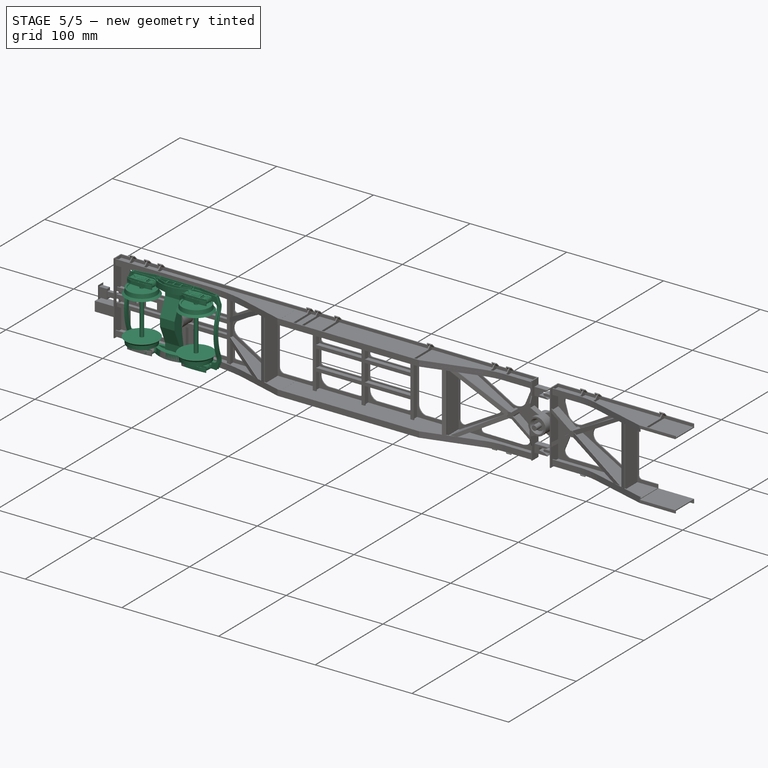
[diagram: stage 5 of 5 — iso view after this stage's code; geometry added in this stage tinted green]
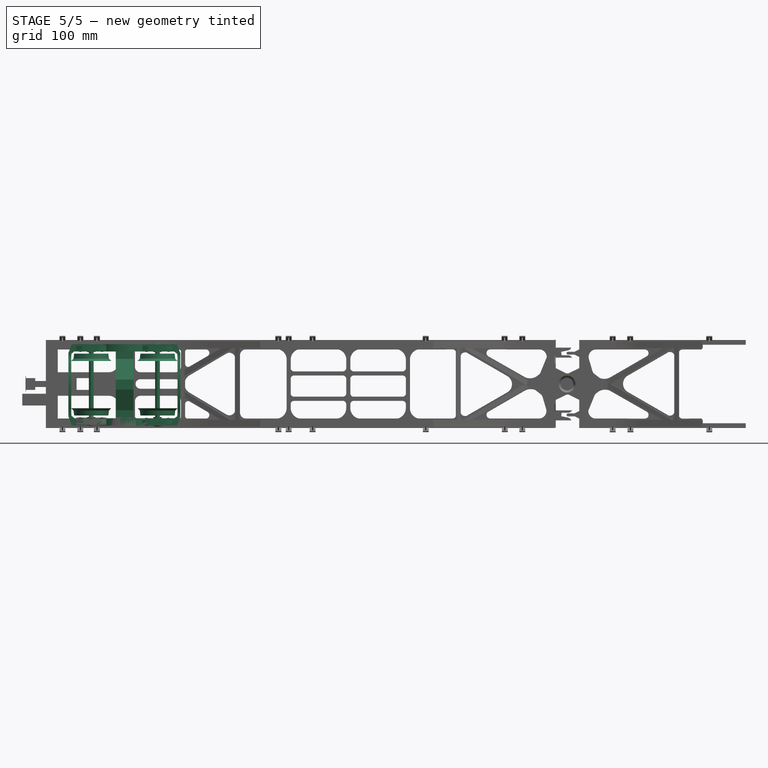
[diagram: stage 5 of 5 — front view after this stage's code; geometry added in this stage tinted green]
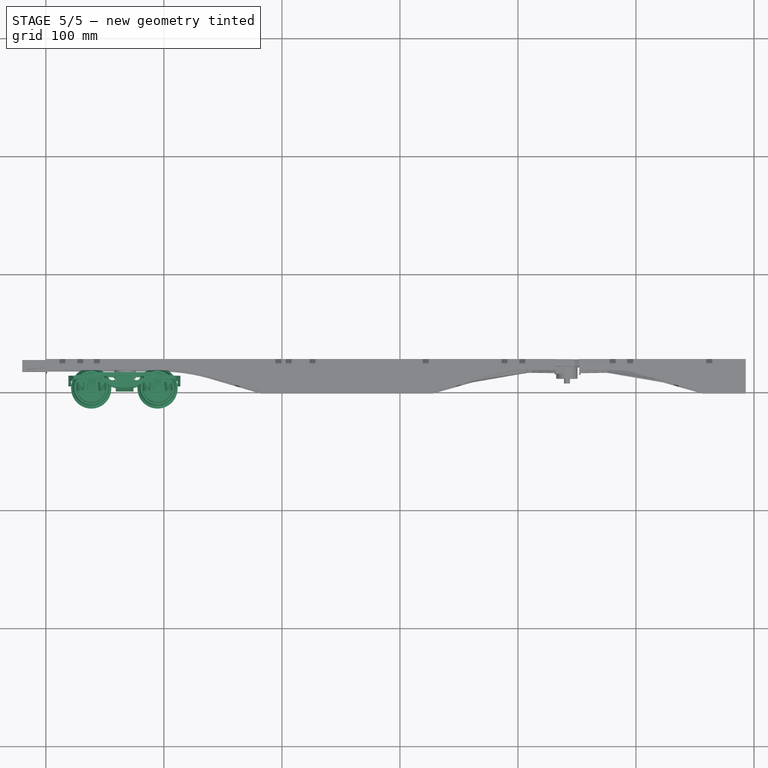
[diagram: stage 5 of 5 — top view after this stage's code; geometry added in this stage tinted green]
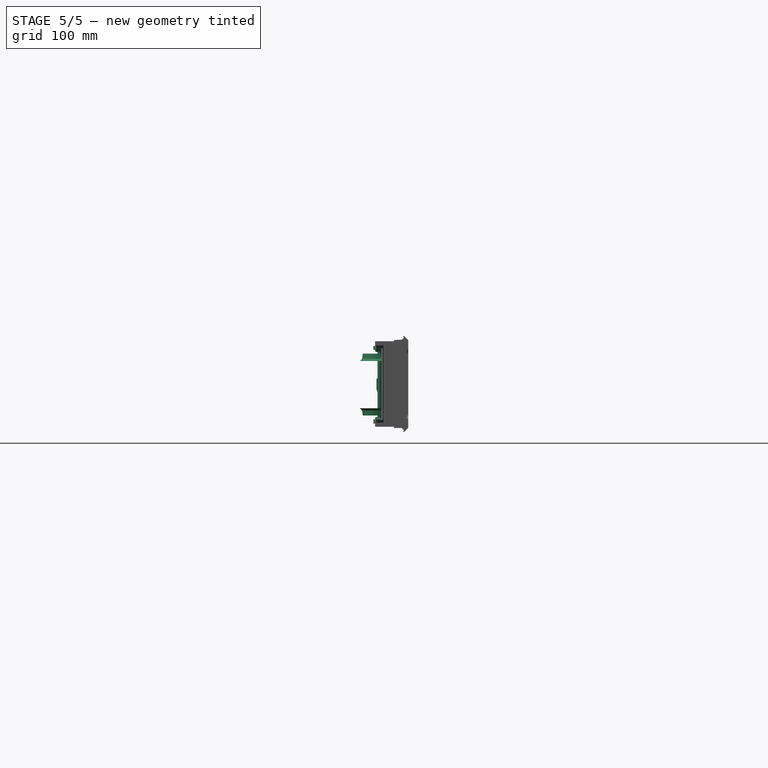
[diagram: stage 5 of 5 — right view after this stage's code; geometry added in this stage tinted green]
FEATURE [Part::Box] Box018  label="Cube190"
  AttacherType = Attacher::AttachEngine3D
  Height = 7
  Length = 7
  Placement = pos=(66.5,-0.5,-9.3) rot=(0,0,1;0rad)
  Width = 0.5
FEATURE [Part::Box] Box019  label="Cube019"
  AttacherType = Attacher::AttachEngine3D
  Height = 1.3
  Length = 0.5
  Placement = pos=(69.75,-64.3,-12.25) rot=(0,0,1;0rad)
  Width = 1
FEATURE [Part::Box] Box020  label="Cube020"
  AttacherType = Attacher::AttachEngine3D
  Height = 1.3
  Length = 0.5
  Placement = pos=(64.75,-64.3,-12.25) rot=(0,0,1;0rad)
  Width = 1
FEATURE [Part::Box] Box021  label="Cube021"
  AttacherType = Attacher::AttachEngine3D
  Height = 1.3
  Length = 0.5
  Placement = pos=(74.75,-64.3,-12.25) rot=(0,0,1;0rad)
  Width = 1
FEATURE [Part::Box] Box227  label="Cube022"
  AttacherType = Attacher::AttachEngine3D
  Height = 1.4
  Length = 0.5
  Placement = pos=(61.75,-64.3,-12.15) rot=(0,0,1;0rad)
  Width = 1
FEATURE [Part::Box] Box023  label="Cube191"
  AttacherType = Attacher::AttachEngine3D
  Height = 1.4
  Length = 0.5
  Placement = pos=(77.65,-64.3,-12.15) rot=(0,0,1;0rad)
  Width = 1
FEATURE [Part::Box] Box024  label="Cube024"
  AttacherType = Attacher::AttachEngine3D
  Height = 1.3
  Length = 0.5
  Placement = pos=(69.75,-64.4,-12.25) rot=(0,0,1;0rad)
  Width = 1
FEATURE [Part::Box] Box228  label="Cube025"
  AttacherType = Attacher::AttachEngine3D
  Height = 1.3
  Length = 0.5
  Placement = pos=(64.75,-64.4,-12.25) rot=(0,0,1;0rad)
  Width = 1
FEATURE [Part::Box] Box229  label="Cube026"
  AttacherType = Attacher::AttachEngine3D
  Height = 1.3
  Length = 0.5
  Placement = pos=(74.75,-64.4,-12.25) rot=(0,0,1;0rad)
  Width = 1
FEATURE [Part::Box] Box027  label="Cube027"
  AttacherType = Attacher::AttachEngine3D
  Height = 1.4
  Length = 0.5
  Placement = pos=(61.75,-64.4,-12.15) rot=(0,0,1;0rad)
  Width = 1
FEATURE [Part::Box] Box028  label="Cube028"
  AttacherType = Attacher::AttachEngine3D
  Height = 1.4
  Length = 0.5
  Placement = pos=(77.65,-64.4,-12.15) rot=(0,0,1;0rad)
  Width = 1
FEATURE [Part::Cylinder] Cylinder093
  Angle = 360
  AttacherType = Attacher::AttachEngine3D
  FirstAngle = 0
  Height = 6
  Placement = pos=(42.4,-33.3,-0.5) rot=(0,0,1;0rad)
  Radius = 2.5
  SecondAngle = 0
FEATURE [Part::Cylinder] Cylinder014
  Angle = 360
  AttacherType = Attacher::AttachEngine3D
  FirstAngle = 0
  Height = 3
  Radius = 3.5
  SecondAngle = 0
FEATURE [Part::Cylinder] Cylinder015
  Angle = 360
  AttacherType = Attacher::AttachEngine3D
  FirstAngle = 0
  Height = 3
  Radius = 1.5
  SecondAngle = 0
FEATURE [Part::Cut] Cut027  label="Kugellager001"
  Base = -> Cylinder014
  Placement = pos=(0,10.5,0) rot=(1,0,0;1.5708rad)
  Tool = -> Cylinder015
FEATURE [Part::Cylinder] Cylinder016
  Angle = 360
  AttacherType = Attacher::AttachEngine3D
  FirstAngle = 0
  Height = 10
  Placement = pos=(0,8,0) rot=(1,0,0;1.5708rad)
  Radius = 2
  SecondAngle = 0
FEATURE [Part::Cylinder] Cylinder017
  Angle = 360
  AttacherType = Attacher::AttachEngine3D
  FirstAngle = 0
  Height = 10
  Placement = pos=(0,8,0) rot=(1,0,0;1.5708rad)
  Radius = 2
  SecondAngle = 0
FEATURE [Part::Cylinder] Cylinder018
  Angle = 360
  AttacherType = Attacher::AttachEngine3D
  FirstAngle = 0
  Height = 3
  Radius = 3.5
  SecondAngle = 0
FEATURE [Part::Cylinder] Cylinder019
  Angle = 360
  AttacherType = Attacher::AttachEngine3D
  FirstAngle = 0
  Height = 3
  Radius = 1.5
  SecondAngle = 0
FEATURE [Part::Cut] Cut030  label="Kugellager002"
  Base = -> Cylinder018
  Placement = pos=(0,-47.5,0) rot=(1,0,0;1.5708rad)
  Tool = -> Cylinder019
FEATURE [Part::Cylinder] Cylinder020
  Angle = 360
  AttacherType = Attacher::AttachEngine3D
  FirstAngle = 0
  Height = 55
  Placement = pos=(0,0,3.75) rot=(0,0,1;0rad)
  Radius = 2
  SecondAngle = 0
FEATURE [Part::Cylinder] Cylinder021
  Angle = 360
  AttacherType = Attacher::AttachEngine3D
  FirstAngle = 0
  Height = 62.5
  Radius = 1.5
  SecondAngle = 0
FEATURE [Part::Cylinder] Cylinder029
  Angle = 360
  AttacherType = Attacher::AttachEngine3D
  FirstAngle = 0
  Height = 3
  Radius = 3.5
  SecondAngle = 0
FEATURE [Part::Cylinder] Cylinder030
  Angle = 360
  AttacherType = Attacher::AttachEngine3D
  FirstAngle = 0
  Height = 3
  Radius = 1.5
  SecondAngle = 0
FEATURE [Part::Cut] Cut031  label="Kugellager003"
  Base = -> Cylinder029
  Placement = pos=(0,10.5,0) rot=(1,0,0;1.5708rad)
  Tool = -> Cylinder030
FEATURE [Part::Cylinder] Cylinder031
  Angle = 360
  AttacherType = Attacher::AttachEngine3D
  FirstAngle = 0
  Height = 10
  Placement = pos=(0,8,0) rot=(1,0,0;1.5708rad)
  Radius = 2
  SecondAngle = 0
FEATURE [Part::Cylinder] Cylinder032
  Angle = 360
  AttacherType = Attacher::AttachEngine3D
  FirstAngle = 0
  Height = 10
  Placement = pos=(0,8,0) rot=(1,0,0;1.5708rad)
  Radius = 2
  SecondAngle = 0
FEATURE [Part::Cylinder] Cylinder033
  Angle = 360
  AttacherType = Attacher::AttachEngine3D
  FirstAngle = 0
  Height = 3
  Radius = 3.5
  SecondAngle = 0
FEATURE [Part::Cylinder] Cylinder034
  Angle = 360
  AttacherType = Attacher::AttachEngine3D
  FirstAngle = 0
  Height = 3
  Radius = 1.5
  SecondAngle = 0
FEATURE [Part::Cut] Cut034  label="Kugellager004"
  Base = -> Cylinder033
  Placement = pos=(0,-47.5,0) rot=(1,0,0;1.5708rad)
  Tool = -> Cylinder034
FEATURE [Part::Cylinder] Cylinder035
  Angle = 360
  AttacherType = Attacher::AttachEngine3D
  FirstAngle = 0
  Height = 55
  Placement = pos=(0,0,3.75) rot=(0,0,1;0rad)
  Radius = 2
  SecondAngle = 0
FEATURE [Part::Cylinder] Cylinder036
  Angle = 360
  AttacherType = Attacher::AttachEngine3D
  FirstAngle = 0
  Height = 62.5
  Radius = 1.5
  SecondAngle = 0
FEATURE [Part::Cylinder] Cylinder042
  Angle = 360
  AttacherType = Attacher::AttachEngine3D
  FirstAngle = 0
  Height = 3
  Placement = pos=(70,-62.3,-7) rot=(-1,0,0;1.5708rad)
  Radius = 3.6
  SecondAngle = 0
FEATURE [Part::Cylinder] Cylinder049
  Angle = 360
  AttacherType = Attacher::AttachEngine3D
  FirstAngle = 0
  Height = 5
  Placement = pos=(70,-64.3,-7) rot=(-1,0,0;1.5708rad)
  Radius = 2
  SecondAngle = 0
FEATURE [Part::Cylinder] Cylinder050
  Angle = 360
  AttacherType = Attacher::AttachEngine3D
  FirstAngle = 0
  Height = 0.3
  Placement = pos=(70,-0.8,-5.7) rot=(1,0,0;1.5708rad)
  Radius = 1.4
  SecondAngle = 0
FEATURE [Part::Cylinder] Cylinder051
  Angle = 360
  AttacherType = Attacher::AttachEngine3D
  FirstAngle = 0
  Height = 0.3
  Placement = pos=(70,-0.5,-5.7) rot=(1,0,0;1.5708rad)
  Radius = 3
  SecondAngle = 0
FEATURE [Part::Cylinder] Cylinder052
  Angle = 360
  AttacherType = Attacher::AttachEngine3D
  FirstAngle = 0
  Height = 0.5
  Placement = pos=(70,0,-5.85) rot=(1,0,0;1.5708rad)
  Radius = 3.8
  SecondAngle = 0
FEATURE [Part::Cylinder] Cylinder056
  Angle = 360
  AttacherType = Attacher::AttachEngine3D
  FirstAngle = 0
  Height = 4
  Placement = pos=(79.3,-62.75,-2.5) rot=(0,1,0;3.14159rad)
  Radius = 3.3
  SecondAngle = 0
FEATURE [Part::Cylinder] Cylinder058
  Angle = 360
  AttacherType = Attacher::AttachEngine3D
  FirstAngle = 0
  Height = 3
  Placement = pos=(79.6864,-62.75,-5.0153) rot=(0,-1,0;3.76991rad)
  Radius = 4.3
  SecondAngle = 0
FEATURE [Part::Cut] Cut045
  Base = -> Cylinder056
  Tool = -> Cylinder058
FEATURE [Part::Cylinder] Cylinder059
  Angle = 360
  AttacherType = Attacher::AttachEngine3D
  FirstAngle = 0
  Height = 4
  Placement = pos=(79.3,-62.75,-2.5) rot=(0,1,0;3.14159rad)
  Radius = 3.3
  SecondAngle = 0
FEATURE [Part::Cylinder] Cylinder060
  Angle = 360
  AttacherType = Attacher::AttachEngine3D
  FirstAngle = 0
  Height = 3
  Placement = pos=(79.6864,-62.75,-5.0153) rot=(0,-1,0;3.76991rad)
  Radius = 4.3
  SecondAngle = 0
FEATURE [Part::Cut] Cut046
  Base = -> Cylinder059
  Placement = pos=(140.1,-125.5,0) rot=(0,0,1;3.14159rad)
  Tool = -> Cylinder060
FEATURE [Part::Cylinder] Cylinder061
  Angle = 360
  AttacherType = Attacher::AttachEngine3D
  FirstAngle = 0
  Height = 7
  Placement = pos=(60.7,-62.75,-10) rot=(0,0,1;0rad)
  Radius = 2.3
  SecondAngle = 0
FEATURE [Part::Cylinder] Cylinder062
  Angle = 360
  AttacherType = Attacher::AttachEngine3D
  FirstAngle = 0
  Height = 7
  Placement = pos=(79.3,-62.75,-10) rot=(0,0,1;0rad)
  Radius = 2.3
  SecondAngle = 0
FEATURE [Part::Cylinder] Cylinder074
  Angle = 360
  AttacherType = Attacher::AttachEngine3D
  FirstAngle = 0
  Height = 3
  Placement = pos=(70,-62.3,-7) rot=(-1,0,0;1.5708rad)
  Radius = 3.6
  SecondAngle = 0
FEATURE [Part::Cylinder] Cylinder075
  Angle = 360
  AttacherType = Attacher::AttachEngine3D
  FirstAngle = 0
  Height = 5
  Placement = pos=(70,-64.3,-7) rot=(-1,0,0;1.5708rad)
  Radius = 2
  SecondAngle = 0
FEATURE [Part::Cylinder] Cylinder105
  Angle = 360
  AttacherType = Attacher::AttachEngine3D
  FirstAngle = 0
  Height = 3
  Placement = pos=(70,-62.3,-7) rot=(-1,0,0;1.5708rad)
  Radius = 3.6
  SecondAngle = 0
FEATURE [Part::Cylinder] Cylinder106
  Angle = 360
  AttacherType = Attacher::AttachEngine3D
  FirstAngle = 0
  Height = 5
  Placement = pos=(70,-64.3,-7) rot=(-1,0,0;1.5708rad)
  Radius = 2
  SecondAngle = 0
FEATURE [Part::MultiFuse] Fusion009  label="Achse002"
  Placement = pos=(0,11.3,0) rot=(1,0,0;1.5708rad)
  Shapes = -> [Cylinder020,Cylinder021]
FEATURE [Part::MultiFuse] Fusion012  label="Achse003"
  Placement = pos=(0,11.3,0) rot=(1,0,0;1.5708rad)
  Shapes = -> [Cylinder035,Cylinder036]
FEATURE [Part::MultiFuse] Fusion020
  Shapes = -> [Cylinder052,Box018,Cylinder051,Cylinder050]
FEATURE [Part::Fillet] Fillet002
  Base = -> Fusion020
  Edges = 4 edges r=1: [Edge8,Edge33,Edge55,Edge58]
FEATURE [Part::Fillet] Fillet003
  Base = -> Fillet002
  Edges = 1 edges r=0.25: [Edge47]
FEATURE [Part::Fillet] Fillet004
  Base = -> Fillet003
  Edges = 1 edges r=0.25: [Edge33]
FEATURE [Part::Fillet] Fillet005  label="Abdeckung"
  Base = -> Fillet004
  Edges = 16 edges r=0.25: [Edge19,Edge21,Edge22,Edge23,Edge24,Edge25,Edge26,Edge27,Edge28,Edge29,Edge30,Edge31,Edge32,Edge33,Edge34,Edge35]
  Placement = pos=(0,-65.7,0) rot=(0,0,1;0rad)
FEATURE [Part::MultiFuse] Fusion028
  Shapes = -> [Box019,Box020,Box021,Box227,Box023]
FEATURE [Part::MultiFuse] Fusion029
  Placement = pos=(0,2.1,0) rot=(0,0,1;0rad)
  Shapes = -> [Box024,Box228,Box229,Box027,Box028]
FEATURE [Part::Fillet] Fillet016  label="Abdeckung002"
  Base = -> Fillet015
  Edges = 16 edges r=0.25: [Edge19,Edge21,Edge22,Edge23,Edge24,Edge25,Edge26,Edge27,Edge28,Edge29,Edge30,Edge31,Edge32,Edge33,Edge34,Edge35]
  Placement = pos=(0,-65.7,0) rot=(0,0,1;0rad)
FEATURE [Part::Fillet] Fillet021
  Base = -> Fusion070
  Edges = 4 edges r=1: [Edge8,Edge33,Edge55,Edge58]
FEATURE [Part::Fillet] Fillet022
  Base = -> Fillet021
  Edges = 1 edges r=0.25: [Edge47]
FEATURE [Part::Fillet] Fillet023
  Base = -> Fillet022
  Edges = 1 edges r=0.25: [Edge33]
FEATURE [Part::Fillet] Fillet024  label="Abdeckung004"
  Base = -> Fillet023
  Edges = 16 edges r=0.25: [Edge19,Edge21,Edge22,Edge23,Edge24,Edge25,Edge26,Edge27,Edge28,Edge29,Edge30,Edge31,Edge32,Edge33,Edge34,Edge35]
  Placement = pos=(0,-65.7,0) rot=(0,0,1;0rad)
FEATURE [Part::Helix] Helix
  Angle = 0
  AttacherType = Attacher::AttachEngine3D
  Height = 6.2
  LocalCoord = 0
  Pitch = 1.2
  Radius = 2.6
  SegmentLength = 0
  Style = 1
FEATURE [Part::Helix] Helix001
  Angle = 0
  AttacherType = Attacher::AttachEngine3D
  Height = 6.2
  LocalCoord = 0
  Pitch = 1.2
  Radius = 2.6
  SegmentLength = 0
  Style = 1
FEATURE [Part::Helix] Helix004 .. Helix009  x6 (patterned run collapsed; names and placements below)
  Angle = 0
  AttacherType = Attacher::AttachEngine3D
  Height = 6.2
  LocalCoord = 0
  Pitch = 1.2
  Radius = 2.6
  SegmentLength = 0
  Style = 1
FEATURE [Sketcher::SketchObject] Sketch060
  FullyConstrained = false
  Placement = pos=(0,0,0) rot=(1,0,0;1.5708rad)
  sketch-geometry (8):
    g0: LineSegment StartX=57.2515 StartY=-10.4088 StartZ=0 EndX=64.9577 EndY=-11.0088 EndZ=0
    g1: LineSegment StartX=64.9577 StartY=-11.0088 StartZ=0 EndX=74.9577 EndY=-11.0088 EndZ=0
    g2: LineSegment StartX=74.9577 StartY=-11.0088 StartZ=0 EndX=82.7636 EndY=-10.4005 EndZ=0
    g3: LineSegment StartX=82.7636 StartY=-10.4005 StartZ=0 EndX=78.2616 EndY=-12.0375 EndZ=0
    g4: LineSegment StartX=78.2616 StartY=-12.0375 StartZ=0 EndX=77.0136 EndY=-12.2588 EndZ=0
    g5: LineSegment StartX=77.0136 StartY=-12.2588 StartZ=0 EndX=63.0015 EndY=-12.2588 EndZ=0
    g6: LineSegment StartX=63.0015 StartY=-12.2588 StartZ=0 EndX=61.6444 EndY=-12.0271 EndZ=0
    g7: LineSegment StartX=61.6444 StartY=-12.0271 StartZ=0 EndX=57.2515 EndY=-10.4088 EndZ=0
  constraints (15):
    c: Coincident(g0,g1)
    c: Horizontal(g1)
    c: Coincident(g1,g2)
    c: Coincident(g2,g3)
    c: Coincident(g3,g4)
    c: Coincident(g4,g5)
    c: Horizontal(g5)
    c: Coincident(g5,g6)
    c: Coincident(g6,g7)
    c: Coincident(g7,g0)
    c: DistanceY(g5,g0) = 1.85
    c: DistanceX(g0,g5) = 5.75
    c: DistanceX(g4,g2) = 5.75
    c: DistanceX(g0,g1) = 10
    c: DistanceY(g0,g0) = 0.6
FEATURE [Part::Extrusion] Extrude032
  Base = -> Sketch060
  Dir = (0,-1,-6e-16)
  DirMode = 2
  FaceMakerClass = Part::FaceMakerBullseye
  LengthFwd = 1
  LengthRev = 0
  Placement = pos=(0,-62.3,0) rot=(0,0,1;0rad)
  Solid = true
  Symmetric = false
FEATURE [Part::Cut] Cut028  label="Rad1"
  Base = -> Revolve005
  Tool = -> Cylinder016
FEATURE [Part::Cut] Cut029  label="Rad002"
  Base = -> Revolve006
  Placement = pos=(0,-40,0) rot=(0,0,1;3.14159rad)
  Tool = -> Cylinder017
FEATURE [Part::MultiFuse] Fusion011  label="Radsatz001"
  Placement = pos=(13.92,-11.75,-7) rot=(0,0,1;0rad)
  Shapes = -> [Cut028,Cut029,Cut030,Cut027,Fusion009]
FEATURE [Part::Cut] Cut032  label="Rad003"
  Base = -> Revolve007
  Tool = -> Cylinder031
FEATURE [Part::Cut] Cut033  label="Rad004"
  Base = -> Revolve008
  Placement = pos=(0,-40,0) rot=(0,0,1;3.14159rad)
  Tool = -> Cylinder032
FEATURE [Part::MultiFuse] Fusion013  label="Radsatz002"
  Placement = pos=(70.08,-11.75,-7) rot=(0,0,1;0rad)
  Shapes = -> [Cut032,Cut033,Cut034,Cut031,Fusion012]
FEATURE [Sketcher::SketchObject] Sketch007
  FullyConstrained = false
  Placement = pos=(0,0,0) rot=(1,0,0;1.5708rad)
  sketch-geometry (10):
    g0: LineSegment StartX=66.0105 StartY=-2 StartZ=0 EndX=74.0105 EndY=-2 EndZ=0
    g1: LineSegment StartX=74.0105 StartY=-2 StartZ=0 EndX=74.0105 EndY=-9.99749 EndZ=0
    g2: LineSegment StartX=74.0105 StartY=-9.99749 StartZ=0 EndX=82.7605 EndY=-9.99749 EndZ=0
    g3: LineSegment StartX=75.1055 StartY=-10.9975 StartZ=0 EndX=65.061 EndY=-10.9975 EndZ=0
    g4: LineSegment StartX=57.2605 StartY=-9.99749 StartZ=0 EndX=66.0105 EndY=-9.99749 EndZ=0
    g5: LineSegment StartX=66.0105 StartY=-9.99749 StartZ=0 EndX=66.0105 EndY=-2 EndZ=0
    g6: LineSegment StartX=57.2605 StartY=-9.99749 StartZ=0 EndX=57.2605 EndY=-10.3975 EndZ=0
    g7: LineSegment StartX=57.2605 StartY=-10.3975 StartZ=0 EndX=65.061 EndY=-10.9975 EndZ=0
    g8: LineSegment StartX=75.1055 StartY=-10.9975 StartZ=0 EndX=82.7605 EndY=-10.3975 EndZ=0
    g9: LineSegment StartX=82.7605 StartY=-10.3975 StartZ=0 EndX=82.7605 EndY=-9.99749 EndZ=0
  constraints (25):
    c: Horizontal(g0)
    c: Coincident(g0,g1)
    c: Vertical(g1)
    c: Coincident(g1,g2)
    c: Horizontal(g2)
    c: Horizontal(g4)
    c: Coincident(g4,g5)
    c: Coincident(g5,g0)
    c: Vertical(g5)
    c: Equal(g5,g1)
    c: DistanceX(g0,g0) = 8
    c: Coincident(g6,g4)
    c: Vertical(g6)
    c: Coincident(g7,g6)
    c: Coincident(g7,g3)
    c: Coincident(g3,g8)
    c: Coincident(g8,g9)
    c: Coincident(g9,g2)
    c: Vertical(g9)
    c: Horizontal(g3)
    c: DistanceX(g1,g2) = 8.75
    c: DistanceX(g4,g4) = 8.75
    c: DistanceY(g3,g4) = 1
    c: DistanceY(g6,g4) = 0.4
    c: DistanceY(g8,g2) = 0.4
FEATURE [Part::Extrusion] Extrude012
  Base = -> Sketch007
  Dir = (0,-1,2e-16)
  DirMode = 2
  FaceMakerClass = Part::FaceMakerBullseye
  LengthFwd = 6
  LengthRev = 0
  Placement = pos=(0,-59.75,0) rot=(0,0,1;0rad)
  Solid = true
  Symmetric = false
FEATURE [Part::Cut] Cut026
  Base = -> Extrude012
  Tool = -> Cylinder042
FEATURE [Part::Cut] Cut052
  Base = -> Cut026
  Tool = -> Cylinder049
FEATURE [Part::Extrusion] Extrude047
  Base = -> Sketch007
  Dir = (0,-1,2e-16)
  DirMode = 2
  FaceMakerClass = Part::FaceMakerBullseye
  LengthFwd = 6
  LengthRev = 0
  Placement = pos=(0,-59.75,0) rot=(0,0,1;0rad)
  Solid = true
  Symmetric = false
FEATURE [Part::Cut] Cut053
  Base = -> Extrude047
  Tool = -> Cylinder074
FEATURE [Part::Cut] Cut056
  Base = -> Cut053
  Tool = -> Cylinder075
FEATURE [Part::Extrusion] Extrude089
  Base = -> Sketch007
  Dir = (0,-1,2e-16)
  DirMode = 2
  FaceMakerClass = Part::FaceMakerBullseye
  LengthFwd = 6
  LengthRev = 0
  Placement = pos=(0,-59.75,0) rot=(0,0,1;0rad)
  Solid = true
  Symmetric = false
FEATURE [Part::Cut] Cut074
  Base = -> Extrude089
  Tool = -> Cylinder105
FEATURE [Part::Cut] Cut077
  Base = -> Cut074
  Tool = -> Cylinder106
FEATURE [Part::Cut] Cut064  label="Quertraeger"
  Base = -> Fusion057
  Placement = pos=(0,1.5,0) rot=(0,0,1;0rad)
  Tool = -> Cylinder093
FEATURE [Sketcher::SketchObject] Sketch021
  FullyConstrained = false
  Placement = pos=(0,0,0) rot=(1,0,0;1.5708rad)
  sketch-geometry (12):
    g0: LineSegment StartX=57.2606 StartY=-10.4072 StartZ=0 EndX=61.6465 EndY=-12.0378 EndZ=0
    g1: LineSegment StartX=61.6465 StartY=-12.0378 StartZ=0 EndX=63.0118 EndY=-12.262 EndZ=0
    g2: LineSegment StartX=63.0118 StartY=-12.262 StartZ=0 EndX=77.0273 EndY=-12.262 EndZ=0
    g3: LineSegment StartX=77.0273 StartY=-12.262 StartZ=0 EndX=78.2617 EndY=-12.0402 EndZ=0
    g4: LineSegment StartX=78.2617 StartY=-12.0402 StartZ=0 EndX=82.7589 EndY=-10.4036 EndZ=0
    g5: LineSegment StartX=82.7589 StartY=-10.4036 StartZ=0 EndX=82.7589 EndY=-10.6273 EndZ=0
    g6: LineSegment StartX=82.7589 StartY=-10.6273 StartZ=0 EndX=78.308 EndY=-12.2832 EndZ=0
    g7: LineSegment StartX=78.308 StartY=-12.2832 StartZ=0 EndX=77.0736 EndY=-12.5397 EndZ=0
    g8: LineSegment StartX=77.0736 StartY=-12.5397 StartZ=0 EndX=63.0128 EndY=-12.5397 EndZ=0
    g9: LineSegment StartX=63.0128 StartY=-12.5397 StartZ=0 EndX=61.5885 EndY=-12.2919 EndZ=0
    g10: LineSegment StartX=61.5885 StartY=-12.2919 StartZ=0 EndX=57.2641 EndY=-10.6567 EndZ=0
    g11: LineSegment StartX=57.2641 StartY=-10.6567 StartZ=0 EndX=57.2606 EndY=-10.4072 EndZ=0
  constraints (14):
    c: Coincident(g0,g1)
    c: Coincident(g1,g2)
    c: Horizontal(g2)
    c: Coincident(g2,g3)
    c: Coincident(g3,g4)
    c: Coincident(g4,g5)
    c: Coincident(g5,g6)
    c: Coincident(g6,g7)
    c: Coincident(g7,g8)
    c: Horizontal(g8)
    c: Coincident(g8,g9)
    c: Coincident(g9,g10)
    c: Coincident(g10,g11)
    c: Coincident(g11,g0)
FEATURE [Part::Extrusion] Extrude033
  Base = -> Sketch021
  Dir = (0,-1,-3e-16)
  DirMode = 2
  FaceMakerClass = Part::FaceMakerBullseye
  LengthFwd = 3
  LengthRev = 0
  Placement = pos=(0,-61.3,0.05) rot=(0,0,1;0rad)
  Solid = true
  Symmetric = false
FEATURE [Part::MultiFuse] Fusion046  label="Kufe"
  Shapes = -> [Extrude033,Fusion028,Extrude032,Fusion029]
FEATURE [Sketcher::SketchObject] Sketch029
  FullyConstrained = false
  Placement = pos=(0,0,0) rot=(1,0,0;1.5708rad)
  sketch-geometry (5):
    g0: LineSegment StartX=64.8097 StartY=-3.13934 StartZ=0 EndX=64.8097 EndY=-7.57236 EndZ=0
    g1: LineSegment StartX=62.9397 StartY=-9.80934 StartZ=0 EndX=66.1397 EndY=-9.80934 EndZ=0
    g2: LineSegment StartX=66.1397 StartY=-9.80934 StartZ=0 EndX=66.1397 EndY=-1.80934 EndZ=0
    g3: ArcOfCircle CenterX=62.5367 CenterY=-7.57236 CenterZ=0 NormalX=0 NormalY=0 NormalZ=1 AngleXU=0 Radius=2.27299 StartAngle=4.89063 EndAngle=6.28319
    g4: ArcOfCircle CenterX=66.1411 CenterY=-3.14078 CenterZ=0 NormalX=0 NormalY=0 NormalZ=1 AngleXU=0 Radius=1.33143 StartAngle=1.57187 EndAngle=3.14052
  constraints (13):
    c: Vertical(g0)
    c: Horizontal(g1)
    c: Coincident(g1,g2)
    c: Vertical(g2)
    c: DistanceY(g1,g2) = 8
    c: DistanceX(g0,g2) = 1.33
    c: DistanceX(g1,g1) = 3.2
    c: Coincident(g3,g0)
    c: Coincident(g3,g1)
    c: Horizontal(g3,g0)
    c: DistanceY(g0,g2) = 1.33
    c: Coincident(g4,g2)
    c: Coincident(g4,g0)
FEATURE [Part::Extrusion] Extrude043
  Base = -> Sketch029
  Dir = (0,-1,-3e-16)
  DirMode = 2
  FaceMakerClass = Part::FaceMakerBullseye
  LengthFwd = 1
  LengthRev = 0
  Placement = pos=(-0.13,-59.75,-0.19) rot=(0,0,1;0rad)
  Solid = true
  Symmetric = false
FEATURE [Part::Extrusion] Extrude044
  Base = -> Sketch029
  Dir = (0,-1,-3e-16)
  DirMode = 2
  FaceMakerClass = Part::FaceMakerBullseye
  LengthFwd = 1
  LengthRev = 0
  Placement = pos=(-0.13,-64.75,-0.19) rot=(0,0,1;0rad)
  Solid = true
  Symmetric = false
FEATURE [Part::Extrusion] Extrude045
  Base = -> Sketch029
  Dir = (0,-1,-3e-16)
  DirMode = 2
  FaceMakerClass = Part::FaceMakerBullseye
  LengthFwd = 1
  LengthRev = 0
  Placement = pos=(140.14,-60.75,-0.19) rot=(0,0,1;3.14159rad)
  Solid = true
  Symmetric = false
FEATURE [Part::Extrusion] Extrude046
  Base = -> Sketch029
  Dir = (0,-1,-3e-16)
  DirMode = 2
  FaceMakerClass = Part::FaceMakerBullseye
  LengthFwd = 1
  LengthRev = 0
  Placement = pos=(140.14,-65.75,-0.19) rot=(0,0,1;3.14159rad)
  Solid = true
  Symmetric = false
FEATURE [Part::Extrusion] Extrude050
  Base = -> Sketch029
  Dir = (0,-1,-3e-16)
  DirMode = 2
  FaceMakerClass = Part::FaceMakerBullseye
  LengthFwd = 1
  LengthRev = 0
  Placement = pos=(-0.13,-59.75,-0.19) rot=(0,0,1;0rad)
  Solid = true
  Symmetric = false
FEATURE [Part::Extrusion] Extrude051
  Base = -> Sketch029
  Dir = (0,-1,-3e-16)
  DirMode = 2
  FaceMakerClass = Part::FaceMakerBullseye
  LengthFwd = 1
  LengthRev = 0
  Placement = pos=(-0.13,-64.75,-0.19) rot=(0,0,1;0rad)
  Solid = true
  Symmetric = false
FEATURE [Part::Extrusion] Extrude052
  Base = -> Sketch029
  Dir = (0,-1,-3e-16)
  DirMode = 2
  FaceMakerClass = Part::FaceMakerBullseye
  LengthFwd = 1
  LengthRev = 0
  Placement = pos=(140.14,-60.75,-0.19) rot=(0,0,1;3.14159rad)
  Solid = true
  Symmetric = false
FEATURE [Part::Extrusion] Extrude053
  Base = -> Sketch029
  Dir = (0,-1,-3e-16)
  DirMode = 2
  FaceMakerClass = Part::FaceMakerBullseye
  LengthFwd = 1
  LengthRev = 0
  Placement = pos=(140.14,-65.75,-0.19) rot=(0,0,1;3.14159rad)
  Solid = true
  Symmetric = false
FEATURE [Part::Extrusion] Extrude092
  Base = -> Sketch029
  Dir = (0,-1,-3e-16)
  DirMode = 2
  FaceMakerClass = Part::FaceMakerBullseye
  LengthFwd = 1
  LengthRev = 0
  Placement = pos=(-0.13,-59.75,-0.19) rot=(0,0,1;0rad)
  Solid = true
  Symmetric = false
FEATURE [Part::Extrusion] Extrude093
  Base = -> Sketch029
  Dir = (0,-1,-3e-16)
  DirMode = 2
  FaceMakerClass = Part::FaceMakerBullseye
  LengthFwd = 1
  LengthRev = 0
  Placement = pos=(-0.13,-64.75,-0.19) rot=(0,0,1;0rad)
  Solid = true
  Symmetric = false
FEATURE [Part::Extrusion] Extrude181
  Base = -> Sketch029
  Dir = (0,-1,-3e-16)
  DirMode = 2
  FaceMakerClass = Part::FaceMakerBullseye
  LengthFwd = 1
  LengthRev = 0
  Placement = pos=(140.14,-60.75,-0.19) rot=(0,0,1;3.14159rad)
  Solid = true
  Symmetric = false
FEATURE [Part::Extrusion] Extrude182
  Base = -> Sketch029
  Dir = (0,-1,-3e-16)
  DirMode = 2
  FaceMakerClass = Part::FaceMakerBullseye
  LengthFwd = 1
  LengthRev = 0
  Placement = pos=(140.14,-65.75,-0.19) rot=(0,0,1;3.14159rad)
  Solid = true
  Symmetric = false
FEATURE [Sketcher::SketchObject] Sketch030
  FullyConstrained = true
  Placement = pos=(0,0,0) rot=(1,0,0;1.5708rad)
  sketch-geometry (1):
    g0: Circle CenterX=2.6 CenterY=0 CenterZ=0 NormalX=0 NormalY=0 NormalZ=1 AngleXU=0 Radius=0.5
  constraints (3):
    c: PointOnObject(g0,g-1)
    c: DistanceX(g-1,g0) = 2.6
    c: Radius(g0) = 0.5
FEATURE [Sketcher::SketchObject] Sketch033
  FullyConstrained = false
  Placement = pos=(0,0,0) rot=(0.57735,0.57735,0.57735;2.0944rad)
  sketch-geometry (12):
    g0: ArcOfCircle CenterX=-31.699 CenterY=52.0031 CenterZ=0 NormalX=0 NormalY=0 NormalZ=1 AngleXU=0 Radius=57.5 StartAngle=4.34212 EndAngle=5.08585
    g1: LineSegment StartX=-5.32403 StartY=-0.496866 StartZ=0 EndX=2.67597 EndY=-0.496866 EndZ=0
    g2: LineSegment StartX=2.67597 StartY=-0.496866 StartZ=0 EndX=2.67597 EndY=3.00313 EndZ=0
    g3: LineSegment StartX=2.67597 StartY=3.00313 StartZ=0 EndX=-5.32403 EndY=3.00313 EndZ=0
    g4: LineSegment StartX=-58.074 StartY=-0.496866 StartZ=0 EndX=-66.074 EndY=-0.496866 EndZ=0
    g5: LineSegment StartX=-66.074 StartY=-0.496866 StartZ=0 EndX=-66.074 EndY=3.00313 EndZ=0
    g6: LineSegment StartX=-66.074 StartY=3.00313 StartZ=0 EndX=-58.074 EndY=3.00313 EndZ=0
    g7: ArcOfCircle CenterX=-31.699 CenterY=52.0031 CenterZ=0 NormalX=0 NormalY=0 NormalZ=1 AngleXU=0 Radius=54 StartAngle=4.3252 EndAngle=5.08837
    g8: ArcOfCircle CenterX=-58.4166 CenterY=-16.8268 CenterZ=0 NormalX=0 NormalY=0 NormalZ=1 AngleXU=0 Radius=16.3335 StartAngle=1.20053 EndAngle=1.54982
    g9: ArcOfCircle CenterX=-5.00787 CenterY=-16.7101 CenterZ=0 NormalX=0 NormalY=0 NormalZ=1 AngleXU=0 Radius=16.2163 StartAngle=1.59029 EndAngle=1.93083
    g10: ArcOfCircle CenterX=-58.3015 CenterY=-16.7214 CenterZ=0 NormalX=0 NormalY=0 NormalZ=1 AngleXU=0 Radius=19.7258 StartAngle=1.25038 EndAngle=1.55926
    g11: ArcOfCircle CenterX=-5.02273 CenterY=-16.67 CenterZ=0 NormalX=0 NormalY=0 NormalZ=1 AngleXU=0 Radius=19.6754 StartAngle=1.58611 EndAngle=1.92629
  constraints (31):
    c: Coincident(g1,g2)
    c: Vertical(g2)
    c: Coincident(g2,g3)
    c: Horizontal(g3)
    c: Coincident(g4,g5)
    c: Vertical(g5)
    c: Coincident(g5,g6)
    c: Horizontal(g6)
    c: Horizontal(g4)
    c: Horizontal(g1)
    c: DistanceX(g5,g2) = 68.75
    c: DistanceX(g5,g6) = 8
    c: DistanceX(g3,g2) = 8
    c: Radius(g0) = 57.5
    c: DistanceY(g4,g5) = 3.5
    c: DistanceY(g1,g2) = 3.5
    c: DistanceX(g0,g2) = 34.375
    c: Coincident(g7,g0)
    c: Radius(g7) = 54
    c: Equal(g3,g1)
    c: Equal(g6,g4)
    c: Horizontal(g5,g2)
    c: Coincident(g8,g4)
    c: DistanceY(g5,g0) = 49
    c: Tangent(g8,g0) = 1.5708
    c: Coincident(g9,g0)
    c: Coincident(g9,g1)
    c: Coincident(g10,g6)
    c: Coincident(g10,g7)
    c: Coincident(g11,g7)
    c: Coincident(g11,g3)
FEATURE [Part::Extrusion] Extrude057
  Base = -> Sketch033
  Dir = (1,0,0)
  DirMode = 2
  FaceMakerClass = Part::FaceMakerBullseye
  LengthFwd = 5
  LengthRev = 0
  Placement = pos=(-5.5,0.1,0.15) rot=(0,0,1;0rad)
  Solid = true
  Symmetric = false
FEATURE [Part::Extrusion] Extrude075
  Base = -> Sketch033
  Dir = (1,0,0)
  DirMode = 2
  FaceMakerClass = Part::FaceMakerBullseye
  LengthFwd = 5
  LengthRev = 0
  Placement = pos=(-5.5,0.1,0.15) rot=(0,0,1;0rad)
  Solid = true
  Symmetric = false
FEATURE [Sketcher::SketchObject] Sketch036
  FullyConstrained = false
  sketch-geometry (6):
    g0: LineSegment StartX=-0.489114 StartY=-59.7656 StartZ=0 EndX=-2.78506 EndY=-58.0656 EndZ=0
    g1: LineSegment StartX=-2.78506 StartY=-58.0656 StartZ=0 EndX=-2.98911 EndY=-56.0069 EndZ=0
    g2: LineSegment StartX=-2.98911 StartY=-56.0069 StartZ=0 EndX=-2.98911 EndY=-7.60614 EndZ=0
    g3: LineSegment StartX=-2.98911 StartY=-7.60614 StartZ=0 EndX=-2.77235 EndY=-5.21561 EndZ=0
    g4: LineSegment StartX=-2.77235 StartY=-5.21561 StartZ=0 EndX=-0.489114 EndY=-3.51561 EndZ=0
    g5: LineSegment StartX=-0.489114 StartY=-3.51561 StartZ=0 EndX=-0.489114 EndY=-59.7656 EndZ=0
  constraints (12):
    c: Coincident(g0,g1)
    c: Coincident(g1,g2)
    c: Vertical(g2)
    c: Coincident(g2,g3)
    c: Coincident(g3,g4)
    c: Coincident(g4,g5)
    c: Coincident(g5,g0)
    c: Vertical(g5)
    c: DistanceY(g0,g4) = 56.25
    c: DistanceY(g0,g0) = 1.7
    c: DistanceY(g3,g4) = 1.7
    c: DistanceX(g1,g0) = 2.5
FEATURE [Part::Extrusion] Extrude060
  Base = -> Sketch036
  Dir = (0,0,1)
  DirMode = 2
  FaceMakerClass = Part::FaceMakerBullseye
  LengthFwd = 10
  LengthRev = 0
  Placement = pos=(0,0,-6) rot=(0,0,1;0rad)
  Solid = true
  Symmetric = false
FEATURE [Part::Cut] Cut060
  Base = -> Extrude057
  Tool = -> Extrude060
FEATURE [Part::Extrusion] Extrude076
  Base = -> Sketch036
  Dir = (0,0,1)
  DirMode = 2
  FaceMakerClass = Part::FaceMakerBullseye
  LengthFwd = 10
  LengthRev = 0
  Placement = pos=(0,0,-6) rot=(0,0,1;0rad)
  Solid = true
  Symmetric = false
FEATURE [Part::Cut] Cut066
  Base = -> Extrude075
  Tool = -> Extrude076
FEATURE [Sketcher::SketchObject] Sketch038
  FullyConstrained = false
  Placement = pos=(0,0,0) rot=(0.57735,0.57735,0.57735;2.0944rad)
  sketch-geometry (12):
    g0: ArcOfCircle CenterX=-31.615 CenterY=51.4197 CenterZ=0 NormalX=0 NormalY=0 NormalZ=1 AngleXU=0 Radius=56 StartAngle=4.33963 EndAngle=5.08903
    g1: LineSegment StartX=-5.24003 StartY=0.419738 StartZ=0 EndX=2.75997 EndY=0.419738 EndZ=0
    g2: LineSegment StartX=2.75997 StartY=0.419738 StartZ=0 EndX=2.75997 EndY=2.41974 EndZ=0
    g3: LineSegment StartX=2.75997 StartY=2.41974 StartZ=0 EndX=-5.24003 EndY=2.41974 EndZ=0
    g4: LineSegment StartX=-57.99 StartY=0.419738 StartZ=0 EndX=-65.99 EndY=0.419738 EndZ=0
    g5: LineSegment StartX=-65.99 StartY=0.419738 StartZ=0 EndX=-65.99 EndY=2.41974 EndZ=0
    g6: LineSegment StartX=-65.99 StartY=2.41974 StartZ=0 EndX=-57.99 EndY=2.41974 EndZ=0
    g7: ArcOfCircle CenterX=-31.615 CenterY=51.4197 CenterZ=0 NormalX=0 NormalY=0 NormalZ=1 AngleXU=0 Radius=54 StartAngle=4.32784 EndAngle=5.0807
    g8: ArcOfCircle CenterX=-58.1341 CenterY=-16.3976 CenterZ=0 NormalX=0 NormalY=0 NormalZ=1 AngleXU=0 Radius=16.818 StartAngle=1.19804 EndAngle=1.56223
    g9: ArcOfCircle CenterX=-5.21037 CenterY=-15.8108 CenterZ=0 NormalX=0 NormalY=0 NormalZ=1 AngleXU=0 Radius=16.2306 StartAngle=1.57262 EndAngle=1.93676
    g10: ArcOfCircle CenterX=-58.0701 CenterY=-16.2866 CenterZ=0 NormalX=0 NormalY=0 NormalZ=1 AngleXU=0 Radius=18.7065 StartAngle=1.23311 EndAngle=1.56652
    g11: ArcOfCircle CenterX=-5.1284 CenterY=-16.2634 CenterZ=0 NormalX=0 NormalY=0 NormalZ=1 AngleXU=0 Radius=18.6834 StartAngle=1.57677 EndAngle=1.9574
  constraints (31):
    c: Coincident(g1,g2)
    c: Vertical(g2)
    c: Coincident(g2,g3)
    c: Horizontal(g3)
    c: Coincident(g4,g5)
    c: Vertical(g5)
    c: Coincident(g5,g6)
    c: Horizontal(g6)
    c: Horizontal(g4)
    c: Horizontal(g1)
    c: DistanceX(g5,g2) = 68.75
    c: DistanceX(g5,g6) = 8
    c: DistanceX(g3,g2) = 8
    c: DistanceY(g4,g5) = 2
    c: DistanceX(g0,g2) = 34.375
    c: Coincident(g7,g0)
    c: Radius(g7) = 54
    c: Equal(g3,g1)
    c: Equal(g6,g4)
    c: Horizontal(g5,g2)
    c: Coincident(g8,g4)
    c: DistanceY(g5,g0) = 49
    c: Tangent(g8,g0) = 1.5708
    c: Coincident(g9,g0)
    c: Coincident(g9,g1)
    c: Coincident(g10,g6)
    c: Coincident(g10,g7)
    c: Coincident(g11,g7)
    c: Coincident(g11,g3)
    c: Radius(g0) = 56
    c: DistanceY(g1,g2) = 2
FEATURE [Part::Extrusion] Extrude063
  Base = -> Sketch038
  Dir = (1,0,0)
  DirMode = 2
  FaceMakerClass = Part::FaceMakerBullseye
  LengthFwd = 3
  LengthRev = 0
  Placement = pos=(-7,0,0) rot=(0,0,1;0rad)
  Solid = true
  Symmetric = false
FEATURE [Part::Cut] Cut061
  Base = -> Cut060
  Tool = -> Extrude063
FEATURE [Part::Cut] Cut062
  Base = -> Cut061
  Tool = -> Fusion055
FEATURE [Part::Cut] Cut063  label="Endverbindung"
  Base = -> Cut062
  Placement = pos=(0,0,-0.15) rot=(0,0,1;0rad)
  Tool = -> Fusion056
FEATURE [Sketcher::SketchObject] Sketch041
  FullyConstrained = false
  Placement = pos=(0,0,0) rot=(0.57735,0.57735,0.57735;2.0944rad)
  sketch-geometry (12):
    g0: ArcOfCircle CenterX=-31.615 CenterY=51.4197 CenterZ=0 NormalX=0 NormalY=0 NormalZ=1 AngleXU=0 Radius=56 StartAngle=4.33963 EndAngle=5.08903
    g1: LineSegment StartX=-5.24003 StartY=0.419738 StartZ=0 EndX=2.75997 EndY=0.419738 EndZ=0
    g2: LineSegment StartX=2.75997 StartY=0.419738 StartZ=0 EndX=2.75997 EndY=2.41974 EndZ=0
    g3: LineSegment StartX=2.75997 StartY=2.41974 StartZ=0 EndX=-5.24003 EndY=2.41974 EndZ=0
    g4: LineSegment StartX=-57.99 StartY=0.419738 StartZ=0 EndX=-65.99 EndY=0.419738 EndZ=0
    g5: LineSegment StartX=-65.99 StartY=0.419738 StartZ=0 EndX=-65.99 EndY=2.41974 EndZ=0
    g6: LineSegment StartX=-65.99 StartY=2.41974 StartZ=0 EndX=-57.99 EndY=2.41974 EndZ=0
    g7: ArcOfCircle CenterX=-31.615 CenterY=51.4197 CenterZ=0 NormalX=0 NormalY=0 NormalZ=1 AngleXU=0 Radius=54 StartAngle=4.32784 EndAngle=5.0807
    g8: ArcOfCircle CenterX=-58.1341 CenterY=-16.3976 CenterZ=0 NormalX=0 NormalY=0 NormalZ=1 AngleXU=0 Radius=16.818 StartAngle=1.19804 EndAngle=1.56223
    g9: ArcOfCircle CenterX=-5.21037 CenterY=-15.8108 CenterZ=0 NormalX=0 NormalY=0 NormalZ=1 AngleXU=0 Radius=16.2306 StartAngle=1.57262 EndAngle=1.93676
    g10: ArcOfCircle CenterX=-58.0701 CenterY=-16.2866 CenterZ=0 NormalX=0 NormalY=0 NormalZ=1 AngleXU=0 Radius=18.7065 StartAngle=1.23311 EndAngle=1.56652
    g11: ArcOfCircle CenterX=-5.1284 CenterY=-16.2634 CenterZ=0 NormalX=0 NormalY=0 NormalZ=1 AngleXU=0 Radius=18.6834 StartAngle=1.57677 EndAngle=1.9574
  constraints (31):
    c: Coincident(g1,g2)
    c: Vertical(g2)
    c: Coincident(g2,g3)
    c: Horizontal(g3)
    c: Coincident(g4,g5)
    c: Vertical(g5)
    c: Coincident(g5,g6)
    c: Horizontal(g6)
    c: Horizontal(g4)
    c: Horizontal(g1)
    c: DistanceX(g5,g2) = 68.75
    c: DistanceX(g5,g6) = 8
    c: DistanceX(g3,g2) = 8
    c: DistanceY(g4,g5) = 2
    c: DistanceX(g0,g2) = 34.375
    c: Coincident(g7,g0)
    c: Radius(g7) = 54
    c: Equal(g3,g1)
    c: Equal(g6,g4)
    c: Horizontal(g5,g2)
    c: Coincident(g8,g4)
    c: DistanceY(g5,g0) = 49
    c: Tangent(g8,g0) = 1.5708
    c: Coincident(g9,g0)
    c: Coincident(g9,g1)
    c: Coincident(g10,g6)
    c: Coincident(g10,g7)
    c: Coincident(g11,g7)
    c: Coincident(g11,g3)
    c: Radius(g0) = 56
    c: DistanceY(g1,g2) = 2
FEATURE [Part::Extrusion] Extrude078
  Base = -> Sketch041
  Dir = (1,0,0)
  DirMode = 2
  FaceMakerClass = Part::FaceMakerBullseye
  LengthFwd = 3
  LengthRev = 0
  Placement = pos=(-7,0,0) rot=(0,0,1;0rad)
  Solid = true
  Symmetric = false
FEATURE [Part::Cut] Cut067
  Base = -> Cut066
  Tool = -> Extrude078
FEATURE [Part::Cut] Cut068
  Base = -> Cut067
  Tool = -> Fusion061
FEATURE [Part::Cut] Cut069  label="Endverbindung001"
  Base = -> Cut068
  Placement = pos=(84,-63,-0.15) rot=(0,0,1;3.14159rad)
  Tool = -> Fusion062
FEATURE [Part::MultiFuse] Fusion031
  Shapes = -> [Cut046,Sweep,Cylinder061]
FEATURE [Part::MultiFuse] Fusion032
  Shapes = -> [Sweep001,Cylinder062,Cut045]
FEATURE [Part::MultiFuse] Fusion047  label="Radtraeger002"
  Placement = pos=(0.12,0,0) rot=(0,0,1;0rad)
  Shapes = -> [Cut052,Extrude044,Extrude043,Extrude045,Extrude046,Fusion046,Fillet005,Fusion031,Fusion032]
FEATURE [Part::MultiFuse] Fusion054  label="Radtraeger001"
  Placement = pos=(-56.12,0,0) rot=(0,0,1;0rad)
  Shapes = -> [Cut056,Extrude051,Extrude050,Extrude052,Extrude053,Fusion053,Fillet016,Fusion051,Fusion052]
FEATURE [Part::MultiFuse] Fusion076  label="Radtraeger004"
  Placement = pos=(140,-63,0) rot=(0,0,1;3.14159rad)
  Shapes = -> [Cut077,Extrude093,Extrude092,Extrude181,Extrude182,Fusion075,Fillet024,Fusion073,Fusion074]
FEATURE [Part::MultiFuse] Fusion077  label="V25"
  Placement = pos=(24.5,10,1) rot=(-1,0,0;1.5708rad)
  Shapes = -> [Fusion058,Fusion060,Cut064,Cut069,Cut063,Fusion069,Fusion076,Fusion047,Fusion054,Fusion013,Fusion011]
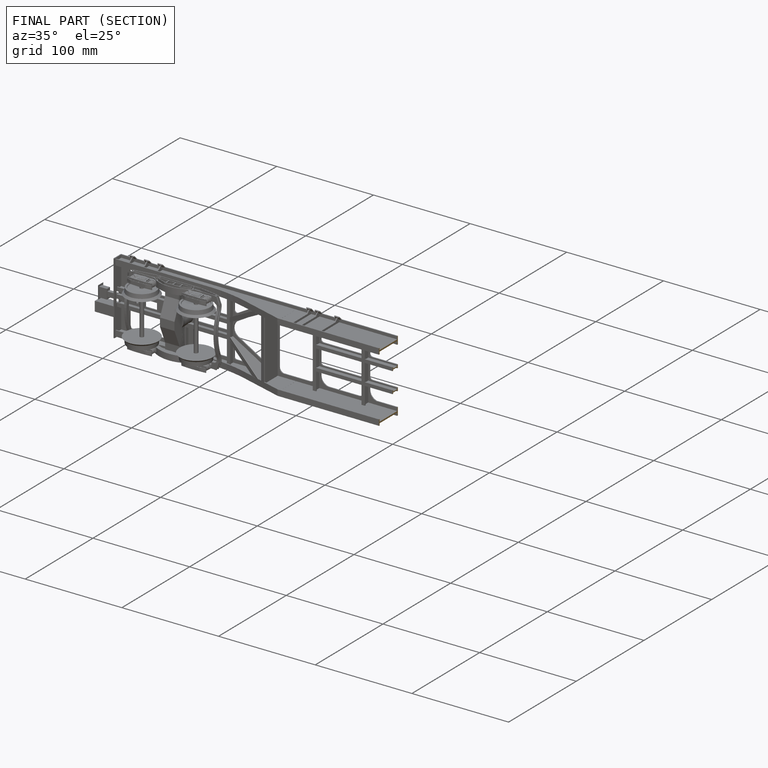
[diagram: finished part — half-section view (interior)]
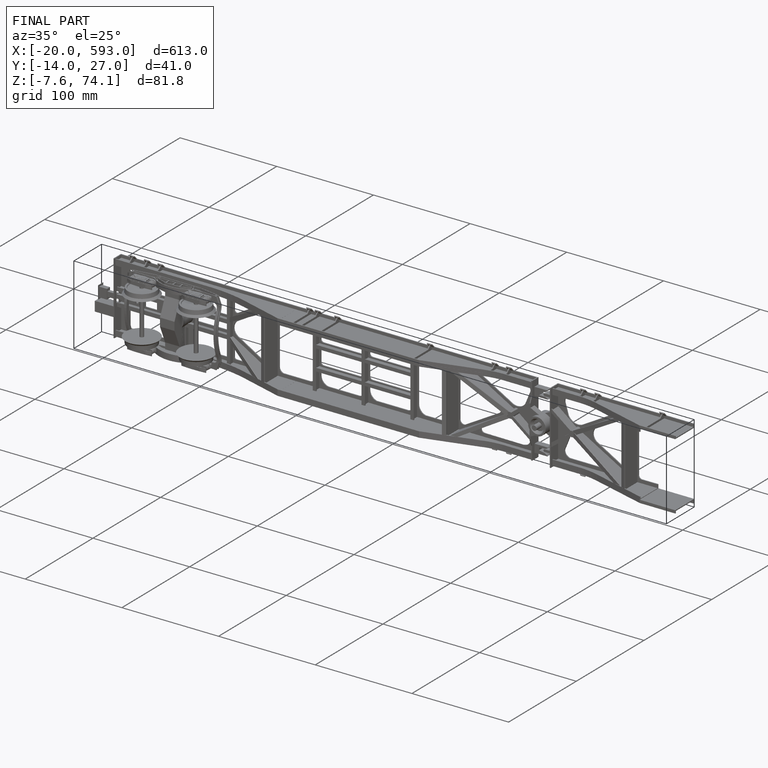
[diagram: finished part — iso view with bounding-box wireframe]
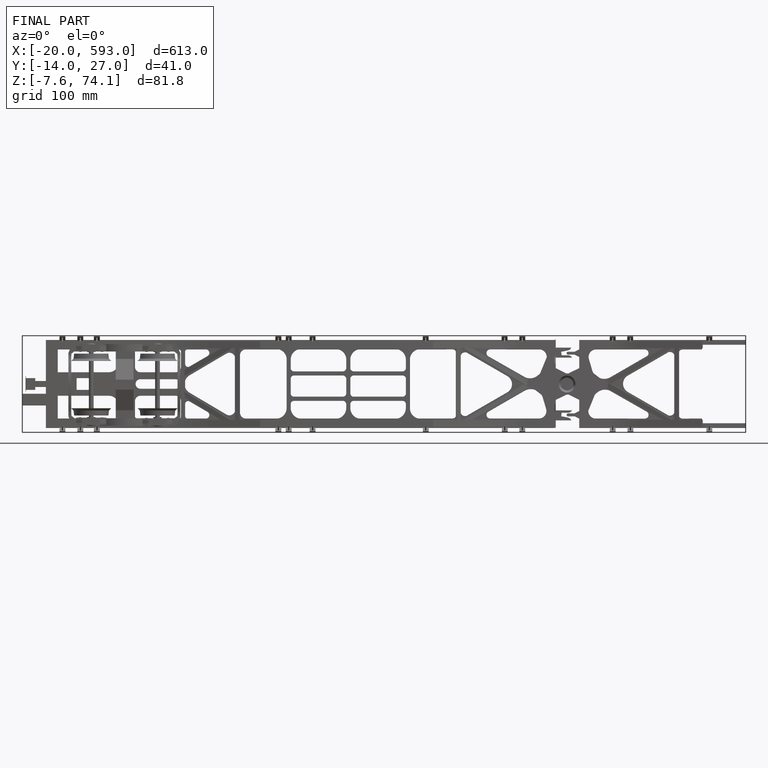
[diagram: finished part — front view with bounding-box wireframe]
